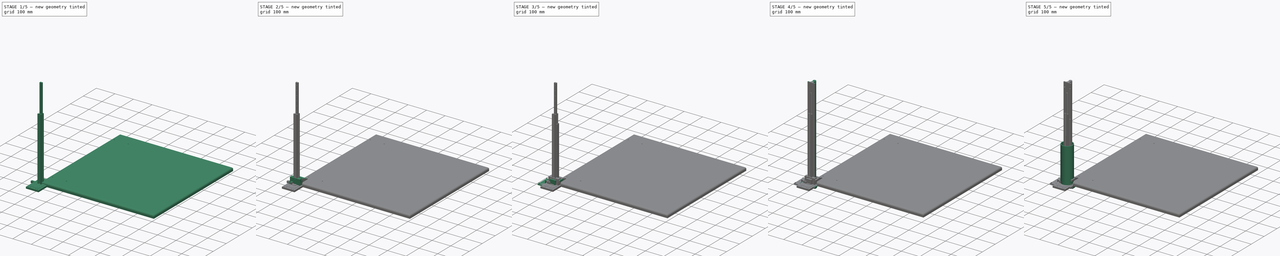
[diagram: build sequence overview — one tinted view per stage of 5, left to right]
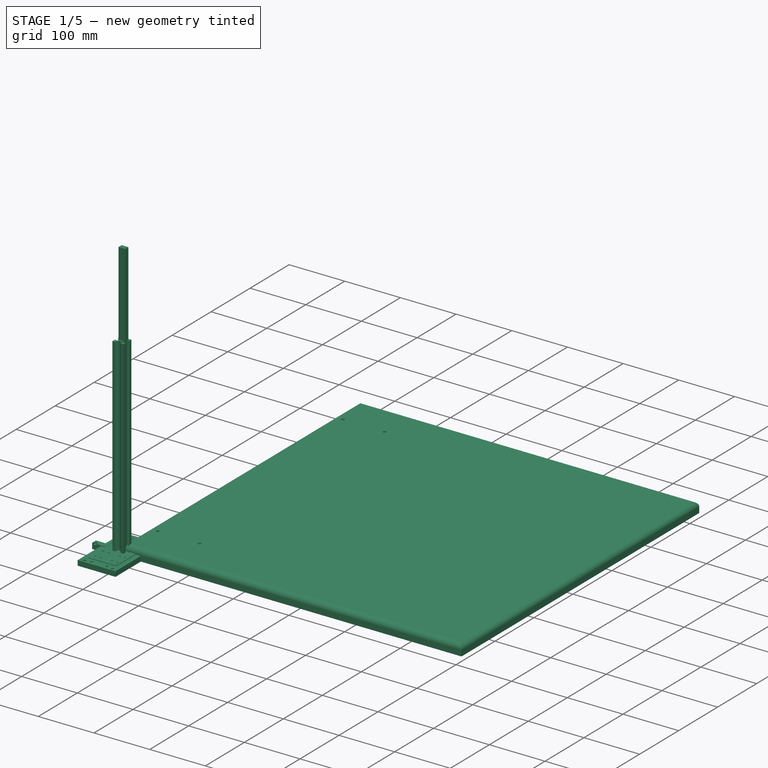
[diagram: stage 1 of 5 — iso view after this stage's code; geometry added in this stage tinted green]
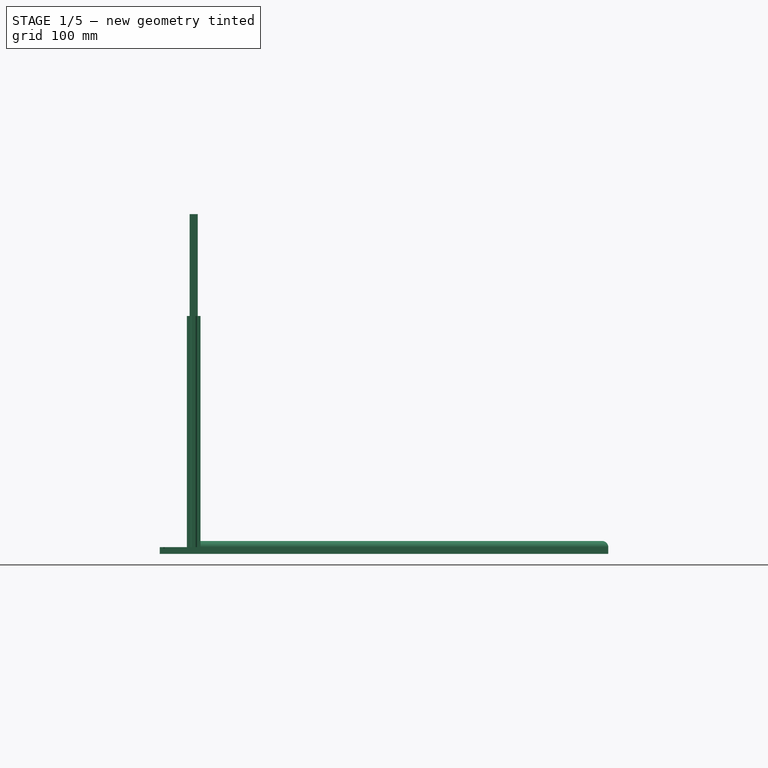
[diagram: stage 1 of 5 — front view after this stage's code; geometry added in this stage tinted green]
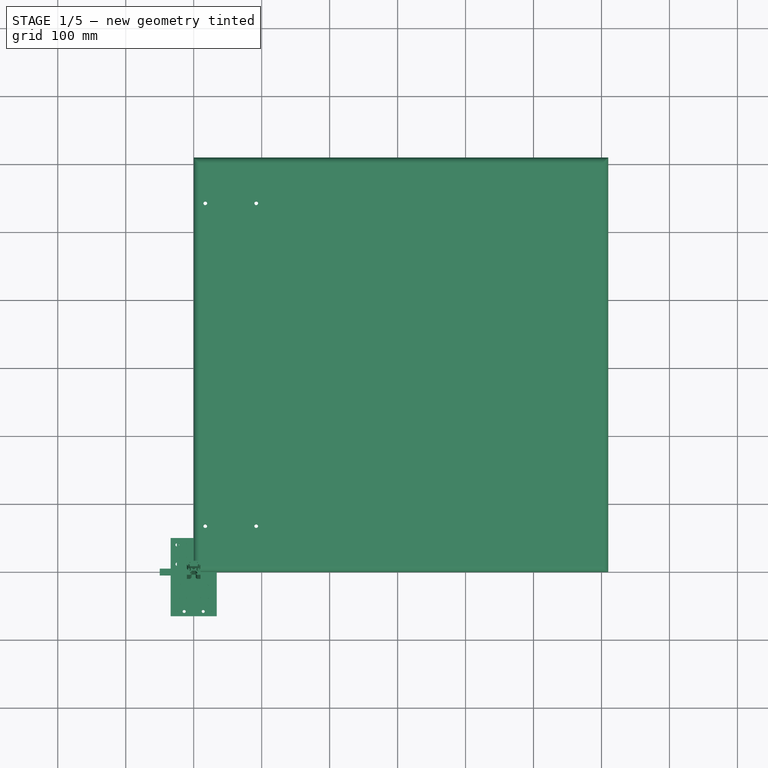
[diagram: stage 1 of 5 — top view after this stage's code; geometry added in this stage tinted green]
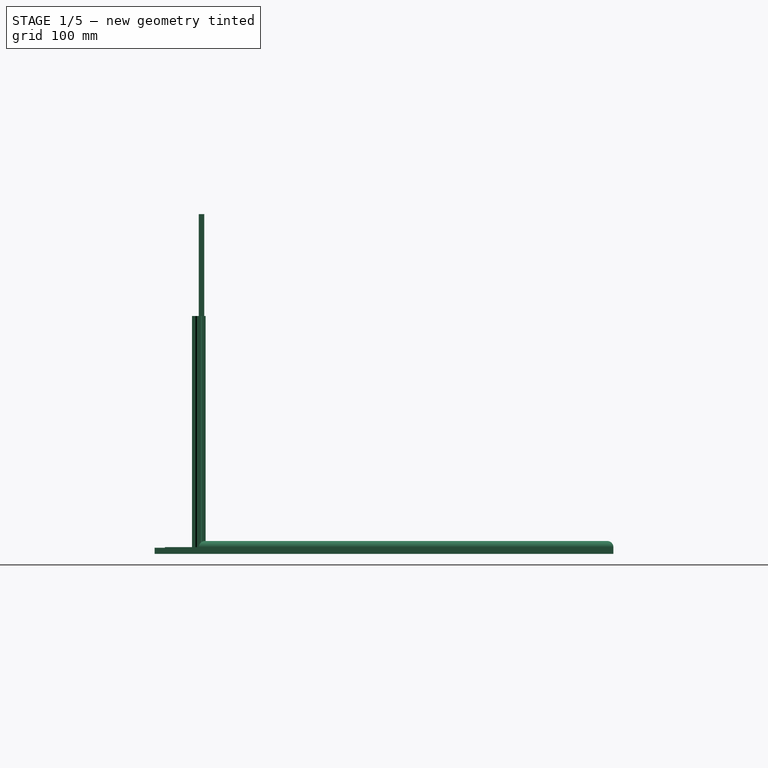
[diagram: stage 1 of 5 — right view after this stage's code; geometry added in this stage tinted green]
FCSTD DOCUMENT  (FreeCAD 0.19R24366 (Git))
Label: MUSCLE_ROLLER_1V0
License: All rights reserved
LicenseURL: http://en.wikipedia.org/wiki/All_rights_reserved
objects: PartDesign::CoordinateSystem×81, Sketcher::SketchObject×79, App::Link×68, PartDesign::Pad×43, App::Part×40, PartDesign::Body×39, PartDesign::Pocket×32, TechDraw::DrawViewDimension×12, PartDesign::Hole×4, TechDraw::DrawProjGroupItem×4, App::DocumentObjectGroup×2, PartDesign::LinearPattern×2, PartDesign::Fillet×2, TechDraw::DrawSVGTemplate×2, TechDraw::DrawProjGroup×2, TechDraw::DrawPage×2, App::FeaturePython×1, Part::Mirroring×1, PartDesign::Chamfer×1
note: 366 computed .brp shape members not serialized (recipe doc carries the construction recipe); baked Part::Feature solids carry a one-line shape summary decoded from their .brp
EXTERNAL_REF file=SPRING.FCStd obj=LCS_0
EXTERNAL_REF file=SPRING.FCStd obj=Part
EXTERNAL_REF file=SHOULDER-SCREW.FCStd obj=bottom
EXTERNAL_REF file=SHOULDER-SCREW.FCStd obj=Part
EXTERNAL_REF file=LOAD-CELL-4543.FCStd obj=rollerBracket
EXTERNAL_REF file=LOAD-CELL-4543.FCStd obj=loadCellBracket
EXTERNAL_REF file=LOAD-CELL-4543.FCStd obj=LOAD_CELL_4541
EXTERNAL_REF file=AL_BRACKET_A.FCStd obj=LCS_0
EXTERNAL_REF file=AL_BRACKET.FCStd obj=LCS_0
EXTERNAL_REF file=AL_BRACKET.FCStd obj=Part
EXTERNAL_REF file=MTR_17HS15_1504S.FCStd obj=LCS_0
EXTERNAL_REF file=MTR_17HS15_1504S.FCStd obj=Part
EXTERNAL_REF file=CARRIAGE_MGN12H.FCStd obj=LCS_0
EXTERNAL_REF file=CARRIAGE_MGN12H.FCStd obj=Part
EXTERNAL_REF file=AL_BRACKET_A.FCStd obj=Part

FEATURE [PartDesign::CoordinateSystem] LCS_0063
  AttacherType = Attacher::AttachEngine3D
  MapMode = 2
  Support = -> [X_Axis069]
FEATURE [PartDesign::CoordinateSystem] LCS_0064
  AttacherType = Attacher::AttachEngine3D
  MapMode = 2
  Support = -> [X_Axis070]
FEATURE [Sketcher::SketchObject] Sketch086
  FullyConstrained = true
  MapMode = 5
  Support = -> [XY_Plane070]
  sketch-geometry (10):
    g0: LineSegment StartX=0 StartY=0 StartZ=0 EndX=610 EndY=0 EndZ=0
    g1: LineSegment StartX=610 StartY=0 StartZ=0 EndX=610 EndY=610 EndZ=0
    g2: LineSegment StartX=610 StartY=610 StartZ=0 EndX=0 EndY=610 EndZ=0
    g3: LineSegment StartX=0 StartY=610 StartZ=0 EndX=0 EndY=0 EndZ=0
    g4: Circle CenterX=17 CenterY=67.5 CenterZ=0 NormalX=0 NormalY=0 NormalZ=1 AngleXU=0 Radius=2.75
    g5: Circle CenterX=92 CenterY=67.5 CenterZ=0 NormalX=0 NormalY=0 NormalZ=1 AngleXU=0 Radius=2.75
    g6: Circle CenterX=17 CenterY=542.5 CenterZ=0 NormalX=0 NormalY=0 NormalZ=1 AngleXU=0 Radius=2.75
    g7: Circle CenterX=92 CenterY=542.5 CenterZ=0 NormalX=0 NormalY=0 NormalZ=1 AngleXU=0 Radius=2.75
    g8: LineSegment StartX=17 StartY=542.5 StartZ=0 EndX=17 EndY=610 EndZ=0
    g9: LineSegment StartX=17 StartY=67.5 StartZ=0 EndX=17 EndY=0 EndZ=0
  constraints (29):
    c: Coincident(g0,g1)
    c: Coincident(g1,g2)
    c: Coincident(g2,g3)
    c: Coincident(g3,g0)
    c: Horizontal(g0)
    c: Horizontal(g2)
    c: Vertical(g1)
    c: Vertical(g3)
    c: DistanceX(g2,g2) = 610
    c: Coincident(g0,g-1)
    c: DistanceY(g3,g3) = 610
    c: Diameter(g6) = 5.5
    c: Equal(g6,g4)
    c: Equal(g6,g7)
    c: Equal(g6,g5)
    c: Horizontal(g4,g5)
    c: DistanceX(g4,g5) = 75
    c: DistanceX(g-1,g4) = 17
    c: Vertical(g5,g7)
    c: Horizontal(g7,g6)
    c: Vertical(g6,g4)
    c: Coincident(g8,g6)
    c: PointOnObject(g8,g2)
    c: Vertical(g8)
    c: Coincident(g9,g4)
    c: PointOnObject(g9,g0)
    c: Vertical(g9)
    c: Equal(g9,g8)
    c: DistanceY(g4,g6) = 475
FEATURE [PartDesign::Pad] Pad056
  Direction = (1,1,1)
  Length = 19
  Length2 = 100
  Profile = -> Sketch086
  Type = 0
FEATURE [PartDesign::Body] Body_11
  Group = -> [LCS_0072,Sketch094,Pad060,Sketch095,Pad061]
  Origin = -> Origin078
  Tip = -> Pad061
FEATURE [App::Part] PCB_BRACKET_1_0  label="PCB_BRACK_1V0"
  Group = -> [LCS_0071,Body_11]
  Origin = -> Origin077
FEATURE [PartDesign::CoordinateSystem] LCS_0073
  AttacherType = Attacher::AttachEngine3D
  MapMode = 2
  Support = -> [X_Axis080]
FEATURE [Sketcher::SketchObject] Sketch100
  FullyConstrained = true
  MapMode = 5
  Support = -> [XY_Plane080]
  sketch-geometry (57):
    g0: LineSegment StartX=-10 StartY=10 StartZ=0 EndX=10 EndY=10 EndZ=0
    g1: LineSegment StartX=10 StartY=10 StartZ=0 EndX=10 EndY=-10 EndZ=0
    g2: LineSegment StartX=10 StartY=-10 StartZ=0 EndX=-10 EndY=-10 EndZ=0
    g3: LineSegment StartX=-10 StartY=-10 StartZ=0 EndX=-10 EndY=10 EndZ=0
    g4: LineSegment StartX=-3.9 StartY=-3.9 StartZ=0 EndX=3.9 EndY=-3.9 EndZ=0
    g5: LineSegment StartX=3.9 StartY=-3.9 StartZ=0 EndX=3.9 EndY=3.9 EndZ=0
    g6: LineSegment StartX=3.9 StartY=3.9 StartZ=0 EndX=-3.9 EndY=3.9 EndZ=0
    g7: LineSegment StartX=-3.9 StartY=3.9 StartZ=0 EndX=-3.9 EndY=-3.9 EndZ=0
    g8: LineSegment StartX=-8.2 StartY=8.2 StartZ=0 EndX=8.2 EndY=8.2 EndZ=0
    g9: LineSegment StartX=8.2 StartY=8.2 StartZ=0 EndX=8.2 EndY=-8.2 EndZ=0
    g10: LineSegment StartX=8.2 StartY=-8.2 StartZ=0 EndX=-8.2 EndY=-8.2 EndZ=0
    g11: LineSegment StartX=-8.2 StartY=-8.2 StartZ=0 EndX=-8.2 EndY=8.2 EndZ=0
    g12: Circle CenterX=0 CenterY=0 CenterZ=0 NormalX=0 NormalY=0 NormalZ=1 AngleXU=0 Radius=2.1
    g13: LineSegment StartX=-10 StartY=-10 StartZ=0 EndX=-10 EndY=-4.9 EndZ=0
    g14: LineSegment StartX=-10 StartY=-4.9 StartZ=0 EndX=-8.2 EndY=-3.1 EndZ=0
    g15: LineSegment StartX=-8.2 StartY=-3.1 StartZ=0 EndX=-8.2 EndY=-5.5 EndZ=0
    g16: LineSegment StartX=-6.56066 StartY=-5.5 StartZ=0 EndX=-3.9 EndY=-2.83934 EndZ=0
    g17: LineSegment StartX=-3.9 StartY=-2.83934 StartZ=0 EndX=-3.9 EndY=2.83934 EndZ=0
    g18: LineSegment StartX=-3.9 StartY=2.83934 StartZ=0 EndX=-6.56066 EndY=5.5 EndZ=0
    g19: LineSegment StartX=-8.2 StartY=5.5 StartZ=0 EndX=-8.2 EndY=3.1 EndZ=0
    g20: LineSegment StartX=-8.2 StartY=3.1 StartZ=0 EndX=-10 EndY=4.9 EndZ=0
    g21: LineSegment StartX=-10 StartY=4.9 StartZ=0 EndX=-10 EndY=10 EndZ=0
    g22: LineSegment StartX=-10 StartY=10 StartZ=0 EndX=-4.9 EndY=10 EndZ=0
    g23: LineSegment StartX=-4.9 StartY=10 StartZ=0 EndX=-3.1 EndY=8.2 EndZ=0
    g24: LineSegment StartX=-3.1 StartY=8.2 StartZ=0 EndX=-5.5 EndY=8.2 EndZ=0
    g25: LineSegment StartX=-5.5 StartY=6.56066 StartZ=0 EndX=-2.83934 EndY=3.9 EndZ=0
    g26: LineSegment StartX=-2.83934 StartY=3.9 StartZ=0 EndX=2.83934 EndY=3.9 EndZ=0
    g27: LineSegment StartX=2.83934 StartY=3.9 StartZ=0 EndX=5.5 EndY=6.56066 EndZ=0
    g28: LineSegment StartX=5.5 StartY=8.2 StartZ=0 EndX=3.1 EndY=8.2 EndZ=0
    g29: LineSegment StartX=3.1 StartY=8.2 StartZ=0 EndX=4.9 EndY=10 EndZ=0
    g30: LineSegment StartX=4.9 StartY=10 StartZ=0 EndX=10 EndY=10 EndZ=0
    g31: LineSegment StartX=10 StartY=10 StartZ=0 EndX=10 EndY=4.9 EndZ=0
    g32: LineSegment StartX=10 StartY=4.9 StartZ=0 EndX=8.2 EndY=3.1 EndZ=0
    g33: LineSegment StartX=8.2 StartY=3.1 StartZ=0 EndX=8.2 EndY=5.5 EndZ=0
    g34: LineSegment StartX=6.56066 StartY=5.5 StartZ=0 EndX=3.9 EndY=2.83934 EndZ=0
    g35: LineSegment StartX=3.9 StartY=2.83934 StartZ=0 EndX=3.9 EndY=-2.83934 EndZ=0
    g36: LineSegment StartX=3.9 StartY=-2.83934 StartZ=0 EndX=6.56066 EndY=-5.5 EndZ=0
    g37: LineSegment StartX=8.2 StartY=-5.5 StartZ=0 EndX=8.2 EndY=-3.1 EndZ=0
    g38: LineSegment StartX=8.2 StartY=-3.1 StartZ=0 EndX=10 EndY=-4.9 EndZ=0
    g39: LineSegment StartX=10 StartY=-4.9 StartZ=0 EndX=10 EndY=-10 EndZ=0
    g40: LineSegment StartX=10 StartY=-10 StartZ=0 EndX=4.9 EndY=-10 EndZ=0
    g41: LineSegment StartX=4.9 StartY=-10 StartZ=0 EndX=3.1 EndY=-8.2 EndZ=0
    g42: LineSegment StartX=3.1 StartY=-8.2 StartZ=0 EndX=5.5 EndY=-8.2 EndZ=0
    g43: LineSegment StartX=5.5 StartY=-6.56066 StartZ=0 EndX=2.83934 EndY=-3.9 EndZ=0
    g44: LineSegment StartX=2.83934 StartY=-3.9 StartZ=0 EndX=-2.83934 EndY=-3.9 EndZ=0
    g45: LineSegment StartX=-2.83934 StartY=-3.9 StartZ=0 EndX=-5.5 EndY=-6.56066 EndZ=0
    g46: LineSegment StartX=-5.5 StartY=-8.2 StartZ=0 EndX=-3.1 EndY=-8.2 EndZ=0
    g47: LineSegment StartX=-3.1 StartY=-8.2 StartZ=0 EndX=-4.9 EndY=-10 EndZ=0
    g48: LineSegment StartX=-4.9 StartY=-10 StartZ=0 EndX=-10 EndY=-10 EndZ=0
    g49: LineSegment StartX=-5.5 StartY=-8.2 StartZ=0 EndX=-5.5 EndY=-6.56066 EndZ=0
    g50: LineSegment StartX=-6.56066 StartY=-5.5 StartZ=0 EndX=-8.2 EndY=-5.5 EndZ=0
    g51: LineSegment StartX=-8.2 StartY=5.5 StartZ=0 EndX=-6.56066 EndY=5.5 EndZ=0
    g52: LineSegment StartX=-5.5 StartY=6.56066 StartZ=0 EndX=-5.5 EndY=8.2 EndZ=0
    g53: LineSegment StartX=5.5 StartY=8.2 StartZ=0 EndX=5.5 EndY=6.56066 EndZ=0
    g54: LineSegment StartX=6.56066 StartY=5.5 StartZ=0 EndX=8.2 EndY=5.5 EndZ=0
    g55: LineSegment StartX=6.56066 StartY=-5.5 StartZ=0 EndX=8.2 EndY=-5.5 EndZ=0
    g56: LineSegment StartX=5.5 StartY=-6.56066 StartZ=0 EndX=5.5 EndY=-8.2 EndZ=0
  constraints (133):
    c: Coincident(g0,g1)
    c: Coincident(g1,g2)
    c: Coincident(g2,g3)
    c: Coincident(g3,g0)
    c: Horizontal(g2)
    c: Vertical(g1)
    c: Equal(g3,g0)
    c: Symmetric(g0,g2,g-1)
    c: Symmetric(g0,g0,g-2)
    c: DistanceX(g0,g0) = 20
    c: Coincident(g4,g5)
    c: Coincident(g5,g6)
    c: Coincident(g6,g7)
    c: Coincident(g7,g4)
    c: Horizontal(g6)
    c: Vertical(g7)
    c: DistanceX(g2,g4) = 6.1
    c: DistanceY(g2,g4) = 6.1
    c: Coincident(g8,g9)
    c: Coincident(g9,g10)
    c: Coincident(g10,g11)
    c: Coincident(g11,g8)
    c: Horizontal(g8)
    c: Vertical(g11)
    c: DistanceX(g2,g10) = 1.8
    c: DistanceY(g2,g10) = 1.8
    c: Symmetric(g10,g9,g-2)
    c: Symmetric(g4,g4,g-2)
    c: Symmetric(g5,g4,g-1)
    c: Symmetric(g8,g9,g-1)
    c: Coincident(g12,g-1)
    c: Diameter(g12) = 4.2
    c: Coincident(g2,g13)
    c: PointOnObject(g13,g3)
    c: Coincident(g13,g14)
    c: PointOnObject(g14,g11)
    c: Coincident(g14,g15)
    c: PointOnObject(g16,g7)
    c: Coincident(g16,g17)
    c: Coincident(g17,g18)
    c: Coincident(g19,g20)
    c: Coincident(g20,g21)
    c: Coincident(g21,g0)
    c: Coincident(g21,g22)
    c: PointOnObject(g22,g0)
    c: Coincident(g22,g23)
    c: PointOnObject(g23,g8)
    c: Coincident(g23,g24)
    c: PointOnObject(g25,g6)
    c: Coincident(g25,g26)
    c: Coincident(g26,g27)
    c: Coincident(g28,g29)
    c: Coincident(g29,g30)
    c: Coincident(g30,g0)
    c: Coincident(g30,g31)
    c: Coincident(g31,g32)
    c: Coincident(g32,g33)
    c: Coincident(g34,g35)
    c: Coincident(g35,g36)
    c: Coincident(g37,g38)
    c: Coincident(g38,g39)
    c: Coincident(g39,g1)
    c: Coincident(g39,g40)
    c: PointOnObject(g40,g2)
    c: Coincident(g40,g41)
    c: Coincident(g41,g42)
    c: PointOnObject(g43,g4)
    c: Coincident(g43,g44)
    c: Coincident(g44,g45)
    c: Coincident(g46,g47)
    c: Coincident(g47,g48)
    c: Coincident(g48,g13)
    c: Angle(g2,g47) = 0.785398
    c: Parallel(g47,g45)
    c: Parallel(g45,g16)
    c: Parallel(g16,g14)
    c: DistanceY(g14,g19) = 6.2
    c: Symmetric(g19,g14,g-1)
    c: Equal(g48,g13)
    c: Coincident(g16,g50)
    c: Coincident(g15,g50)
    c: Coincident(g46,g49)
    c: Coincident(g45,g49)
    c: Vertical(g49)
    c: Horizontal(g50)
    c: Vertical(g52)
    c: Coincident(g24,g52)
    c: Coincident(g25,g52)
    c: Coincident(g18,g51)
    c: Coincident(g19,g51)
    c: DistanceY(g15,g19) = 11
    c: Symmetric(g20,g13,g-1)
    c: Equal(g50,g49)
    c: Equal(g46,g15)
    c: Horizontal(g46)
    c: Distance(g45,g16) = 1.5
    c: Symmetric(g15,g19,g-1)
    c: Equal(g22,g21)
    c: Symmetric(g23,g46,g-1)
    c: Symmetric(g25,g45,g-1)
    c: Symmetric(g18,g16,g-1)
    c: Symmetric(g17,g16,g-1)
    c: Symmetric(g25,g44,g-1)
    c: Symmetric(g23,g28,g-2)
    c: Symmetric(g29,g22,g-2)
    c: Symmetric(g26,g25,g-2)
    c: Coincident(g28,g53)
    c: Coincident(g27,g53)
    c: Coincident(g34,g54)
    c: Coincident(g33,g54)
    c: Symmetric(g28,g24,g-2)
    c: Symmetric(g27,g25,g-2)
    c: Symmetric(g34,g18,g-2)
    c: Symmetric(g33,g19,g-2)
    c: Symmetric(g34,g17,g-2)
    c: Horizontal(g28)
    c: Symmetric(g32,g37,g-1)
    c: Symmetric(g31,g38,g-1)
    c: Symmetric(g32,g19,g-2)
    c: Symmetric(g31,g20,g-2)
    c: Coincident(g36,g55)
    c: Coincident(g37,g55)
    c: Coincident(g42,g56)
    c: Coincident(g43,g56)
    c: Symmetric(g36,g34,g-1)
    c: Symmetric(g37,g33,g-1)
    c: Symmetric(g43,g45,g-2)
    c: Symmetric(g35,g34,g-1)
    c: Symmetric(g42,g46,g-2)
    c: Symmetric(g41,g46,g-2)
    c: Symmetric(g40,g47,g-2)
    c: Vertical(g37)
    c: Parallel(g43,g36)
FEATURE [PartDesign::Pad] Pad063
  Direction = (1,1,1)
  Length = 350
  Length2 = 100
  Profile = -> Sketch100
  Type = 0
FEATURE [PartDesign::CoordinateSystem] LCS_0085
  AttacherType = Attacher::AttachEngine3D
  MapMode = 2
  Support = -> [X_Axis094]
FEATURE [PartDesign::CoordinateSystem] LCS_0086
  AttacherType = Attacher::AttachEngine3D
  MapMode = 2
  Support = -> [X_Axis093]
FEATURE [Sketcher::SketchObject] Sketch117
  AttachmentOffset = pos=(0,0,12) rot=(0,0,1;0rad)
  FullyConstrained = true
  MapMode = 5
  Placement = pos=(12,-2.7e-15,2.7e-15) rot=(0.57735,0.57735,0.57735;2.0944rad)
  Support = -> [YZ_Plane093]
  sketch-geometry (2):
    g0: Circle CenterX=-14 CenterY=0 CenterZ=0 NormalX=0 NormalY=0 NormalZ=1 AngleXU=0 Radius=2.25
    g1: Circle CenterX=14 CenterY=0 CenterZ=0 NormalX=0 NormalY=0 NormalZ=1 AngleXU=0 Radius=2.25
  constraints (5):
    c: PointOnObject(g0,g-1)
    c: Diameter(g1) = 4.5
    c: Equal(g1,g0)
    c: Symmetric(g0,g1,g-2)
    c: DistanceX(g0,g1) = 28
FEATURE [App::Link] LEAD_NUT_BRACKET_Z
  AssemblyType = Asm4EE
  AttachedBy = #LCS_0085
  AttachedTo = CARRIAGE_PLATE_Z#LCS_0093
  AttachmentOffset = pos=(0,-58,-12) rot=(0.57735,-0.57735,-0.57735;4.18879rad)
  LinkPlacement = pos=(202,125,438.4) rot=(1,0,0;3.14159rad)
  LinkedObject = -> CARRIAGE_1_006
  Placement = pos=(202,125,438.4) rot=(1,0,0;3.14159rad)
  expr: Placement = CARRIAGE_PLATE_Z.Placement * LCS_0093.Placement * AttachmentOffset * LCS_0085.Placement ^ -1
FEATURE [PartDesign::CoordinateSystem] LCS_0089
  AttacherType = Attacher::AttachEngine3D
  MapMode = 2
  Support = -> [X_Axis097]
FEATURE [PartDesign::CoordinateSystem] LCS_0090
  AttacherType = Attacher::AttachEngine3D
  MapMode = 2
  Support = -> [X_Axis098]
FEATURE [Sketcher::SketchObject] Sketch119
  FullyConstrained = true
  MapMode = 5
  Support = -> [XY_Plane098]
  sketch-geometry (12):
    g0: LineSegment StartX=-6 StartY=0 StartZ=0 EndX=-6 EndY=5 EndZ=0
    g1: LineSegment StartX=-6 StartY=5 StartZ=0 EndX=-5 EndY=5 EndZ=0
    g2: LineSegment StartX=-5 StartY=5 StartZ=0 EndX=-5 EndY=6 EndZ=0
    g3: LineSegment StartX=-5 StartY=6 StartZ=0 EndX=-6 EndY=6 EndZ=0
    g4: LineSegment StartX=-6 StartY=6 StartZ=0 EndX=-6 EndY=8 EndZ=0
    g5: LineSegment StartX=-6 StartY=8 StartZ=0 EndX=6 EndY=8 EndZ=0
    g6: LineSegment StartX=6 StartY=8 StartZ=0 EndX=6 EndY=6 EndZ=0
    g7: LineSegment StartX=6 StartY=6 StartZ=0 EndX=5 EndY=6 EndZ=0
    g8: LineSegment StartX=5 StartY=6 StartZ=0 EndX=5 EndY=5 EndZ=0
    g9: LineSegment StartX=5 StartY=5 StartZ=0 EndX=6 EndY=5 EndZ=0
    g10: LineSegment StartX=6 StartY=5 StartZ=0 EndX=6 EndY=0 EndZ=0
    g11: LineSegment StartX=6 StartY=0 StartZ=0 EndX=-6 EndY=0 EndZ=0
  constraints (34):
    c: PointOnObject(g0,g-1)
    c: Coincident(g0,g1)
    c: Horizontal(g1)
    c: Coincident(g1,g2)
    c: Coincident(g2,g3)
    c: Horizontal(g3)
    c: Coincident(g3,g4)
    c: Vertical(g4)
    c: Coincident(g4,g5)
    c: Coincident(g5,g6)
    c: Coincident(g6,g7)
    c: Horizontal(g7)
    c: Coincident(g7,g8)
    c: Coincident(g8,g9)
    c: Coincident(g9,g10)
    c: PointOnObject(g10,g-1)
    c: Vertical(g10)
    c: Coincident(g10,g11)
    c: Coincident(g11,g0)
    c: Vertical(g0)
    c: Vertical(g2)
    c: Vertical(g8)
    c: Horizontal(g9)
    c: DistanceY(g0,g0) = 5
    c: DistanceY(g2,g2) = 1
    c: DistanceY(g-1,g4) = 8
    c: Vertical(g0,g3)
    c: DistanceX(g11,g11) = 12
    c: DistanceX(g3,g3) = 1
    c: Vertical(g6)
    c: Symmetric(g4,g5,g-2)
    c: Vertical(g6,g9)
    c: Equal(g8,g2)
    c: Symmetric(g7,g2,g-2)
FEATURE [PartDesign::Pad] Pad073
  Direction = (1,1,1)
  Length = 500
  Length2 = 100
  Profile = -> Sketch119
  Refine = true
  Type = 0
FEATURE [Sketcher::SketchObject] Sketch120
  AttachmentOffset = pos=(0,0,-8) rot=(0,0,1;0rad)
  FullyConstrained = true
  MapMode = 5
  Placement = pos=(0,8,1.8e-15) rot=(1,0,0;1.5708rad)
  Support = -> [XZ_Plane097]
  sketch-geometry (1):
    g0: Circle CenterX=0 CenterY=12.5 CenterZ=0 NormalX=0 NormalY=0 NormalZ=1 AngleXU=0 Radius=1.75
  constraints (3):
    c: PointOnObject(g0,g-2)
    c: Diameter(g0) = 3.5
    c: DistanceY(g-1,g0) = 12.5
FEATURE [PartDesign::Hole] Hole001
  BaseFeature = -> Pad073
  Depth = 25
  DepthType = 1
  Diameter = 3.4
  DrillForDepth = false
  DrillPoint = 1
  DrillPointAngle = 118
  HoleCutCountersinkAngle = 90
  HoleCutCustomValues = false
  HoleCutDepth = 4.5
  HoleCutDiameter = 6.1
  HoleCutType = 1
  ModelActualThread = false
  Profile = -> Sketch120
  Refine = true
  Reversed = true
  Tapered = false
  TaperedAngle = 90
  ThreadAngle = 0
  ThreadClass = 0
  ThreadCutOffInner = 0
  ThreadCutOffOuter = 0
  ThreadDirection = 0
  ThreadFit = 0
  ThreadPitch = 0
  ThreadSize = 9
  ThreadType = 1
  Threaded = false
FEATURE [PartDesign::Body] Body_17
  Group = -> [LCS_0092,Sketch121,Pad074,Sketch122,Pocket039]
  Origin = -> Origin100
  Tip = -> Pocket039
FEATURE [App::Part] BEARING_X_1V0
  Group = -> [LCS_0091,Body_17]
  Origin = -> Origin099
FEATURE [App::Link] CARRIAGE_MGN12H_1
  AssemblyType = Asm4EE
  AttachedBy = #LCS_0
  AttachedTo = RAIL_Z_1V0001#LCS_0089
  AttachmentOffset = pos=(0,0,355) rot=(0,0,1;0rad)
  LinkPlacement = pos=(168,125,405.4) rot=(0,0,-1;1.5708rad)
  LinkedObject = -> <external CARRIAGE_MGN12H.FCStd>#Part
  Placement = pos=(168,125,405.4) rot=(0,0,-1;1.5708rad)
  expr: .AttachmentOffset.Base.z = Variables.zPos
  expr: Placement = RAIL_Z_1V0001.Placement * LCS_0089.Placement * AttachmentOffset * CARRIAGE_MGN12H#LCS_0.Placement ^ -1
FEATURE [App::Link] CARRIAGE_MGN12H_2
  AssemblyType = Asm4EE
  AttachedBy = #LCS_0
  AttachedTo = CARRIAGE_MGN12H_1#LCS_0
  AttachmentOffset = pos=(0,0,-50) rot=(0,0,1;0rad)
  LinkPlacement = pos=(168,125,355.4) rot=(0,0,-1;1.5708rad)
  LinkedObject = -> <external CARRIAGE_MGN12H.FCStd>#Part
  Placement = pos=(168,125,355.4) rot=(0,0,-1;1.5708rad)
  expr: Placement = CARRIAGE_MGN12H_1.Placement * CARRIAGE_MGN12H#LCS_0.Placement * AttachmentOffset * CARRIAGE_MGN12H#LCS_0.Placement ^ -1
FEATURE [PartDesign::CoordinateSystem] LCS_0093
  AttacherType = Attacher::AttachEngine3D
  MapMode = 2
  Support = -> [X_Axis101]
FEATURE [PartDesign::CoordinateSystem] LCS_0094
  AttacherType = Attacher::AttachEngine3D
  MapMode = 2
  Support = -> [X_Axis102]
FEATURE [Sketcher::SketchObject] Sketch123
  FullyConstrained = true
  MapMode = 5
  Support = -> [XY_Plane102]
  sketch-geometry (27):
    g0: LineSegment StartX=-34 StartY=50 StartZ=0 EndX=34 EndY=50 EndZ=0
    g1: LineSegment StartX=34 StartY=50 StartZ=0 EndX=34 EndY=-65 EndZ=0
    g2: LineSegment StartX=34 StartY=-65 StartZ=0 EndX=-34 EndY=-65 EndZ=0
    g3: LineSegment StartX=-34 StartY=-65 StartZ=0 EndX=-34 EndY=50 EndZ=0
    g4: LineSegment StartX=-10 StartY=35 StartZ=0 EndX=10 EndY=35 EndZ=0
    g5: LineSegment StartX=10 StartY=35 StartZ=0 EndX=10 EndY=15 EndZ=0
    g6: LineSegment StartX=10 StartY=15 StartZ=0 EndX=-10 EndY=15 EndZ=0
    g7: LineSegment StartX=-10 StartY=15 StartZ=0 EndX=-10 EndY=35 EndZ=0
    g8: LineSegment StartX=-10 StartY=-15 StartZ=0 EndX=10 EndY=-15 EndZ=0
    g9: LineSegment StartX=10 StartY=-15 StartZ=0 EndX=10 EndY=-35 EndZ=0
    g10: LineSegment StartX=10 StartY=-35 StartZ=0 EndX=-10 EndY=-35 EndZ=0
    g11: LineSegment StartX=-10 StartY=-35 StartZ=0 EndX=-10 EndY=-15 EndZ=0
    g12: Circle CenterX=-10 CenterY=35 CenterZ=0 NormalX=0 NormalY=0 NormalZ=1 AngleXU=0 Radius=1.9
    g13: Circle CenterX=10 CenterY=35 CenterZ=0 NormalX=0 NormalY=0 NormalZ=1 AngleXU=0 Radius=1.9
    g14: Circle CenterX=10 CenterY=15 CenterZ=0 NormalX=0 NormalY=0 NormalZ=1 AngleXU=0 Radius=1.9
    g15: Circle CenterX=-10 CenterY=15 CenterZ=0 NormalX=0 NormalY=0 NormalZ=1 AngleXU=0 Radius=1.9
    g16: Circle CenterX=-10 CenterY=-15 CenterZ=0 NormalX=0 NormalY=0 NormalZ=1 AngleXU=0 Radius=1.9
    g17: Circle CenterX=10 CenterY=-15 CenterZ=0 NormalX=0 NormalY=0 NormalZ=1 AngleXU=0 Radius=1.9
    g18: Circle CenterX=10 CenterY=-35 CenterZ=0 NormalX=0 NormalY=0 NormalZ=1 AngleXU=0 Radius=1.9
    g19: Circle CenterX=-10 CenterY=-35 CenterZ=0 NormalX=0 NormalY=0 NormalZ=1 AngleXU=0 Radius=1.9
    g20: LineSegment StartX=-14 StartY=50 StartZ=0 EndX=-14 EndY=-65 EndZ=0
    g21: Circle CenterX=-24 CenterY=40 CenterZ=0 NormalX=0 NormalY=0 NormalZ=1 AngleXU=0 Radius=2.75
    g22: Circle CenterX=-24 CenterY=11.65 CenterZ=0 NormalX=0 NormalY=0 NormalZ=1 AngleXU=0 Radius=2.75
    g23: Circle CenterX=24 CenterY=40 CenterZ=0 NormalX=0 NormalY=0 NormalZ=1 AngleXU=0 Radius=2.75
    g24: Circle CenterX=24 CenterY=11.65 CenterZ=0 NormalX=0 NormalY=0 NormalZ=1 AngleXU=0 Radius=2.75
    g25: Circle CenterX=-14 CenterY=-58 CenterZ=0 NormalX=0 NormalY=0 NormalZ=1 AngleXU=0 Radius=2.25
    g26: Circle CenterX=14 CenterY=-58 CenterZ=0 NormalX=0 NormalY=0 NormalZ=1 AngleXU=0 Radius=2.25
  constraints (68):
    c: Coincident(g0,g1)
    c: Coincident(g1,g2)
    c: Coincident(g2,g3)
    c: Coincident(g3,g0)
    c: Horizontal(g2)
    c: Vertical(g1)
    c: Coincident(g4,g5)
    c: Coincident(g5,g6)
    c: Coincident(g6,g7)
    c: Coincident(g7,g4)
    c: Horizontal(g4)
    c: Vertical(g5)
    c: Vertical(g7)
    c: Coincident(g8,g9)
    c: Coincident(g9,g10)
    c: Coincident(g10,g11)
    c: Coincident(g11,g8)
    c: Horizontal(g8)
    c: Horizontal(g10)
    c: Vertical(g9)
    c: Vertical(g11)
    c: Equal(g4,g7)
    c: Equal(g7,g8)
    c: Equal(g8,g11)
    c: DistanceY(g7,g7) = 20
    c: DistanceY(g8,g6) = 30
    c: Symmetric(g6,g8,g-1)
    c: Symmetric(g6,g5,g-2)
    c: Coincident(g12,g4)
    c: Coincident(g13,g4)
    c: Coincident(g14,g5)
    c: Coincident(g15,g6)
    c: Coincident(g16,g8)
    c: Coincident(g17,g8)
    c: Coincident(g18,g9)
    c: Coincident(g19,g10)
    c: Diameter(g19) = 3.8
    c: Equal(g19,g18)
    c: Equal(g19,g17)
    c: Equal(g19,g16)
    c: Equal(g19,g14)
    c: Equal(g19,g15)
    c: Equal(g19,g12)
    c: Equal(g19,g13)
    c: PointOnObject(g20,g0)
    c: PointOnObject(g20,g2)
    c: Vertical(g20)
    c: DistanceX(g20,g-1) = 14
    c: Diameter(g22) = 5.5
    c: Equal(g22,g21)
    c: DistanceY(g21,g0) = 10
    c: DistanceY(g22,g21) = 28.35
    c: Vertical(g21,g22)
    c: DistanceX(g21,g20) = 10
    c: Equal(g24,g23)
    c: Equal(g23,g21)
    c: Symmetric(g23,g21,g-2)
    c: Symmetric(g22,g24,g-2)
    c: DistanceX(g23,g0) = 10
    c: Symmetric(g0,g0,g-2)
    c: DistanceY(g-1,g0) = 50
    c: DistanceY(g2,g-1) = 65
    c: Vertical(g3)
    c: DistanceX(g25,g26) = 28
    c: Diameter(g25) = 4.5
    c: Equal(g25,g26)
    c: Symmetric(g25,g26,g-2)
    c: DistanceY(g1,g26) = 7
FEATURE [PartDesign::Pad] Pad075
  Direction = (1,1,1)
  Length = 9
  Length2 = 100
  Profile = -> Sketch123
  Refine = true
  Type = 0
FEATURE [App::Link] CARRIER_BRACKET_A
  AssemblyType = Asm4EE
  AttachedBy = #LCS_0095
  AttachedTo = BAR_E_1#LCS_0073
  AttachmentOffset = pos=(10,0,230) rot=(-0.57735,0.57735,-0.57735;2.0944rad)
  LinkPlacement = pos=(125,67.5,249) rot=(0.57735,0.57735,-0.57735;4.18879rad)
  LinkedObject = -> CARRIER_BRACKET_A_1V0
  Placement = pos=(125,67.5,249) rot=(0.57735,0.57735,-0.57735;4.18879rad)
  expr: Placement = BAR_E_1.Placement * LCS_0073.Placement * AttachmentOffset * LCS_0095.Placement ^ -1
FEATURE [App::Link] AL_BRACKET_A_1
  AssemblyType = Asm4EE
  AttachedBy = #LCS_0
  AttachedTo = BASE_1#LCS_0063
  AttachmentOffset = pos=(125,67.5,19) rot=(1,0,0;1.5708rad)
  LinkPlacement = pos=(125,67.5,19) rot=(1,0,0;1.5708rad)
  LinkedObject = -> <external AL_BRACKET_A.FCStd>#Part
  Placement = pos=(125,67.5,19) rot=(1,0,0;1.5708rad)
  expr: Placement = BASE_1.Placement * LCS_0063.Placement * AttachmentOffset * AL_BRACKET_A#LCS_0.Placement ^ -1
FEATURE [App::Link] AL_BRACKET_A_2
  AssemblyType = Asm4EE
  AttachedBy = #LCS_0
  AttachedTo = AL_BRACKET_A_1#LCS_0
  AttachmentOffset = pos=(0,0,-475) rot=(0,0,1;0rad)
  LinkPlacement = pos=(125,542.5,19) rot=(1,0,0;1.5708rad)
  LinkedObject = -> <external AL_BRACKET_A.FCStd>#Part
  Placement = pos=(125,542.5,19) rot=(1,0,0;1.5708rad)
  expr: Placement = AL_BRACKET_A_1.Placement * AL_BRACKET_A#LCS_0.Placement * AttachmentOffset * AL_BRACKET_A#LCS_0.Placement ^ -1
FEATURE [Sketcher::SketchObject] Sketch131
  AttachmentOffset = pos=(0,0,-8) rot=(0,0,1;0rad)
  FullyConstrained = true
  MapMode = 5
  Placement = pos=(0,8,1.8e-15) rot=(1,0,0;1.5708rad)
  Support = -> [XZ_Plane106]
  sketch-geometry (1):
    g0: Circle CenterX=0 CenterY=12.5 CenterZ=0 NormalX=0 NormalY=0 NormalZ=1 AngleXU=0 Radius=1.75
  constraints (3):
    c: PointOnObject(g0,g-2)
    c: Diameter(g0) = 3.5
    c: DistanceY(g-1,g0) = 12.5
FEATURE [Sketcher::SketchObject] Sketch132
  FullyConstrained = true
  MapMode = 5
  Support = -> [XY_Plane107]
  sketch-geometry (12):
    g0: LineSegment StartX=-6 StartY=0 StartZ=0 EndX=-6 EndY=5 EndZ=0
    g1: LineSegment StartX=-6 StartY=5 StartZ=0 EndX=-5 EndY=5 EndZ=0
    g2: LineSegment StartX=-5 StartY=5 StartZ=0 EndX=-5 EndY=6 EndZ=0
    g3: LineSegment StartX=-5 StartY=6 StartZ=0 EndX=-6 EndY=6 EndZ=0
    g4: LineSegment StartX=-6 StartY=6 StartZ=0 EndX=-6 EndY=8 EndZ=0
    g5: LineSegment StartX=-6 StartY=8 StartZ=0 EndX=6 EndY=8 EndZ=0
    g6: LineSegment StartX=6 StartY=8 StartZ=0 EndX=6 EndY=6 EndZ=0
    g7: LineSegment StartX=6 StartY=6 StartZ=0 EndX=5 EndY=6 EndZ=0
    g8: LineSegment StartX=5 StartY=6 StartZ=0 EndX=5 EndY=5 EndZ=0
    g9: LineSegment StartX=5 StartY=5 StartZ=0 EndX=6 EndY=5 EndZ=0
    g10: LineSegment StartX=6 StartY=5 StartZ=0 EndX=6 EndY=0 EndZ=0
    g11: LineSegment StartX=6 StartY=0 StartZ=0 EndX=-6 EndY=0 EndZ=0
  constraints (34):
    c: PointOnObject(g0,g-1)
    c: Coincident(g0,g1)
    c: Horizontal(g1)
    c: Coincident(g1,g2)
    c: Coincident(g2,g3)
    c: Horizontal(g3)
    c: Coincident(g3,g4)
    c: Vertical(g4)
    c: Coincident(g4,g5)
    c: Coincident(g5,g6)
    c: Coincident(g6,g7)
    c: Horizontal(g7)
    c: Coincident(g7,g8)
    c: Coincident(g8,g9)
    c: Coincident(g9,g10)
    c: PointOnObject(g10,g-1)
    c: Vertical(g10)
    c: Coincident(g10,g11)
    c: Coincident(g11,g0)
    c: Vertical(g0)
    c: Vertical(g2)
    c: Vertical(g8)
    c: Horizontal(g9)
    c: DistanceY(g0,g0) = 5
    c: DistanceY(g2,g2) = 1
    c: DistanceY(g-1,g4) = 8
    c: Vertical(g0,g3)
    c: DistanceX(g11,g11) = 12
    c: DistanceX(g3,g3) = 1
    c: Vertical(g6)
    c: Symmetric(g4,g5,g-2)
    c: Vertical(g6,g9)
    c: Equal(g8,g2)
    c: Symmetric(g7,g2,g-2)
FEATURE [PartDesign::Pad] Pad078
  Direction = (1,1,1)
  Length = 500
  Length2 = 100
  Profile = -> Sketch132
  Refine = true
  Type = 0
FEATURE [PartDesign::Hole] Hole002
  BaseFeature = -> Pad078
  Depth = 25
  DepthType = 1
  Diameter = 3.4
  DrillForDepth = false
  DrillPoint = 1
  DrillPointAngle = 118
  HoleCutCountersinkAngle = 90
  HoleCutCustomValues = false
  HoleCutDepth = 4.5
  HoleCutDiameter = 6.1
  HoleCutType = 1
  ModelActualThread = false
  Profile = -> Sketch131
  Refine = true
  Reversed = true
  Tapered = false
  TaperedAngle = 90
  ThreadAngle = 0
  ThreadClass = 0
  ThreadCutOffInner = 0
  ThreadCutOffOuter = 0
  ThreadDirection = 0
  ThreadFit = 0
  ThreadPitch = 0
  ThreadSize = 9
  ThreadType = 1
  Threaded = false
FEATURE [PartDesign::LinearPattern] LinearPattern001
  BaseFeature = -> Hole002
  Direction = -> Sketch131 [V_Axis]
  Length = 475
  Occurrences = 20
  Originals = -> [Hole002]
  Refine = true
FEATURE [PartDesign::CoordinateSystem] LCS_0099
  AttacherType = Attacher::AttachEngine3D
  MapMode = 2
  Support = -> [X_Axis108]
FEATURE [PartDesign::CoordinateSystem] LCS_0100
  AttacherType = Attacher::AttachEngine3D
  MapMode = 2
  Support = -> [X_Axis107]
FEATURE [PartDesign::Body] Body_027
  Group = -> [LCS_0100,Sketch132,Pad078,Sketch131,Hole002,LinearPattern001]
  Origin = -> Origin107
  Tip = -> LinearPattern001
FEATURE [App::Part] RAIL_Z_1V0002  label="RAIL_X_1V0"
  Group = -> [LCS_0099,Body_027]
  Origin = -> Origin108
FEATURE [App::Link] RAIL_X_1V0  label="RAIL_X_1"
  AssemblyType = Asm4EE
  AttachedBy = #LCS_0099
  AttachedTo = BAR_E_1#LCS_0073
  AttachmentOffset = pos=(-10,12.5,56.4) rot=(0.57735,-0.57735,0.57735;2.0944rad)
  LinkPlacement = pos=(145,55,75.4) rot=(-0.57735,-0.57735,-0.57735;2.0944rad)
  LinkedObject = -> RAIL_Z_1V0002
  Placement = pos=(145,55,75.4) rot=(-0.57735,-0.57735,-0.57735;2.0944rad)
  expr: Placement = BAR_E_1.Placement * LCS_0073.Placement * AttachmentOffset * LCS_0099.Placement ^ -1
FEATURE [App::Link] CARRIAGE_MGN12H_3
  AssemblyType = Asm4EE
  AttachedBy = #LCS_0
  AttachedTo = RAIL_X_1V0#LCS_0099
  AttachmentOffset = pos=(0,0,100) rot=(0,0,1;0rad)
  LinkPlacement = pos=(145,155,75.4) rot=(-0.57735,-0.57735,-0.57735;2.0944rad)
  LinkedObject = -> <external CARRIAGE_MGN12H.FCStd>#Part
  Placement = pos=(145,155,75.4) rot=(-0.57735,-0.57735,-0.57735;2.0944rad)
  expr: Placement = RAIL_X_1V0.Placement * LCS_0099.Placement * AttachmentOffset * CARRIAGE_MGN12H#LCS_0.Placement ^ -1
  expr: .AttachmentOffset.Base.z = Variables.xPos
FEATURE [App::Link] CARRIAGE_MGN12H_4
  AssemblyType = Asm4EE
  AttachedBy = #LCS_0
  AttachedTo = CARRIAGE_MGN12H_3#LCS_0
  AttachmentOffset = pos=(0,0,-60) rot=(0,0,1;0rad)
  LinkPlacement = pos=(145,95,75.4) rot=(-0.57735,-0.57735,-0.57735;2.0944rad)
  LinkedObject = -> <external CARRIAGE_MGN12H.FCStd>#Part
  Placement = pos=(145,95,75.4) rot=(-0.57735,-0.57735,-0.57735;2.0944rad)
  expr: Placement = CARRIAGE_MGN12H_3.Placement * CARRIAGE_MGN12H#LCS_0.Placement * AttachmentOffset * CARRIAGE_MGN12H#LCS_0.Placement ^ -1
FEATURE [Sketcher::SketchObject] Sketch133
  FullyConstrained = true
  MapMode = 5
  Support = -> [XY_Plane110]
  sketch-geometry (31):
    g0: LineSegment StartX=-25 StartY=50 StartZ=0 EndX=25 EndY=50 EndZ=0
    g1: LineSegment StartX=25 StartY=50 StartZ=0 EndX=25 EndY=-50 EndZ=0
    g2: LineSegment StartX=25 StartY=-50 StartZ=0 EndX=-25 EndY=-50 EndZ=0
    g3: LineSegment StartX=-25 StartY=-50 StartZ=0 EndX=-25 EndY=50 EndZ=0
    g4: LineSegment StartX=-10 StartY=40 StartZ=0 EndX=10 EndY=40 EndZ=0
    g5: LineSegment StartX=10 StartY=40 StartZ=0 EndX=10 EndY=20 EndZ=0
    g6: LineSegment StartX=10 StartY=20 StartZ=0 EndX=-10 EndY=20 EndZ=0
    g7: LineSegment StartX=-10 StartY=20 StartZ=0 EndX=-10 EndY=40 EndZ=0
    g8: LineSegment StartX=-10 StartY=-20 StartZ=0 EndX=10 EndY=-20 EndZ=0
    g9: LineSegment StartX=10 StartY=-20 StartZ=0 EndX=10 EndY=-40 EndZ=0
    g10: LineSegment StartX=10 StartY=-40 StartZ=0 EndX=-10 EndY=-40 EndZ=0
    g11: LineSegment StartX=-10 StartY=-40 StartZ=0 EndX=-10 EndY=-20 EndZ=0
    g12: Circle CenterX=-10 CenterY=40 CenterZ=0 NormalX=0 NormalY=0 NormalZ=1 AngleXU=0 Radius=1.9
    g13: Circle CenterX=10 CenterY=40 CenterZ=0 NormalX=0 NormalY=0 NormalZ=1 AngleXU=0 Radius=1.9
    g14: Circle CenterX=10 CenterY=20 CenterZ=0 NormalX=0 NormalY=0 NormalZ=1 AngleXU=0 Radius=1.9
    g15: Circle CenterX=-10 CenterY=20 CenterZ=0 NormalX=0 NormalY=0 NormalZ=1 AngleXU=0 Radius=1.9
    g16: Circle CenterX=-10 CenterY=-20 CenterZ=0 NormalX=0 NormalY=0 NormalZ=1 AngleXU=0 Radius=1.9
    g17: Circle CenterX=10 CenterY=-20 CenterZ=0 NormalX=0 NormalY=0 NormalZ=1 AngleXU=0 Radius=1.9
    g18: Circle CenterX=10 CenterY=-40 CenterZ=0 NormalX=0 NormalY=0 NormalZ=1 AngleXU=0 Radius=1.9
    g19: Circle CenterX=-10 CenterY=-40 CenterZ=0 NormalX=0 NormalY=0 NormalZ=1 AngleXU=0 Radius=1.9
    g20: LineSegment StartX=-14 StartY=50 StartZ=0 EndX=-14 EndY=-50 EndZ=0
    g21: Circle CenterX=12.5 CenterY=0 CenterZ=0 NormalX=0 NormalY=0 NormalZ=1 AngleXU=0 Radius=1.75
    g22: Circle CenterX=-12.5 CenterY=0 CenterZ=0 NormalX=0 NormalY=0 NormalZ=1 AngleXU=0 Radius=1.75
    g23: Circle CenterX=20 CenterY=40 CenterZ=0 NormalX=0 NormalY=0 NormalZ=1 AngleXU=0 Radius=1.75
    g24: Circle CenterX=20 CenterY=20 CenterZ=0 NormalX=0 NormalY=0 NormalZ=1 AngleXU=0 Radius=1.75
    g25: Circle CenterX=-20 CenterY=40 CenterZ=0 NormalX=0 NormalY=0 NormalZ=1 AngleXU=0 Radius=1.75
    g26: Circle CenterX=-20 CenterY=20 CenterZ=0 NormalX=0 NormalY=0 NormalZ=1 AngleXU=0 Radius=1.75
    g27: Circle CenterX=-20 CenterY=-20 CenterZ=0 NormalX=0 NormalY=0 NormalZ=1 AngleXU=0 Radius=1.75
    g28: Circle CenterX=-20 CenterY=-40 CenterZ=0 NormalX=0 NormalY=0 NormalZ=1 AngleXU=0 Radius=1.75
    g29: Circle CenterX=20 CenterY=-20 CenterZ=0 NormalX=0 NormalY=0 NormalZ=1 AngleXU=0 Radius=1.75
    g30: Circle CenterX=20 CenterY=-40 CenterZ=0 NormalX=0 NormalY=0 NormalZ=1 AngleXU=0 Radius=1.75
  constraints (81):
    c: Coincident(g0,g1)
    c: Coincident(g1,g2)
    c: Coincident(g2,g3)
    c: Coincident(g3,g0)
    c: Horizontal(g2)
    c: Coincident(g4,g5)
    c: Coincident(g5,g6)
    c: Coincident(g6,g7)
    c: Coincident(g7,g4)
    c: Horizontal(g4)
    c: Vertical(g5)
    c: Vertical(g7)
    c: Coincident(g8,g9)
    c: Coincident(g9,g10)
    c: Coincident(g10,g11)
    c: Coincident(g11,g8)
    c: Horizontal(g8)
    c: Horizontal(g10)
    c: Vertical(g9)
    c: Vertical(g11)
    c: Equal(g4,g7)
    c: Equal(g7,g8)
    c: Equal(g8,g11)
    c: DistanceY(g7,g7) = 20
    c: DistanceY(g8,g6) = 40
    c: Symmetric(g6,g8,g-1)
    c: Symmetric(g6,g5,g-2)
    c: Coincident(g12,g4)
    c: Coincident(g13,g4)
    c: Coincident(g14,g5)
    c: Coincident(g15,g6)
    c: Coincident(g16,g8)
    c: Coincident(g17,g8)
    c: Coincident(g18,g9)
    c: Coincident(g19,g10)
    c: Diameter(g19) = 3.8
    c: Equal(g19,g18)
    c: Equal(g19,g17)
    c: Equal(g19,g16)
    c: Equal(g19,g14)
    c: Equal(g19,g15)
    c: Equal(g19,g12)
    c: Equal(g19,g13)
    c: PointOnObject(g20,g0)
    c: PointOnObject(g20,g2)
    c: Vertical(g20)
    c: DistanceX(g20,g-1) = 14
    c: Symmetric(g0,g0,g-2)
    c: Vertical(g3)
    c: PointOnObject(g21,g-1)
    c: Diameter(g22) = 3.5
    c: Equal(g22,g21)
    c: Symmetric(g22,g21,g-2)
    c: DistanceX(g22,g21) = 25
    c: DistanceX(g0,g0) = 50
    c: Symmetric(g0,g1,g-1)
    c: DistanceY(g1,g1) = 100
    c: Diameter(g30) = 3.5
    c: Equal(g30,g29)
    c: Equal(g30,g24)
    c: Equal(g30,g23)
    c: Diameter(g28) = 3.5
    c: Equal(g28,g27)
    c: Equal(g28,g26)
    c: Equal(g28,g25)
    c: Horizontal(g25,g12)
    c: Horizontal(g12,g23)
    c: Vertical(g23,g24)
    c: Vertical(g24,g29)
    c: Vertical(g29,g30)
    c: Horizontal(g24,g14)
    c: Horizontal(g14,g26)
    c: Horizontal(g29,g17)
    c: Horizontal(g17,g27)
    c: Horizontal(g30,g18)
    c: Horizontal(g18,g28)
    c: Vertical(g28,g27)
    c: Vertical(g27,g26)
    c: Vertical(g26,g25)
    c: DistanceX(g23,g0) = 5
    c: DistanceX(g0,g25) = 5
FEATURE [PartDesign::Pad] Pad079
  Direction = (1,1,1)
  Length = 10
  Length2 = 100
  Profile = -> Sketch133
  Refine = true
  Type = 0
FEATURE [PartDesign::Body] Body_22
  Group = -> [LCS_0110,Sketch142,Pad084]
  Origin = -> Origin120
  Tip = -> Pad084
FEATURE [App::Part] MAG_SW_1V0
  Group = -> [LCS_0109,Body_22]
  Origin = -> Origin119
FEATURE [App::Link] MAG_SW_X
  AssemblyType = Asm4EE
  AttachedBy = #LCS_0109
  AttachedTo = BAR_E_1#LCS_0073
  AttachmentOffset = pos=(-10,0,90) rot=(0.57735,-0.57735,-0.57735;2.0944rad)
  LinkPlacement = pos=(145,67.5,109) rot=(-0.57735,-0.57735,-0.57735;4.18879rad)
  LinkedObject = -> MAG_SW_1V0
  Placement = pos=(145,67.5,109) rot=(-0.57735,-0.57735,-0.57735;4.18879rad)
  SolverId = Asm4EE
  expr: Placement = BAR_E_1.Placement * LCS_0073.Placement * AttachmentOffset * LCS_0109.Placement ^ -1
FEATURE [Sketcher::SketchObject] Sketch143
  AttachmentOffset = pos=(0,0,25) rot=(0,0,1;0rad)
  FullyConstrained = true
  MapMode = 5
  Placement = pos=(25,-5.6e-15,5.6e-15) rot=(0.57735,0.57735,0.57735;2.0944rad)
  Support = -> [YZ_Plane109]
  sketch-geometry (2):
    g0: Circle CenterX=-45 CenterY=5 CenterZ=0 NormalX=0 NormalY=0 NormalZ=1 AngleXU=0 Radius=2.5
    g1: Circle CenterX=45 CenterY=5 CenterZ=0 NormalX=0 NormalY=0 NormalZ=1 AngleXU=0 Radius=2.5
  constraints (5):
    c: DistanceY(g-1,g0) = 5
    c: Symmetric(g0,g1,g-2)
    c: DistanceX(g0,g1) = 90
    c: Diameter(g0) = 5
    c: Equal(g0,g1)
FEATURE [PartDesign::Pocket] Pocket049
  BaseFeature = -> Pad079
  Length = 2
  Length2 = 100
  Profile = -> Sketch143
  Refine = true
  Type = 0
FEATURE [PartDesign::Body] Body_23
  Group = -> [LCS_0112,Sketch144,Pad085]
  Origin = -> Origin122
  Tip = -> Pad085
FEATURE [App::Part] HOME_BRACKET_Z_1V0  label="HOME_BRACK_Z_1V0"
  Group = -> [LCS_0111,Body_23]
  Origin = -> Origin121
FEATURE [App::Link] HOME_BRACKET_Z_1V0001
  AssemblyType = Asm4EE
  AttachedBy = #LCS_0111
  AttachedTo = RAIL_Z_1V0001#LCS_0089
  AttachmentOffset = pos=(0,0,412.5) rot=(1,0,0;1.5708rad)
  LinkPlacement = pos=(168,125,462.9) rot=(0.57735,-0.57735,-0.57735;2.0944rad)
  LinkedObject = -> HOME_BRACKET_Z_1V0
  Placement = pos=(168,125,462.9) rot=(0.57735,-0.57735,-0.57735;2.0944rad)
  expr: Placement = RAIL_Z_1V0001.Placement * LCS_0089.Placement * AttachmentOffset * LCS_0111.Placement ^ -1
FEATURE [App::Link] MAG_SW_Z
  AssemblyType = Asm4EE
  AttachedBy = #LCS_0109
  AttachedTo = HOME_BRACKET_Z_1V0001#LCS_0111
  AttachmentOffset = pos=(25,-12,0) rot=(1,0,0;3.14159rad)
  LinkPlacement = pos=(168,100,450.9) rot=(0.57735,-0.57735,0.57735;4.18879rad)
  LinkedObject = -> MAG_SW_1V0
  Placement = pos=(168,100,450.9) rot=(0.57735,-0.57735,0.57735;4.18879rad)
  expr: Placement = HOME_BRACKET_Z_1V0001.Placement * LCS_0111.Placement * AttachmentOffset * LCS_0109.Placement ^ -1
FEATURE [Sketcher::SketchObject] Sketch145
  AttachmentOffset = pos=(0,0,9) rot=(0,0,1;0rad)
  FullyConstrained = true
  MapMode = 5
  Placement = pos=(0,0,9) rot=(0,0,1;0rad)
  Support = -> [XY_Plane102]
  sketch-geometry (2):
    g0: Circle CenterX=-25 CenterY=-60 CenterZ=0 NormalX=0 NormalY=0 NormalZ=1 AngleXU=0 Radius=2.5
    g1: Circle CenterX=25 CenterY=-60 CenterZ=0 NormalX=0 NormalY=0 NormalZ=1 AngleXU=0 Radius=2.5
  constraints (5):
    c: Symmetric(g1,g0,g-2)
    c: Diameter(g0) = 5
    c: Equal(g0,g1)
    c: DistanceY(g1,g-1) = 60
    c: DistanceX(g-1,g1) = 25
FEATURE [PartDesign::Pocket] Pocket050
  BaseFeature = -> Pad075
  Length = 2
  Length2 = 100
  Profile = -> Sketch145
  Refine = true
  Type = 0
FEATURE [PartDesign::Body] Body_24
  Group = -> [LCS_0116,Sketch147,Pad087,Sketch148,Pad088]
  Origin = -> Origin126
  Tip = -> Pad088
FEATURE [App::Part] CARRIER_BRACKET_D_1V0  label="CARRIER_BRACK_D_1V0"
  Group = -> [LCS_0115,Body_24]
  Origin = -> Origin125
FEATURE [App::Link] CARRIER_BRACKET_D_1V0001
  AssemblyType = Asm4EE
  AttachedBy = #LCS_0115
  AttachedTo = BAR_F_1#LCS_0078
  AttachmentOffset = pos=(0,-10,65) rot=(0,-0.707107,0.707107;3.14159rad)
  LinkPlacement = pos=(255,149,428.4) rot=(0,0,1;1.5708rad)
  LinkedObject = -> CARRIER_BRACKET_D_1V0
  Placement = pos=(255,149,428.4) rot=(0,0,1;1.5708rad)
  expr: Placement = BAR_F_1.Placement * LCS_0078.Placement * AttachmentOffset * LCS_0115.Placement ^ -1
FEATURE [Sketcher::SketchObject] Sketch149
  AttachmentOffset = pos=(0,0,-25) rot=(0,0,1;0rad)
  FullyConstrained = true
  MapMode = 5
  Placement = pos=(-25,5.6e-15,-5.6e-15) rot=(0.57735,0.57735,0.57735;2.0944rad)
  Support = -> [YZ_Plane109]
  sketch-geometry (2):
    g0: Circle CenterX=-10 CenterY=5 CenterZ=0 NormalX=0 NormalY=0 NormalZ=1 AngleXU=0 Radius=1.73
    g1: Circle CenterX=10 CenterY=5 CenterZ=0 NormalX=0 NormalY=0 NormalZ=1 AngleXU=0 Radius=1.73
  constraints (5):
    c: Diameter(g1) = 3.46
    c: Equal(g1,g0)
    c: Symmetric(g1,g0,g-2)
    c: DistanceY(g-1,g1) = 5
    c: DistanceX(g0,g1) = 20
FEATURE [PartDesign::Pocket] Pocket051
  BaseFeature = -> Pocket049
  Length = 10
  Length2 = 100
  Profile = -> Sketch149
  Refine = true
  Reversed = true
  Type = 0
FEATURE [PartDesign::Body] Body_10
  Group = -> [LCS_0084,Sketch113,Pad070,Sketch125,Pocket041,Sketch126,Pocket042,Sketch127,Pocket043,Sketch161,Pocket060,Chamfer]
  Origin = -> Origin092
  Tip = -> Chamfer
FEATURE [App::Part] MTR_BRACKET_Z_1V0  label="MTR_BRACK_Z_1V0"
  Group = -> [LCS_0083,Body_10]
  Origin = -> Origin091
FEATURE [PartDesign::CoordinateSystem] LCS_0123
  AttacherType = Attacher::AttachEngine3D
  MapMode = 2
  Support = -> [X_Axis135]
FEATURE [PartDesign::CoordinateSystem] LCS_0124
  AttacherType = Attacher::AttachEngine3D
  MapMode = 2
  Support = -> [X_Axis136]
FEATURE [Sketcher::SketchObject] Sketch162
  FullyConstrained = true
  MapMode = 5
  Support = -> [XY_Plane136]
  expr: Constraints[22] = Variables.zHomeL
  sketch-geometry (8):
    g0: LineSegment StartX=0 StartY=0 StartZ=0 EndX=-9 EndY=0 EndZ=0
    g1: LineSegment StartX=-9 StartY=0 StartZ=0 EndX=-17 EndY=4.5 EndZ=0
    g2: LineSegment StartX=-17 StartY=4.5 StartZ=0 EndX=-17 EndY=13.5 EndZ=0
    g3: LineSegment StartX=-17 StartY=13.5 StartZ=0 EndX=-9 EndY=20 EndZ=0
    g4: LineSegment StartX=-9 StartY=20 StartZ=0 EndX=0 EndY=20 EndZ=0
    g5: LineSegment StartX=0 StartY=20 StartZ=0 EndX=0 EndY=0 EndZ=0
    g6: Circle CenterX=-4 CenterY=15 CenterZ=0 NormalX=0 NormalY=0 NormalZ=1 AngleXU=0 Radius=1.65
    g7: Circle CenterX=-4 CenterY=5 CenterZ=0 NormalX=0 NormalY=0 NormalZ=1 AngleXU=0 Radius=1.65
  constraints (23):
    c: Coincident(g-1,g0)
    c: PointOnObject(g0,g-1)
    c: Coincident(g0,g1)
    c: Coincident(g1,g2)
    c: Vertical(g2)
    c: Coincident(g2,g3)
    c: Coincident(g3,g4)
    c: PointOnObject(g4,g-2)
    c: Horizontal(g4)
    c: Coincident(g4,g5)
    c: Coincident(g5,g0)
    c: Equal(g0,g4)
    c: Equal(g7,g6)
    c: Diameter(g7) = 3.3
    c: DistanceX(g0,g0) = 9
    c: DistanceX(g7,g0) = 4
    c: DistanceY(g7,g6) = 10
    c: Vertical(g6,g7)
    c: DistanceY(g0,g7) = 5
    c: DistanceY(g6,g4) = 5
    c: DistanceY(g2,g2) = 9
    c: DistanceY(g-1,g1) = 4.5
    c: DistanceX(g1,g0) = 17
FEATURE [PartDesign::Pad] Pad092
  Direction = (1,1,1)
  Length = 3
  Length2 = 100
  Profile = -> Sketch162
  Type = 0
FEATURE [Sketcher::SketchObject] Sketch163
  AttachmentOffset = pos=(0,0,-17) rot=(0,0,1;0rad)
  FullyConstrained = true
  MapMode = 5
  Placement = pos=(-17,3.8e-15,-3.8e-15) rot=(0.57735,0.57735,0.57735;2.0944rad)
  Support = -> [YZ_Plane136]
  expr: .AttachmentOffset.Base.z = -Variables.zHomeL
  sketch-geometry (1):
    g0: Circle CenterX=9 CenterY=1.5 CenterZ=0 NormalX=0 NormalY=0 NormalZ=1 AngleXU=0 Radius=2.6376
  constraints (3):
    c: Diameter(g0) = 5.2752
    c: DistanceX(g-1,g0) = 9
    c: DistanceY(g-1,g0) = 1.5
FEATURE [PartDesign::Pocket] Pocket061
  BaseFeature = -> Pad092
  Length = 2
  Length2 = 100
  Profile = -> Sketch163
  Reversed = true
  Type = 0
FEATURE [PartDesign::Body] Body_26
  Group = -> [LCS_0124,Sketch162,Pad092,Sketch163,Pocket061]
  Origin = -> Origin136
  Tip = -> Pocket061
FEATURE [App::Part] Z_MAG_BRACK_1V0
  Group = -> [LCS_0123,Body_26]
  Origin = -> Origin135
FEATURE [App::Link] Z_MAG_BRACK
  AssemblyType = Part::Link
  AttachedBy = #LCS_0123
  AttachedTo = CARRIAGE_PLATE_Z#LCS_0093
  AttachmentOffset = pos=(-34,-65,0) rot=(-0.57735,-0.57735,0.57735;4.18879rad)
  LinkPlacement = pos=(190,91,445.4) rot=(0,0,1;0rad)
  LinkedObject = -> Z_MAG_BRACK_1V0
  Placement = pos=(190,91,445.4) rot=(0,0,1;0rad)
  SolverId = Asm4EE
  expr: Placement = CARRIAGE_PLATE_Z.Placement * LCS_0093.Placement * AttachmentOffset * LCS_0123.Placement ^ -1
FEATURE [PartDesign::CoordinateSystem] LCS_0125
  AttacherType = Attacher::AttachEngine3D
  MapMode = 2
  Support = -> [X_Axis137]
FEATURE [PartDesign::CoordinateSystem] LCS_0126
  AttacherType = Attacher::AttachEngine3D
  MapMode = 2
  Support = -> [X_Axis138]
FEATURE [Sketcher::SketchObject] Sketch164
  FullyConstrained = true
  MapMode = 5
  Support = -> [XY_Plane138]
  sketch-geometry (6):
    g0: LineSegment StartX=0 StartY=-5 StartZ=0 EndX=-50 EndY=-5 EndZ=0
    g1: LineSegment StartX=-50 StartY=-5 StartZ=0 EndX=-50 EndY=5 EndZ=0
    g2: LineSegment StartX=-50 StartY=5 StartZ=0 EndX=-7.1e-15 EndY=5 EndZ=0
    g3: LineSegment StartX=-7.1e-15 StartY=5 StartZ=0 EndX=0 EndY=-5 EndZ=0
    g4: Circle CenterX=-5 CenterY=0 CenterZ=0 NormalX=0 NormalY=0 NormalZ=1 AngleXU=0 Radius=1.75
    g5: Circle CenterX=-25 CenterY=0 CenterZ=0 NormalX=0 NormalY=0 NormalZ=1 AngleXU=0 Radius=1.75
  constraints (17):
    c: Coincident(g0,g1)
    c: Coincident(g1,g2)
    c: Coincident(g2,g3)
    c: Coincident(g3,g0)
    c: Horizontal(g0)
    c: Horizontal(g2)
    c: Vertical(g1)
    c: PointOnObject(g0,g-2)
    c: PointOnObject(g4,g-1)
    c: PointOnObject(g5,g-1)
    c: DistanceX(g5,g4) = 20
    c: Equal(g5,g4)
    c: Diameter(g5) = 3.5
    c: DistanceX(g4,g2) = 5
    c: Symmetric(g0,g2,g-1)
    c: DistanceY(g3,g3) = 10
    c: DistanceX(g2,g2) = 50
FEATURE [PartDesign::Pad] Pad093
  Direction = (1,1,1)
  Length = 10
  Length2 = 100
  Profile = -> Sketch164
  Type = 0
FEATURE [App::Link] X_MAG_BRACK
  AssemblyType = Part::Link
  AttachedBy = #LCS_0125
  AttachedTo = CARRIAGE_PLATE_X_1001#LCS_0101
  AttachmentOffset = pos=(20,15,0) rot=(0.707107,-0.707107,0;3.14159rad)
  LinkPlacement = pos=(158,110,95.4) rot=(0.57735,0.57735,-0.57735;4.18879rad)
  LinkedObject = -> X_MAG_BRACK_1V0
  Placement = pos=(158,110,95.4) rot=(0.57735,0.57735,-0.57735;4.18879rad)
  SolverId = Asm4EE
  expr: Placement = CARRIAGE_PLATE_X_1001.Placement * LCS_0101.Placement * AttachmentOffset * LCS_0125.Placement ^ -1
FEATURE [App::Part] Model
  Configuration = 0
  Group = -> [LCS_Origin,Constraints,Variables,ROLLER_1_0001,ROLLER_CAP_1,ROLLER_CAP_2,SHAFT,ROLLER_BRACKET_1,SPRING_1,SHOULDER_SCREW_1,SHOULDER_SCREW_2,LC_BRACKET_1,LOAD_CELL_4543_1,ROLLER_BRACKET_2,SHOULDER_SCREW_3,SHOULDER_SCREW_4,LOAD_CELL_4543_2,LC_BRACKET_B,BASE_1,BAR_E_1,BAR_E_2,AL_BRACKET_3,BAR_F_1,LC_BRACKET_1001,LC_BRACKET_2,MTR_BRACKET_X,MTR_17HS15_1504S_1,LEAD_SCREW_X,MTR_BRACKET_Z,+42 more]
  Origin = -> Origin
  Type = Assembly4 Model
FEATURE [Sketcher::SketchObject] Sketch165
  AttachmentOffset = pos=(0,0,10) rot=(0,0,1;0rad)
  FullyConstrained = true
  MapMode = 5
  Placement = pos=(0,0,10) rot=(0,0,1;0rad)
  Support = -> [XY_Plane138]
  sketch-geometry (4):
    g0: ArcOfCircle CenterX=-45.35 CenterY=-12.5 CenterZ=0 NormalX=0 NormalY=0 NormalZ=1 AngleXU=0 Radius=2.65 StartAngle=3.14159 EndAngle=6.28319
    g1: ArcOfCircle CenterX=-45.35 CenterY=-2.5 CenterZ=0 NormalX=0 NormalY=0 NormalZ=1 AngleXU=0 Radius=2.65 StartAngle=1e-16 EndAngle=3.14159
    g2: LineSegment StartX=-42.7 StartY=-12.5 StartZ=0 EndX=-42.7 EndY=-2.5 EndZ=0
    g3: LineSegment StartX=-48 StartY=-12.5 StartZ=0 EndX=-48 EndY=-2.5 EndZ=0
  constraints (10):
    c: Tangent(g0,g3) = 1.5708
    c: Tangent(g0,g2) = -1.5708
    c: Tangent(g2,g1) = -1.5708
    c: Tangent(g3,g1) = 1.5708
    c: Vertical(g2)
    c: Equal(g0,g1)
    c: Diameter(g0) = 5.3
    c: DistanceY(g2,g2) = 10
    c: DistanceX(g0,g-1) = 48
    c: DistanceY(g1,g-1) = 2.5
FEATURE [PartDesign::Pocket] Pocket062
  BaseFeature = -> Pad093
  Length = 2
  Length2 = 100
  Profile = -> Sketch165
  Type = 0
FEATURE [PartDesign::Body] Body_27
  Group = -> [LCS_0126,Sketch164,Pad093,Sketch165,Pocket062]
  Origin = -> Origin138
  Tip = -> Pocket062
FEATURE [App::Part] X_MAG_BRACK_1V0
  Group = -> [LCS_0125,Body_27]
  Origin = -> Origin137
FEATURE [PartDesign::Fillet] Fillet001
  Base = -> Pad056 [Edge4,Edge12,Edge10,Edge7]
  BaseFeature = -> Pad056
  Radius = 9
  SupportTransform = false
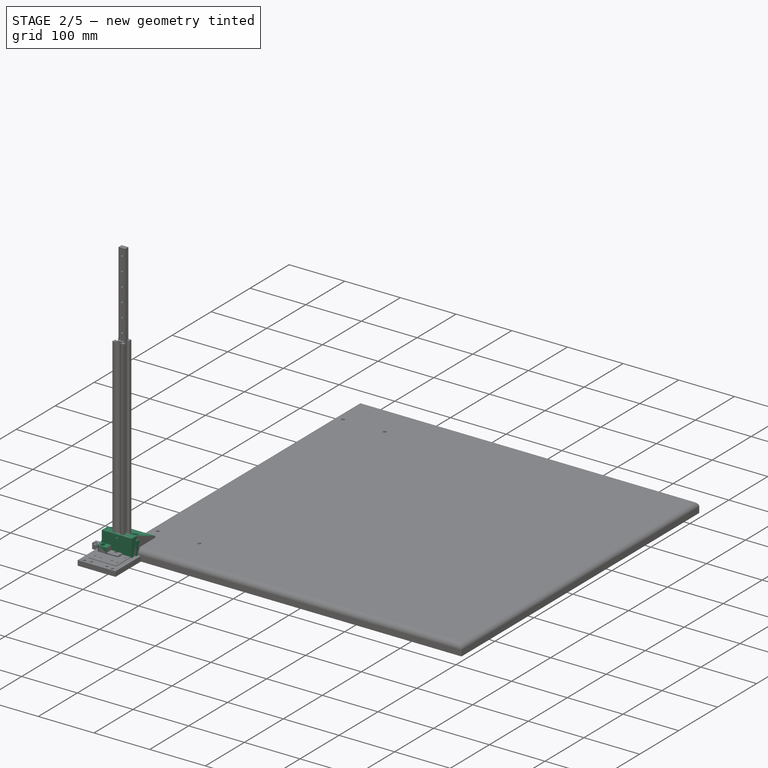
[diagram: stage 2 of 5 — iso view after this stage's code; geometry added in this stage tinted green]
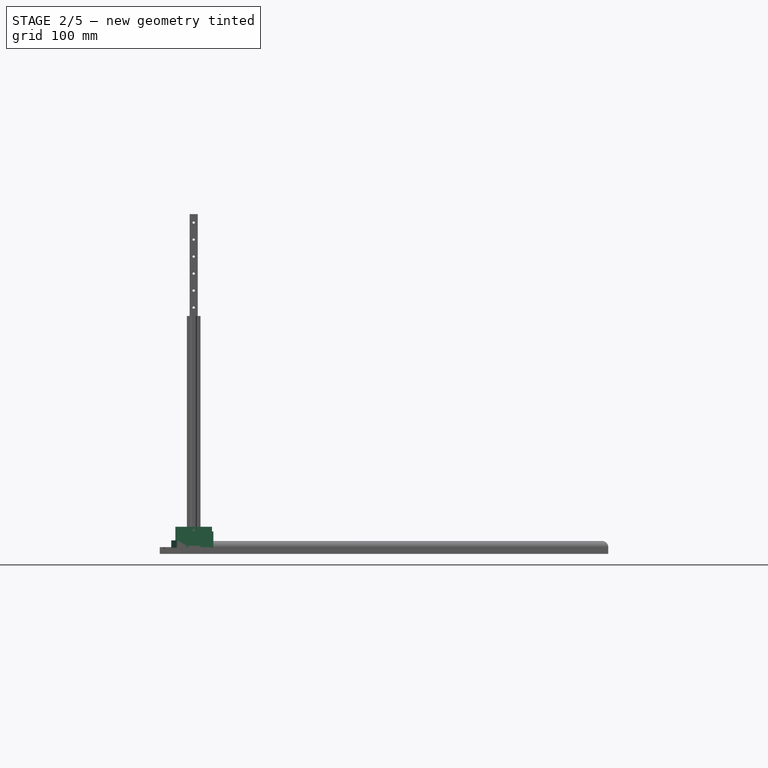
[diagram: stage 2 of 5 — front view after this stage's code; geometry added in this stage tinted green]
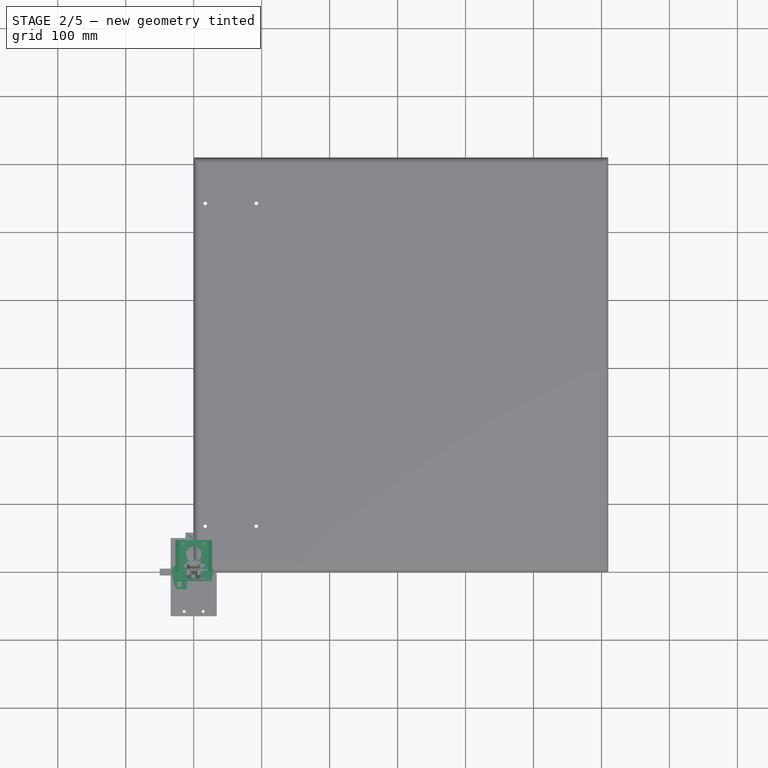
[diagram: stage 2 of 5 — top view after this stage's code; geometry added in this stage tinted green]
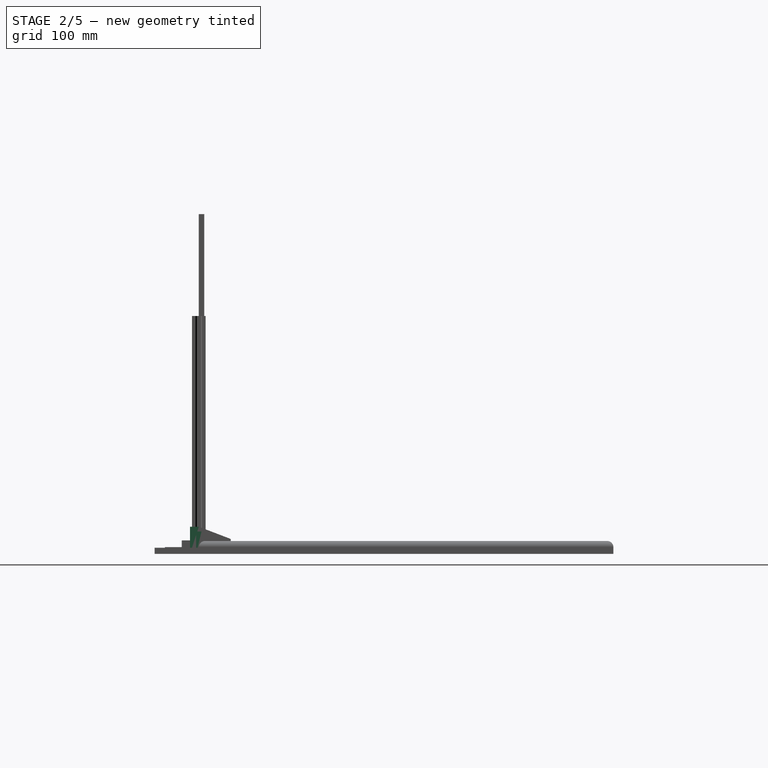
[diagram: stage 2 of 5 — right view after this stage's code; geometry added in this stage tinted green]
FEATURE [App::Link] AL_BRACKET_3
  AssemblyType = Asm4EE
  AttachedBy = #LCS_0
  AttachedTo = CARRIAGE_PLATE_Z#LCS_0093
  AttachmentOffset = pos=(24,-28,0) rot=(0,1,0;1.5708rad)
  LinkPlacement = pos=(190,149,408.4) rot=(-1,0,0;1.5708rad)
  LinkedObject = -> <external AL_BRACKET.FCStd>#Part
  Placement = pos=(190,149,408.4) rot=(-1,0,0;1.5708rad)
  expr: Placement = CARRIAGE_PLATE_Z.Placement * LCS_0093.Placement * AttachmentOffset * AL_BRACKET#LCS_0.Placement ^ -1
FEATURE [PartDesign::CoordinateSystem] LCS_0078
  AttacherType = Attacher::AttachEngine3D
  MapMode = 2
  Support = -> [X_Axis085]
FEATURE [Sketcher::SketchObject] Sketch105
  FullyConstrained = true
  MapMode = 5
  Support = -> [XY_Plane086]
  sketch-geometry (57):
    g0: LineSegment StartX=-10 StartY=10 StartZ=0 EndX=10 EndY=10 EndZ=0
    g1: LineSegment StartX=10 StartY=10 StartZ=0 EndX=10 EndY=-10 EndZ=0
    g2: LineSegment StartX=10 StartY=-10 StartZ=0 EndX=-10 EndY=-10 EndZ=0
    g3: LineSegment StartX=-10 StartY=-10 StartZ=0 EndX=-10 EndY=10 EndZ=0
    g4: LineSegment StartX=-3.9 StartY=-3.9 StartZ=0 EndX=3.9 EndY=-3.9 EndZ=0
    g5: LineSegment StartX=3.9 StartY=-3.9 StartZ=0 EndX=3.9 EndY=3.9 EndZ=0
    g6: LineSegment StartX=3.9 StartY=3.9 StartZ=0 EndX=-3.9 EndY=3.9 EndZ=0
    g7: LineSegment StartX=-3.9 StartY=3.9 StartZ=0 EndX=-3.9 EndY=-3.9 EndZ=0
    g8: LineSegment StartX=-8.2 StartY=8.2 StartZ=0 EndX=8.2 EndY=8.2 EndZ=0
    g9: LineSegment StartX=8.2 StartY=8.2 StartZ=0 EndX=8.2 EndY=-8.2 EndZ=0
    g10: LineSegment StartX=8.2 StartY=-8.2 StartZ=0 EndX=-8.2 EndY=-8.2 EndZ=0
    g11: LineSegment StartX=-8.2 StartY=-8.2 StartZ=0 EndX=-8.2 EndY=8.2 EndZ=0
    g12: Circle CenterX=0 CenterY=0 CenterZ=0 NormalX=0 NormalY=0 NormalZ=1 AngleXU=0 Radius=2.1
    g13: LineSegment StartX=-10 StartY=-10 StartZ=0 EndX=-10 EndY=-4.9 EndZ=0
    g14: LineSegment StartX=-10 StartY=-4.9 StartZ=0 EndX=-8.2 EndY=-3.1 EndZ=0
    g15: LineSegment StartX=-8.2 StartY=-3.1 StartZ=0 EndX=-8.2 EndY=-5.5 EndZ=0
    g16: LineSegment StartX=-6.56066 StartY=-5.5 StartZ=0 EndX=-3.9 EndY=-2.83934 EndZ=0
    g17: LineSegment StartX=-3.9 StartY=-2.83934 StartZ=0 EndX=-3.9 EndY=2.83934 EndZ=0
    g18: LineSegment StartX=-3.9 StartY=2.83934 StartZ=0 EndX=-6.56066 EndY=5.5 EndZ=0
    g19: LineSegment StartX=-8.2 StartY=5.5 StartZ=0 EndX=-8.2 EndY=3.1 EndZ=0
    g20: LineSegment StartX=-8.2 StartY=3.1 StartZ=0 EndX=-10 EndY=4.9 EndZ=0
    g21: LineSegment StartX=-10 StartY=4.9 StartZ=0 EndX=-10 EndY=10 EndZ=0
    g22: LineSegment StartX=-10 StartY=10 StartZ=0 EndX=-4.9 EndY=10 EndZ=0
    g23: LineSegment StartX=-4.9 StartY=10 StartZ=0 EndX=-3.1 EndY=8.2 EndZ=0
    g24: LineSegment StartX=-3.1 StartY=8.2 StartZ=0 EndX=-5.5 EndY=8.2 EndZ=0
    g25: LineSegment StartX=-5.5 StartY=6.56066 StartZ=0 EndX=-2.83934 EndY=3.9 EndZ=0
    g26: LineSegment StartX=-2.83934 StartY=3.9 StartZ=0 EndX=2.83934 EndY=3.9 EndZ=0
    g27: LineSegment StartX=2.83934 StartY=3.9 StartZ=0 EndX=5.5 EndY=6.56066 EndZ=0
    g28: LineSegment StartX=5.5 StartY=8.2 StartZ=0 EndX=3.1 EndY=8.2 EndZ=0
    g29: LineSegment StartX=3.1 StartY=8.2 StartZ=0 EndX=4.9 EndY=10 EndZ=0
    g30: LineSegment StartX=4.9 StartY=10 StartZ=0 EndX=10 EndY=10 EndZ=0
    g31: LineSegment StartX=10 StartY=10 StartZ=0 EndX=10 EndY=4.9 EndZ=0
    g32: LineSegment StartX=10 StartY=4.9 StartZ=0 EndX=8.2 EndY=3.1 EndZ=0
    g33: LineSegment StartX=8.2 StartY=3.1 StartZ=0 EndX=8.2 EndY=5.5 EndZ=0
    g34: LineSegment StartX=6.56066 StartY=5.5 StartZ=0 EndX=3.9 EndY=2.83934 EndZ=0
    g35: LineSegment StartX=3.9 StartY=2.83934 StartZ=0 EndX=3.9 EndY=-2.83934 EndZ=0
    g36: LineSegment StartX=3.9 StartY=-2.83934 StartZ=0 EndX=6.56066 EndY=-5.5 EndZ=0
    g37: LineSegment StartX=8.2 StartY=-5.5 StartZ=0 EndX=8.2 EndY=-3.1 EndZ=0
    g38: LineSegment StartX=8.2 StartY=-3.1 StartZ=0 EndX=10 EndY=-4.9 EndZ=0
    g39: LineSegment StartX=10 StartY=-4.9 StartZ=0 EndX=10 EndY=-10 EndZ=0
    g40: LineSegment StartX=10 StartY=-10 StartZ=0 EndX=4.9 EndY=-10 EndZ=0
    g41: LineSegment StartX=4.9 StartY=-10 StartZ=0 EndX=3.1 EndY=-8.2 EndZ=0
    g42: LineSegment StartX=3.1 StartY=-8.2 StartZ=0 EndX=5.5 EndY=-8.2 EndZ=0
    g43: LineSegment StartX=5.5 StartY=-6.56066 StartZ=0 EndX=2.83934 EndY=-3.9 EndZ=0
    g44: LineSegment StartX=2.83934 StartY=-3.9 StartZ=0 EndX=-2.83934 EndY=-3.9 EndZ=0
    g45: LineSegment StartX=-2.83934 StartY=-3.9 StartZ=0 EndX=-5.5 EndY=-6.56066 EndZ=0
    g46: LineSegment StartX=-5.5 StartY=-8.2 StartZ=0 EndX=-3.1 EndY=-8.2 EndZ=0
    g47: LineSegment StartX=-3.1 StartY=-8.2 StartZ=0 EndX=-4.9 EndY=-10 EndZ=0
    g48: LineSegment StartX=-4.9 StartY=-10 StartZ=0 EndX=-10 EndY=-10 EndZ=0
    g49: LineSegment StartX=-5.5 StartY=-8.2 StartZ=0 EndX=-5.5 EndY=-6.56066 EndZ=0
    g50: LineSegment StartX=-6.56066 StartY=-5.5 StartZ=0 EndX=-8.2 EndY=-5.5 EndZ=0
    g51: LineSegment StartX=-8.2 StartY=5.5 StartZ=0 EndX=-6.56066 EndY=5.5 EndZ=0
    g52: LineSegment StartX=-5.5 StartY=6.56066 StartZ=0 EndX=-5.5 EndY=8.2 EndZ=0
    g53: LineSegment StartX=5.5 StartY=8.2 StartZ=0 EndX=5.5 EndY=6.56066 EndZ=0
    g54: LineSegment StartX=6.56066 StartY=5.5 StartZ=0 EndX=8.2 EndY=5.5 EndZ=0
    g55: LineSegment StartX=6.56066 StartY=-5.5 StartZ=0 EndX=8.2 EndY=-5.5 EndZ=0
    g56: LineSegment StartX=5.5 StartY=-6.56066 StartZ=0 EndX=5.5 EndY=-8.2 EndZ=0
  constraints (133):
    c: Coincident(g0,g1)
    c: Coincident(g1,g2)
    c: Coincident(g2,g3)
    c: Coincident(g3,g0)
    c: Horizontal(g2)
    c: Vertical(g1)
    c: Equal(g3,g0)
    c: Symmetric(g0,g2,g-1)
    c: Symmetric(g0,g0,g-2)
    c: DistanceX(g0,g0) = 20
    c: Coincident(g4,g5)
    c: Coincident(g5,g6)
    c: Coincident(g6,g7)
    c: Coincident(g7,g4)
    c: Horizontal(g6)
    c: Vertical(g7)
    c: DistanceX(g2,g4) = 6.1
    c: DistanceY(g2,g4) = 6.1
    c: Coincident(g8,g9)
    c: Coincident(g9,g10)
    c: Coincident(g10,g11)
    c: Coincident(g11,g8)
    c: Horizontal(g8)
    c: Vertical(g11)
    c: DistanceX(g2,g10) = 1.8
    c: DistanceY(g2,g10) = 1.8
    c: Symmetric(g10,g9,g-2)
    c: Symmetric(g4,g4,g-2)
    c: Symmetric(g5,g4,g-1)
    c: Symmetric(g8,g9,g-1)
    c: Coincident(g12,g-1)
    c: Diameter(g12) = 4.2
    c: Coincident(g2,g13)
    c: PointOnObject(g13,g3)
    c: Coincident(g13,g14)
    c: PointOnObject(g14,g11)
    c: Coincident(g14,g15)
    c: PointOnObject(g16,g7)
    c: Coincident(g16,g17)
    c: Coincident(g17,g18)
    c: Coincident(g19,g20)
    c: Coincident(g20,g21)
    c: Coincident(g21,g0)
    c: Coincident(g21,g22)
    c: PointOnObject(g22,g0)
    c: Coincident(g22,g23)
    c: PointOnObject(g23,g8)
    c: Coincident(g23,g24)
    c: PointOnObject(g25,g6)
    c: Coincident(g25,g26)
    c: Coincident(g26,g27)
    c: Coincident(g28,g29)
    c: Coincident(g29,g30)
    c: Coincident(g30,g0)
    c: Coincident(g30,g31)
    c: Coincident(g31,g32)
    c: Coincident(g32,g33)
    c: Coincident(g34,g35)
    c: Coincident(g35,g36)
    c: Coincident(g37,g38)
    c: Coincident(g38,g39)
    c: Coincident(g39,g1)
    c: Coincident(g39,g40)
    c: PointOnObject(g40,g2)
    c: Coincident(g40,g41)
    c: Coincident(g41,g42)
    c: PointOnObject(g43,g4)
    c: Coincident(g43,g44)
    c: Coincident(g44,g45)
    c: Coincident(g46,g47)
    c: Coincident(g47,g48)
    c: Coincident(g48,g13)
    c: Angle(g2,g47) = 0.785398
    c: Parallel(g47,g45)
    c: Parallel(g45,g16)
    c: Parallel(g16,g14)
    c: DistanceY(g14,g19) = 6.2
    c: Symmetric(g19,g14,g-1)
    c: Equal(g48,g13)
    c: Coincident(g16,g50)
    c: Coincident(g15,g50)
    c: Coincident(g46,g49)
    c: Coincident(g45,g49)
    c: Vertical(g49)
    c: Horizontal(g50)
    c: Vertical(g52)
    c: Coincident(g24,g52)
    c: Coincident(g25,g52)
    c: Coincident(g18,g51)
    c: Coincident(g19,g51)
    c: DistanceY(g15,g19) = 11
    c: Symmetric(g20,g13,g-1)
    c: Equal(g50,g49)
    c: Equal(g46,g15)
    c: Horizontal(g46)
    c: Distance(g45,g16) = 1.5
    c: Symmetric(g15,g19,g-1)
    c: Equal(g22,g21)
    c: Symmetric(g23,g46,g-1)
    c: Symmetric(g25,g45,g-1)
    c: Symmetric(g18,g16,g-1)
    c: Symmetric(g17,g16,g-1)
    c: Symmetric(g25,g44,g-1)
    c: Symmetric(g23,g28,g-2)
    c: Symmetric(g29,g22,g-2)
    c: Symmetric(g26,g25,g-2)
    c: Coincident(g28,g53)
    c: Coincident(g27,g53)
    c: Coincident(g34,g54)
    c: Coincident(g33,g54)
    c: Symmetric(g28,g24,g-2)
    c: Symmetric(g27,g25,g-2)
    c: Symmetric(g34,g18,g-2)
    c: Symmetric(g33,g19,g-2)
    c: Symmetric(g34,g17,g-2)
    c: Horizontal(g28)
    c: Symmetric(g32,g37,g-1)
    c: Symmetric(g31,g38,g-1)
    c: Symmetric(g32,g19,g-2)
    c: Symmetric(g31,g20,g-2)
    c: Coincident(g36,g55)
    c: Coincident(g37,g55)
    c: Coincident(g42,g56)
    c: Coincident(g43,g56)
    c: Symmetric(g36,g34,g-1)
    c: Symmetric(g37,g33,g-1)
    c: Symmetric(g43,g45,g-2)
    c: Symmetric(g35,g34,g-1)
    c: Symmetric(g42,g46,g-2)
    c: Symmetric(g41,g46,g-2)
    c: Symmetric(g40,g47,g-2)
    c: Vertical(g37)
    c: Parallel(g43,g36)
FEATURE [PartDesign::Pad] Pad066
  Direction = (1,1,1)
  Length = 310
  Length2 = 100
  Profile = -> Sketch105
  Type = 0
FEATURE [PartDesign::Body] Body_13
  Group = -> [LCS_0075,Sketch101,Pad064,Sketch111,Pocket036]
  Origin = -> Origin082
  Tip = -> Pocket036
FEATURE [App::Part] RAIL_A_1V0  label="SHAFT_X"
  Group = -> [LCS_0074,Body_13]
  Origin = -> Origin081
FEATURE [PartDesign::CoordinateSystem] LCS_0081
  AttacherType = Attacher::AttachEngine3D
  MapMode = 2
  Support = -> [X_Axis089]
FEATURE [PartDesign::CoordinateSystem] LCS_0082
  AttacherType = Attacher::AttachEngine3D
  MapMode = 2
  Support = -> [X_Axis090]
FEATURE [Sketcher::SketchObject] Sketch112
  FullyConstrained = true
  MapMode = 5
  Support = -> [XY_Plane090]
  sketch-geometry (6):
    g0: LineSegment StartX=-12 StartY=-10 StartZ=0 EndX=12 EndY=-10 EndZ=0
    g1: LineSegment StartX=12 StartY=-10 StartZ=0 EndX=12 EndY=58 EndZ=0
    g2: LineSegment StartX=12 StartY=58 StartZ=0 EndX=-12 EndY=58 EndZ=0
    g3: LineSegment StartX=-12 StartY=58 StartZ=0 EndX=-12 EndY=-10 EndZ=0
    g4: Circle CenterX=0 CenterY=0 CenterZ=0 NormalX=0 NormalY=0 NormalZ=1 AngleXU=0 Radius=2.75
    g5: Circle CenterX=0 CenterY=48 CenterZ=0 NormalX=0 NormalY=0 NormalZ=1 AngleXU=0 Radius=2.75
  constraints (16):
    c: Coincident(g0,g1)
    c: Coincident(g1,g2)
    c: Coincident(g2,g3)
    c: Coincident(g3,g0)
    c: Horizontal(g2)
    c: Vertical(g1)
    c: Vertical(g3)
    c: Coincident(g4,g-1)
    c: Diameter(g4) = 5.5
    c: Symmetric(g0,g0,g-2)
    c: DistanceX(g0,g0) = 24
    c: DistanceY(g0,g-1) = 10
    c: DistanceY(g1,g1) = 68
    c: PointOnObject(g5,g-2)
    c: Equal(g5,g4)
    c: DistanceY(g5,g1) = 10
FEATURE [PartDesign::Pad] Pad069
  Direction = (1,1,1)
  Length = 5
  Length2 = 100
  Profile = -> Sketch112
  Refine = true
  Type = 0
FEATURE [PartDesign::CoordinateSystem] LCS_0083
  AttacherType = Attacher::AttachEngine3D
  MapMode = 2
  Support = -> [X_Axis091]
FEATURE [PartDesign::CoordinateSystem] LCS_0084
  AttacherType = Attacher::AttachEngine3D
  MapMode = 2
  Support = -> [X_Axis092]
FEATURE [Sketcher::SketchObject] Sketch113
  FullyConstrained = true
  MapMode = 5
  Support = -> [XY_Plane092]
  sketch-geometry (18):
    g0: LineSegment StartX=27 StartY=-13 StartZ=0 EndX=27 EndY=47 EndZ=0
    g1: LineSegment StartX=27 StartY=47 StartZ=0 EndX=-27 EndY=47 EndZ=0
    g2: LineSegment StartX=-27 StartY=47 StartZ=0 EndX=-27 EndY=-13 EndZ=0
    g3: Circle CenterX=0 CenterY=26 CenterZ=0 NormalX=0 NormalY=0 NormalZ=1 AngleXU=0 Radius=11.25
    g4: LineSegment StartX=-21.15 StartY=47.15 StartZ=0 EndX=21.15 EndY=47.15 EndZ=0
    g5: LineSegment StartX=21.15 StartY=47.15 StartZ=0 EndX=21.15 EndY=4.85 EndZ=0
    g6: LineSegment StartX=21.15 StartY=4.85 StartZ=0 EndX=-21.15 EndY=4.85 EndZ=0
    g7: LineSegment StartX=-21.15 StartY=4.85 StartZ=0 EndX=-21.15 EndY=47.15 EndZ=0
    g8: LineSegment StartX=-21.15 StartY=47.15 StartZ=0 EndX=21.15 EndY=4.85 EndZ=0
    g9: LineSegment StartX=-15.5 StartY=41.5 StartZ=0 EndX=15.5 EndY=41.5 EndZ=0
    g10: LineSegment StartX=15.5 StartY=41.5 StartZ=0 EndX=15.5 EndY=10.5 EndZ=0
    g11: LineSegment StartX=15.5 StartY=10.5 StartZ=0 EndX=-15.5 EndY=10.5 EndZ=0
    g12: LineSegment StartX=-15.5 StartY=10.5 StartZ=0 EndX=-15.5 EndY=41.5 EndZ=0
    g13: Circle CenterX=-15.5 CenterY=41.5 CenterZ=0 NormalX=0 NormalY=0 NormalZ=1 AngleXU=0 Radius=1.75
    g14: Circle CenterX=15.5 CenterY=41.5 CenterZ=0 NormalX=0 NormalY=0 NormalZ=1 AngleXU=0 Radius=1.75
    g15: Circle CenterX=15.5 CenterY=10.5 CenterZ=0 NormalX=0 NormalY=0 NormalZ=1 AngleXU=0 Radius=1.75
    g16: Circle CenterX=-15.5 CenterY=10.5 CenterZ=0 NormalX=0 NormalY=0 NormalZ=1 AngleXU=0 Radius=1.75
    g17: LineSegment StartX=-27 StartY=-13 StartZ=0 EndX=27 EndY=-13 EndZ=0
  constraints (46):
    c: Coincident(g0,g1)
    c: Coincident(g1,g2)
    c: Vertical(g0)
    c: Vertical(g2)
    c: Symmetric(g1,g0,g-2)
    c: PointOnObject(g3,g-2)
    c: Diameter(g3) = 22.5
    c: DistanceY(g-1,g3) = 26
    c: Coincident(g4,g5)
    c: Coincident(g5,g6)
    c: Coincident(g6,g7)
    c: Coincident(g7,g4)
    c: Horizontal(g6)
    c: Vertical(g5)
    c: Vertical(g7)
    c: Symmetric(g4,g4,g-2)
    c: DistanceX(g4,g4) = 42.3
    c: Equal(g7,g4)
    c: Coincident(g8,g4)
    c: Coincident(g8,g5)
    c: PointOnObject(g3,g8)
    c: Coincident(g9,g10)
    c: Coincident(g10,g11)
    c: Coincident(g11,g12)
    c: Coincident(g12,g9)
    c: Horizontal(g11)
    c: Vertical(g10)
    c: Vertical(g12)
    c: PointOnObject(g9,g8)
    c: PointOnObject(g10,g8)
    c: DistanceX(g9,g9) = 31
    c: Symmetric(g9,g9,g-2)
    c: Coincident(g13,g9)
    c: Coincident(g14,g9)
    c: Coincident(g15,g10)
    c: Coincident(g16,g11)
    c: Diameter(g16) = 3.5
    c: Equal(g16,g13)
    c: Equal(g16,g14)
    c: Equal(g16,g15)
    c: DistanceX(g2,g0) = 54
    c: DistanceY(g-1,g0) = 47
    c: Coincident(g17,g2)
    c: Coincident(g17,g0)
    c: Horizontal(g17)
    c: DistanceY(g0,g-1) = 13
FEATURE [PartDesign::Pad] Pad070
  Direction = (1,1,1)
  Length = 40
  Length2 = 100
  Profile = -> Sketch113
  Refine = true
  Type = 0
FEATURE [PartDesign::LinearPattern] LinearPattern
  BaseFeature = -> Hole001
  Direction = -> Sketch120 [V_Axis]
  Length = 475
  Occurrences = 20
  Originals = -> [Hole001]
  Refine = true
FEATURE [PartDesign::Body] Body_15
  Group = -> [LCS_0080,Sketch106,Pad067,Sketch124,Pocket040]
  Origin = -> Origin088
  Tip = -> Pocket040
FEATURE [App::Part] LC_BRACKET_1V0  label="LC_BRACK_B_1V0"
  Group = -> [LCS_0079,Body_15]
  Origin = -> Origin087
FEATURE [Sketcher::SketchObject] Sketch125
  AttachmentOffset = pos=(0,0,22) rot=(0,0,1;0rad)
  FullyConstrained = true
  MapMode = 5
  Placement = pos=(0,0,22) rot=(0,0,1;0rad)
  Support = -> [XY_Plane092]
  sketch-geometry (4):
    g0: LineSegment StartX=-22 StartY=50 StartZ=0 EndX=22 EndY=50 EndZ=0
    g1: LineSegment StartX=22 StartY=50 StartZ=0 EndX=22 EndY=0 EndZ=0
    g2: LineSegment StartX=22 StartY=0 StartZ=0 EndX=-22 EndY=0 EndZ=0
    g3: LineSegment StartX=-22 StartY=0 StartZ=0 EndX=-22 EndY=50 EndZ=0
  constraints (11):
    c: Coincident(g0,g1)
    c: Coincident(g1,g2)
    c: Coincident(g2,g3)
    c: Coincident(g3,g0)
    c: Horizontal(g2)
    c: Vertical(g1)
    c: Vertical(g3)
    c: PointOnObject(g1,g-1)
    c: DistanceY(g3,g3) = 50
    c: Symmetric(g0,g0,g-2)
    c: DistanceX(g0,g0) = 44
FEATURE [PartDesign::Pocket] Pocket041
  BaseFeature = -> Pad070
  Length = 5
  Length2 = 100
  Profile = -> Sketch125
  Refine = true
  Reversed = true
  Type = 1
FEATURE [Sketcher::SketchObject] Sketch126
  FullyConstrained = true
  MapMode = 5
  Support = -> [XY_Plane092]
  sketch-geometry (4):
    g0: LineSegment StartX=-6.5 StartY=1 StartZ=0 EndX=6.5 EndY=1 EndZ=0
    g1: LineSegment StartX=6.5 StartY=1 StartZ=0 EndX=6.5 EndY=-8 EndZ=0
    g2: LineSegment StartX=6.5 StartY=-8 StartZ=0 EndX=-6.5 EndY=-8 EndZ=0
    g3: LineSegment StartX=-6.5 StartY=-8 StartZ=0 EndX=-6.5 EndY=1 EndZ=0
  constraints (11):
    c: Coincident(g0,g1)
    c: Coincident(g1,g2)
    c: Coincident(g2,g3)
    c: Coincident(g3,g0)
    c: Horizontal(g0)
    c: Vertical(g1)
    c: Vertical(g3)
    c: DistanceY(g1,g1) = 9
    c: DistanceX(g2,g2) = 13
    c: Symmetric(g2,g1,g-2)
    c: DistanceY(g1,g-1) = 8
FEATURE [PartDesign::Pocket] Pocket042
  BaseFeature = -> Pocket041
  Length = 5
  Length2 = 100
  Profile = -> Sketch126
  Refine = true
  Reversed = true
  Type = 1
FEATURE [Sketcher::SketchObject] Sketch127
  FullyConstrained = true
  MapMode = 5
  Placement = pos=(0,0,0) rot=(1,0,0;1.5708rad)
  Support = -> [XZ_Plane091]
  sketch-geometry (2):
    g0: Circle CenterX=0 CenterY=35 CenterZ=0 NormalX=0 NormalY=0 NormalZ=1 AngleXU=0 Radius=1.75
    g1: Circle CenterX=0 CenterY=10 CenterZ=0 NormalX=0 NormalY=0 NormalZ=1 AngleXU=0 Radius=1.75
  constraints (6):
    c: PointOnObject(g0,g-2)
    c: PointOnObject(g1,g-2)
    c: Diameter(g1) = 3.5
    c: Equal(g1,g0)
    c: DistanceY(g1,g0) = 25
    c: DistanceY(g-1,g1) = 10
FEATURE [PartDesign::Pocket] Pocket043
  BaseFeature = -> Pocket042
  Length = 5
  Length2 = 100
  Profile = -> Sketch127
  Refine = true
  Reversed = true
  Type = 1
FEATURE [PartDesign::CoordinateSystem] LCS_0023
  AttacherType = Attacher::AttachEngine3D
  MapMode = 2
  Support = -> [X_Axis118]
FEATURE [PartDesign::Body] Body_029
  Group = -> [LCS_0023,Sketch107,Pad082]
  Origin = -> Origin118
  Tip = -> Pad082
FEATURE [PartDesign::CoordinateSystem] LCS_0022
  AttacherType = Attacher::AttachEngine3D
  MapMode = 2
  Support = -> [X_Axis117]
FEATURE [App::Part] ENCODER_PCB_1_0  label="ENC_PCB_1V0"
  Group = -> [LCS_0022,Body_029]
  Origin = -> Origin117
FEATURE [PartDesign::Pad] Pad083
  Direction = (1,1,1)
  Length = 20
  Length2 = 100
  Profile = -> Sketch140
  Refine = true
  Type = 0
FEATURE [Sketcher::SketchObject] Sketch141
  FullyConstrained = true
  MapMode = 5
  Support = -> [XY_Plane116]
  sketch-geometry (9):
    g0: ArcOfCircle CenterX=-21 CenterY=0 CenterZ=0 NormalX=0 NormalY=0 NormalZ=1 AngleXU=0 Radius=9.25 StartAngle=0.359014 EndAngle=5.92417
    g1: LineSegment StartX=-12.3397 StartY=3.25 StartZ=0 EndX=1 EndY=3.25 EndZ=0
    g2: LineSegment StartX=1 StartY=3.25 StartZ=0 EndX=1 EndY=-3.25 EndZ=0
    g3: LineSegment StartX=1 StartY=-3.25 StartZ=0 EndX=-12.3397 EndY=-3.25 EndZ=0
    g4: LineSegment StartX=-17.75 StartY=-8.66025 StartZ=0 EndX=-17.75 EndY=-22 EndZ=0
    g5: LineSegment StartX=-17.75 StartY=-22 StartZ=0 EndX=-24.25 EndY=-22 EndZ=0
    g6: LineSegment StartX=-24.25 StartY=-22 StartZ=0 EndX=-24.25 EndY=-8.66025 EndZ=0
    g7: ArcOfCircle CenterX=-21 CenterY=0 CenterZ=0 NormalX=0 NormalY=0 NormalZ=1 AngleXU=0 Radius=9.25 StartAngle=5.0714 EndAngle=10.6366
    g8: LineSegment StartX=-21 StartY=0 StartZ=0 EndX=-21 EndY=-22 EndZ=0
  constraints (26):
    c: PointOnObject(g0,g-1)
    c: Diameter(g0) = 18.5
    c: DistanceX(g0,g-1) = 21
    c: Horizontal(g1)
    c: Coincident(g1,g2)
    c: Coincident(g2,g3)
    c: Horizontal(g3)
    c: DistanceY(g2,g2) = 6.5
    c: Symmetric(g1,g2,g-1)
    c: DistanceX(g0,g1) = 22
    c: Coincident(g0,g1)
    c: Coincident(g0,g3)
    c: PointOnObject(g4,g0)
    c: Vertical(g4)
    c: Coincident(g4,g5)
    c: Horizontal(g5)
    c: Coincident(g5,g6)
    c: Vertical(g6)
    c: Coincident(g7,g0)
    c: Coincident(g7,g6)
    c: Coincident(g7,g4)
    c: Equal(g5,g2)
    c: Coincident(g8,g7)
    c: Vertical(g8)
    c: Symmetric(g5,g4,g8)
    c: Equal(g4,g3)
FEATURE [PartDesign::Pocket] Pocket048
  BaseFeature = -> Pad083
  Length = 14
  Length2 = 100
  Profile = -> Sketch141
  Refine = true
  Reversed = true
  Type = 0
FEATURE [PartDesign::CoordinateSystem] LCS_0113
  AttacherType = Attacher::AttachEngine3D
  MapMode = 2
  Support = -> [X_Axis123]
FEATURE [PartDesign::Body] Body_030
  Group = -> [LCS_0113,Sketch146,Pad086]
  Origin = -> Origin123
  Tip = -> Pad086
FEATURE [PartDesign::CoordinateSystem] LCS_0114
  AttacherType = Attacher::AttachEngine3D
  MapMode = 2
  Support = -> [X_Axis124]
FEATURE [App::Part] CARRIER_BRACKET_A_1V002  label="CARRIER_BRACK_C_1V0"
  Group = -> [LCS_0114,Body_030]
  Origin = -> Origin124
FEATURE [App::Link] CARRIER_BRACKET_C
  AssemblyType = Asm4EE
  AttachedBy = #LCS_0114
  AttachedTo = CARRIAGE_PLATE_X_2#LCS_0101
  AttachmentOffset = pos=(45,-30,10) rot=(0,0,1;4.71239rad)
  LinkPlacement = pos=(168,155,345.4) rot=(-0.57735,-0.57735,-0.57735;4.18879rad)
  LinkedObject = -> CARRIER_BRACKET_A_1V002
  Placement = pos=(168,155,345.4) rot=(-0.57735,-0.57735,-0.57735;4.18879rad)
  expr: Placement = CARRIAGE_PLATE_X_2.Placement * LCS_0101.Placement * AttachmentOffset * LCS_0114.Placement ^ -1
FEATURE [PartDesign::CoordinateSystem] LCS_0115
  AttacherType = Attacher::AttachEngine3D
  MapMode = 2
  Support = -> [X_Axis125]
FEATURE [PartDesign::CoordinateSystem] LCS_0116
  AttacherType = Attacher::AttachEngine3D
  MapMode = 2
  Support = -> [X_Axis126]
FEATURE [Sketcher::SketchObject] Sketch147
  FullyConstrained = true
  MapMode = 5
  Support = -> [XY_Plane126]
  sketch-geometry (6):
    g0: LineSegment StartX=-10 StartY=20 StartZ=0 EndX=10 EndY=20 EndZ=0
    g1: LineSegment StartX=10 StartY=20 StartZ=0 EndX=10 EndY=-20 EndZ=0
    g2: LineSegment StartX=10 StartY=-20 StartZ=0 EndX=-10 EndY=-20 EndZ=0
    g3: LineSegment StartX=-10 StartY=-20 StartZ=0 EndX=-10 EndY=20 EndZ=0
    g4: Circle CenterX=0 CenterY=10 CenterZ=0 NormalX=0 NormalY=0 NormalZ=1 AngleXU=0 Radius=2.75
    g5: Circle CenterX=0 CenterY=-10 CenterZ=0 NormalX=0 NormalY=0 NormalZ=1 AngleXU=0 Radius=2.75
  constraints (15):
    c: Coincident(g0,g1)
    c: Coincident(g1,g2)
    c: Coincident(g2,g3)
    c: Coincident(g3,g0)
    c: Horizontal(g2)
    c: Vertical(g3)
    c: Symmetric(g0,g0,g-2)
    c: DistanceX(g0,g0) = 20
    c: PointOnObject(g4,g-2)
    c: Diameter(g5) = 5.5
    c: Equal(g5,g4)
    c: DistanceY(g-1,g4) = 10
    c: Symmetric(g4,g5,g-1)
    c: DistanceY(g-1,g0) = 20
    c: Symmetric(g0,g1,g-1)
FEATURE [PartDesign::Pad] Pad087
  Direction = (1,1,1)
  Length = 5
  Length2 = 100
  Profile = -> Sketch147
  Refine = true
  Type = 0
FEATURE [Sketcher::SketchObject] Sketch148
  FullyConstrained = true
  MapMode = 5
  Placement = pos=(0,0,0) rot=(1,0,0;1.5708rad)
  Support = -> [XZ_Plane125]
  sketch-geometry (7):
    g0: LineSegment StartX=-10 StartY=0 StartZ=0 EndX=29 EndY=0 EndZ=0
    g1: LineSegment StartX=29 StartY=0 StartZ=0 EndX=29 EndY=33 EndZ=0
    g2: LineSegment StartX=29 StartY=33 StartZ=0 EndX=-10 EndY=33 EndZ=0
    g3: LineSegment StartX=-10 StartY=33 StartZ=0 EndX=-10 EndY=0 EndZ=0
    g4: Circle CenterX=14 CenterY=20 CenterZ=0 NormalX=0 NormalY=0 NormalZ=1 AngleXU=0 Radius=1.75
    g5: Circle CenterX=24 CenterY=20 CenterZ=0 NormalX=0 NormalY=0 NormalZ=1 AngleXU=0 Radius=1.75
    g6: Circle CenterX=19 CenterY=28 CenterZ=0 NormalX=0 NormalY=0 NormalZ=1 AngleXU=0 Radius=1.75
  constraints (21):
    c: Coincident(g0,g1)
    c: Coincident(g1,g2)
    c: Coincident(g2,g3)
    c: Coincident(g3,g0)
    c: Horizontal(g0)
    c: Horizontal(g2)
    c: Vertical(g1)
    c: Vertical(g3)
    c: PointOnObject(g0,g-1)
    c: DistanceX(g0,g-1) = 10
    c: Diameter(g6) = 3.5
    c: Equal(g6,g4)
    c: Equal(g6,g5)
    c: Horizontal(g4,g5)
    c: DistanceX(g4,g5) = 10
    c: DistanceY(g4,g6) = 8
    c: DistanceX(g4,g6) = 5
    c: DistanceX(g-1,g6) = 19
    c: DistanceX(g5,g1) = 5
    c: DistanceY(g-1,g5) = 20
    c: DistanceY(g6,g1) = 5
FEATURE [PartDesign::Pad] Pad088
  BaseFeature = -> Pad087
  Direction = (1,1,1)
  Length = 8
  Length2 = 100
  Midplane = true
  Profile = -> Sketch148
  Refine = true
  Type = 0
FEATURE [PartDesign::Body] Body_19
  Group = -> [LCS_0096,Sketch129,Pad076,Sketch155,Pocket055]
  Origin = -> Origin104
  Tip = -> Pocket055
FEATURE [App::Part] CARRIER_BRACKET_A_1V0  label="CARRIER_BRACK_A_1V0"
  Group = -> [LCS_0095,Body_19]
  Origin = -> Origin103
FEATURE [App::Link] PCB_BRACKET
  AssemblyType = Asm4EE
  AttachedBy = #LCS_0071
  AttachedTo = BAR_E_1#LCS_0073
  AttachmentOffset = pos=(10,-15,33) rot=(0,-0.707107,0.707107;3.14159rad)
  LinkPlacement = pos=(125,82.5,52) rot=(-1,0,0;1.5708rad)
  LinkedObject = -> PCB_BRACKET_1_0
  Placement = pos=(125,82.5,52) rot=(-1,0,0;1.5708rad)
  expr: Placement = BAR_E_1.Placement * LCS_0073.Placement * AttachmentOffset * LCS_0071.Placement ^ -1
FEATURE [PartDesign::CoordinateSystem] LCS_0121
  AttacherType = Attacher::AttachEngine3D
  MapMode = 2
  Support = -> [X_Axis131]
FEATURE [PartDesign::CoordinateSystem] LCS_0122
  AttacherType = Attacher::AttachEngine3D
  MapMode = 2
  Support = -> [X_Axis132]
FEATURE [Sketcher::SketchObject] Sketch156
  FullyConstrained = true
  MapMode = 5
  Support = -> [XY_Plane132]
  sketch-geometry (12):
    g0: LineSegment StartX=-10 StartY=12 StartZ=0 EndX=10 EndY=12 EndZ=0
    g1: LineSegment StartX=12 StartY=10 StartZ=0 EndX=12 EndY=-10 EndZ=0
    g2: LineSegment StartX=10 StartY=-12 StartZ=0 EndX=-10 EndY=-12 EndZ=0
    g3: LineSegment StartX=-12 StartY=-10 StartZ=0 EndX=-12 EndY=10 EndZ=0
    g4: ArcOfCircle CenterX=-10 CenterY=10 CenterZ=0 NormalX=0 NormalY=0 NormalZ=1 AngleXU=0 Radius=2 StartAngle=1.5708 EndAngle=3.14159
    g5: ArcOfCircle CenterX=10 CenterY=10 CenterZ=0 NormalX=0 NormalY=0 NormalZ=1 AngleXU=0 Radius=2 StartAngle=-9e-16 EndAngle=1.5708
    g6: ArcOfCircle CenterX=10 CenterY=-10 CenterZ=0 NormalX=0 NormalY=0 NormalZ=1 AngleXU=0 Radius=2 StartAngle=4.71239 EndAngle=6.28319
    g7: ArcOfCircle CenterX=-10 CenterY=-10 CenterZ=0 NormalX=0 NormalY=0 NormalZ=1 AngleXU=0 Radius=2 StartAngle=3.14159 EndAngle=4.71239
    g8: LineSegment StartX=-10 StartY=10 StartZ=0 EndX=10 EndY=10 EndZ=0
    g9: LineSegment StartX=10 StartY=10 StartZ=0 EndX=10 EndY=-10 EndZ=0
    g10: LineSegment StartX=10 StartY=-10 StartZ=0 EndX=-10 EndY=-10 EndZ=0
    g11: LineSegment StartX=-10 StartY=-10 StartZ=0 EndX=-10 EndY=10 EndZ=0
  constraints (27):
    c: Horizontal(g0)
    c: Horizontal(g2)
    c: Vertical(g1)
    c: Vertical(g3)
    c: Tangent(g0,g4) = 1.5708
    c: Tangent(g3,g4) = 1.5708
    c: Tangent(g0,g5) = 1.5708
    c: Tangent(g1,g5) = 1.5708
    c: Tangent(g1,g6) = 1.5708
    c: Tangent(g2,g6) = 1.5708
    c: Tangent(g2,g7) = 1.5708
    c: Tangent(g3,g7) = 1.5708
    c: Diameter(g4) = 4
    c: Equal(g4,g5)
    c: Coincident(g8,g9)
    c: Coincident(g9,g10)
    c: Coincident(g10,g11)
    c: Coincident(g11,g8)
    c: Horizontal(g10)
    c: Vertical(g9)
    c: Symmetric(g8,g8,g-2)
    c: DistanceX(g8,g8) = 20
    c: Equal(g8,g11)
    c: Symmetric(g8,g10,g-1)
    c: Symmetric(g4,g7,g-1)
    c: Symmetric(g7,g6,g-2)
    c: Coincident(g5,g8)
FEATURE [PartDesign::Pad] Pad091
  Direction = (1,1,1)
  Length = 20
  Length2 = 100
  Profile = -> Sketch156
  Refine = true
  Type = 0
FEATURE [Sketcher::SketchObject] Sketch157
  FullyConstrained = true
  MapMode = 5
  Support = -> [XY_Plane132]
  sketch-geometry (4):
    g0: LineSegment StartX=-10.15 StartY=10.15 StartZ=0 EndX=10.15 EndY=10.15 EndZ=0
    g1: LineSegment StartX=10.15 StartY=10.15 StartZ=0 EndX=10.15 EndY=-10.15 EndZ=0
    g2: LineSegment StartX=10.15 StartY=-10.15 StartZ=0 EndX=-10.15 EndY=-10.15 EndZ=0
    g3: LineSegment StartX=-10.15 StartY=-10.15 StartZ=0 EndX=-10.15 EndY=10.15 EndZ=0
  constraints (10):
    c: Coincident(g0,g1)
    c: Coincident(g1,g2)
    c: Coincident(g2,g3)
    c: Coincident(g3,g0)
    c: Horizontal(g2)
    c: Vertical(g3)
    c: Symmetric(g0,g0,g-2)
    c: Symmetric(g0,g1,g-1)
    c: Equal(g1,g0)
    c: DistanceX(g0,g0) = 20.3
FEATURE [PartDesign::Pocket] Pocket056
  BaseFeature = -> Pad091
  Length = 17
  Length2 = 100
  Profile = -> Sketch157
  Refine = true
  Reversed = true
  Type = 0
FEATURE [PartDesign::Body] Body_25
  Group = -> [LCS_0122,Sketch156,Pad091,Sketch157,Pocket056,Sketch158,Pocket057,Fillet]
  Origin = -> Origin132
  Tip = -> Fillet
FEATURE [App::Part] END_CAP_1V0
  Group = -> [LCS_0121,Body_25]
  Origin = -> Origin131
FEATURE [App::Link] END_CAP_1
  AssemblyType = Asm4EE
  AttachedBy = #LCS_0121
  AttachedTo = BAR_E_1#LCS_0073
  AttachmentOffset = pos=(0,0,333) rot=(0,0,1;0rad)
  LinkPlacement = pos=(135,67.5,352) rot=(0,0,-1;3.14159rad)
  LinkedObject = -> END_CAP_1V0
  Placement = pos=(135,67.5,352) rot=(0,0,-1;3.14159rad)
  expr: Placement = BAR_E_1.Placement * LCS_0073.Placement * AttachmentOffset * LCS_0121.Placement ^ -1
FEATURE [App::Link] END_CAP_2
  AssemblyType = Asm4EE
  AttachedBy = #LCS_0121
  AttachedTo = END_CAP_1#LCS_0121
  AttachmentOffset = pos=(0,-475,0) rot=(0,0,1;0rad)
  LinkPlacement = pos=(135,542.5,352) rot=(0,0,-1;3.14159rad)
  LinkedObject = -> END_CAP_1V0
  Placement = pos=(135,542.5,352) rot=(0,0,-1;3.14159rad)
  expr: Placement = END_CAP_1.Placement * LCS_0121.Placement * AttachmentOffset * LCS_0121.Placement ^ -1
FEATURE [App::Link] LC_PCB_BRACKET_1
  AssemblyType = Asm4EE
  AttachedBy = #LCS_0081
  AttachedTo = CARRIER_BRACKET_D_1V0001#LCS_0115
  AttachmentOffset = pos=(0,-32,0) rot=(0,0,1;1.5708rad)
  LinkPlacement = pos=(287,149,428.4) rot=(0,0,1;3.14159rad)
  LinkedObject = -> LC_PCB_BRACKET
  Placement = pos=(287,149,428.4) rot=(0,0,1;3.14159rad)
  expr: Placement = CARRIER_BRACKET_D_1V0001.Placement * LCS_0115.Placement * AttachmentOffset * LCS_0081.Placement ^ -1
FEATURE [App::Link] LC_PCB_BRACKET_2
  AssemblyType = Asm4EE
  AttachedBy = #LCS_0081
  AttachedTo = LC_PCB_BRACKET_1#LCS_0081
  AttachmentOffset = pos=(-24,0,0) rot=(0,0,1;0rad)
  LinkPlacement = pos=(311,149,428.4) rot=(0,0,1;3.14159rad)
  LinkedObject = -> LC_PCB_BRACKET
  Placement = pos=(311,149,428.4) rot=(0,0,1;3.14159rad)
  expr: Placement = LC_PCB_BRACKET_1.Placement * LCS_0081.Placement * AttachmentOffset * LCS_0081.Placement ^ -1
FEATURE [Sketcher::SketchObject] Sketch159
  AttachmentOffset = pos=(0,0,5) rot=(0,0,1;0rad)
  FullyConstrained = true
  MapMode = 5
  Placement = pos=(0,0,5) rot=(0,0,1;0rad)
  Support = -> [XY_Plane090]
  sketch-geometry (12):
    g0: LineSegment StartX=-10 StartY=7 StartZ=0 EndX=10 EndY=7 EndZ=0
    g1: LineSegment StartX=10 StartY=7 StartZ=0 EndX=10 EndY=41 EndZ=0
    g2: LineSegment StartX=10 StartY=41 StartZ=0 EndX=-10 EndY=41 EndZ=0
    g3: LineSegment StartX=-10 StartY=41 StartZ=0 EndX=-10 EndY=7 EndZ=0
    g4: LineSegment StartX=-10 StartY=39 StartZ=0 EndX=10 EndY=39 EndZ=0
    g5: LineSegment StartX=10 StartY=39 StartZ=0 EndX=10 EndY=35 EndZ=0
    g6: LineSegment StartX=10 StartY=35 StartZ=0 EndX=-10 EndY=35 EndZ=0
    g7: LineSegment StartX=-10 StartY=35 StartZ=0 EndX=-10 EndY=39 EndZ=0
    g8: LineSegment StartX=-10 StartY=13 StartZ=0 EndX=10 EndY=13 EndZ=0
    g9: LineSegment StartX=10 StartY=13 StartZ=0 EndX=10 EndY=9 EndZ=0
    g10: LineSegment StartX=10 StartY=9 StartZ=0 EndX=-10 EndY=9 EndZ=0
    g11: LineSegment StartX=-10 StartY=9 StartZ=0 EndX=-10 EndY=13 EndZ=0
  constraints (35):
    c: Coincident(g0,g1)
    c: Coincident(g1,g2)
    c: Coincident(g2,g3)
    c: Coincident(g3,g0)
    c: Horizontal(g0)
    c: Vertical(g1)
    c: Vertical(g3)
    c: Symmetric(g1,g2,g-2)
    c: DistanceY(g-1,g0) = 7
    c: DistanceY(g1,g1) = 34
    c: DistanceX(g2,g2) = 20
    c: Coincident(g4,g5)
    c: Coincident(g5,g6)
    c: Coincident(g6,g7)
    c: Coincident(g7,g4)
    c: Horizontal(g4)
    c: Horizontal(g6)
    c: Vertical(g5)
    c: Vertical(g7)
    c: PointOnObject(g4,g3)
    c: PointOnObject(g5,g1)
    c: Coincident(g8,g9)
    c: Coincident(g9,g10)
    c: Coincident(g10,g11)
    c: Coincident(g11,g8)
    c: Horizontal(g8)
    c: Horizontal(g10)
    c: Vertical(g9)
    c: Vertical(g11)
    c: PointOnObject(g8,g3)
    c: PointOnObject(g9,g1)
    c: DistanceY(g0,g9) = 2
    c: DistanceY(g9,g9) = 4
    c: DistanceY(g4,g1) = 2
    c: DistanceY(g5,g5) = 4
FEATURE [PartDesign::Pocket] Pocket058
  BaseFeature = -> Pad069
  Length = 2
  Length2 = 100
  Profile = -> Sketch159
  Refine = true
  Type = 0
FEATURE [PartDesign::Body] Body_8
  Group = -> [LCS_0082,Sketch112,Pad069,Sketch159,Pocket058]
  Origin = -> Origin090
  Tip = -> Pocket058
FEATURE [App::Part] LC_PCB_BRACKET  label="LC_PCB_BRACK_1V0"
  Group = -> [LCS_0081,Body_8]
  Origin = -> Origin089
FEATURE [Sketcher::SketchObject] Sketch160
  FullyConstrained = true
  MapMode = 5
  Placement = pos=(0,0,0) rot=(1,0,0;1.5708rad)
  Support = -> [XZ_Plane115]
  sketch-geometry (4):
    g0: LineSegment StartX=-10 StartY=32 StartZ=0 EndX=10 EndY=32 EndZ=0
    g1: LineSegment StartX=10 StartY=32 StartZ=0 EndX=10 EndY=12 EndZ=0
    g2: LineSegment StartX=10 StartY=12 StartZ=0 EndX=-10 EndY=12 EndZ=0
    g3: LineSegment StartX=-10 StartY=12 StartZ=0 EndX=-10 EndY=32 EndZ=0
  constraints (11):
    c: Coincident(g0,g1)
    c: Coincident(g1,g2)
    c: Coincident(g2,g3)
    c: Coincident(g3,g0)
    c: Horizontal(g0)
    c: Vertical(g1)
    c: Vertical(g3)
    c: Equal(g0,g3)
    c: DistanceX(g0,g0) = 20
    c: Symmetric(g2,g1,g-2)
    c: DistanceY(g-1,g1) = 12
FEATURE [PartDesign::Pocket] Pocket059
  BaseFeature = -> Pocket048
  Length = 5
  Length2 = 100
  Midplane = true
  Profile = -> Sketch160
  Refine = true
  Type = 1
FEATURE [PartDesign::Body] Body_21
  Group = -> [LCS_0108,Sketch140,Pad083,Sketch141,Pocket048,Sketch160,Pocket059]
  Origin = -> Origin116
  Tip = -> Pocket059
FEATURE [App::Part] ENCODER_BRACKET_X_1V0  label="ENC_BRACK_X_1V0"
  Group = -> [LCS_0107,Body_21]
  Origin = -> Origin115
FEATURE [Sketcher::SketchObject] Sketch161
  AttachmentOffset = pos=(0,0,17) rot=(0,0,1;0rad)
  FullyConstrained = true
  MapMode = 5
  Placement = pos=(0,0,17) rot=(0,0,1;0rad)
  Support = -> [XY_Plane092]
  sketch-geometry (4):
    g0: LineSegment StartX=-22 StartY=50 StartZ=0 EndX=22 EndY=50 EndZ=0
    g1: LineSegment StartX=22 StartY=50 StartZ=0 EndX=22 EndY=0 EndZ=0
    g2: LineSegment StartX=22 StartY=0 StartZ=0 EndX=-22 EndY=0 EndZ=0
    g3: LineSegment StartX=-22 StartY=0 StartZ=0 EndX=-22 EndY=50 EndZ=0
  constraints (11):
    c: Coincident(g0,g1)
    c: Coincident(g1,g2)
    c: Coincident(g2,g3)
    c: Coincident(g3,g0)
    c: Horizontal(g2)
    c: Vertical(g1)
    c: Vertical(g3)
    c: PointOnObject(g1,g-1)
    c: DistanceY(g3,g3) = 50
    c: Symmetric(g0,g0,g-2)
    c: DistanceX(g0,g0) = 44
FEATURE [PartDesign::Pocket] Pocket060
  BaseFeature = -> Pocket043
  Length = 5
  Length2 = 100
  Profile = -> Sketch161
  Refine = true
  Type = 1
FEATURE [PartDesign::Chamfer] Chamfer
  Angle = 45
  Base = -> Pocket060 [Edge20,Edge16]
  BaseFeature = -> Pocket060
  ChamferType = 1
  FlipDirection = false
  Refine = true
  Size = 18
  Size2 = 47
  SupportTransform = false
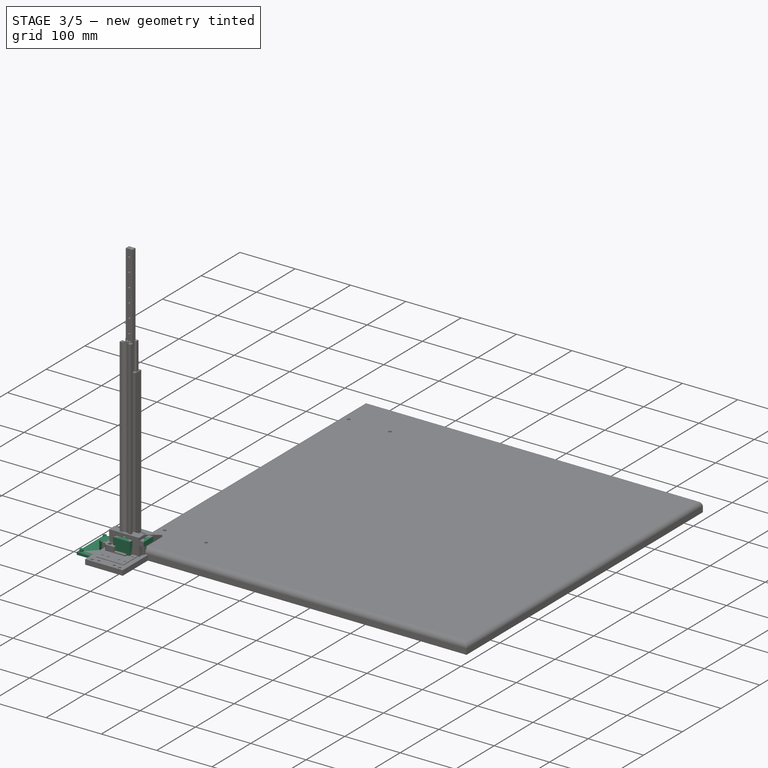
[diagram: stage 3 of 5 — iso view after this stage's code; geometry added in this stage tinted green]
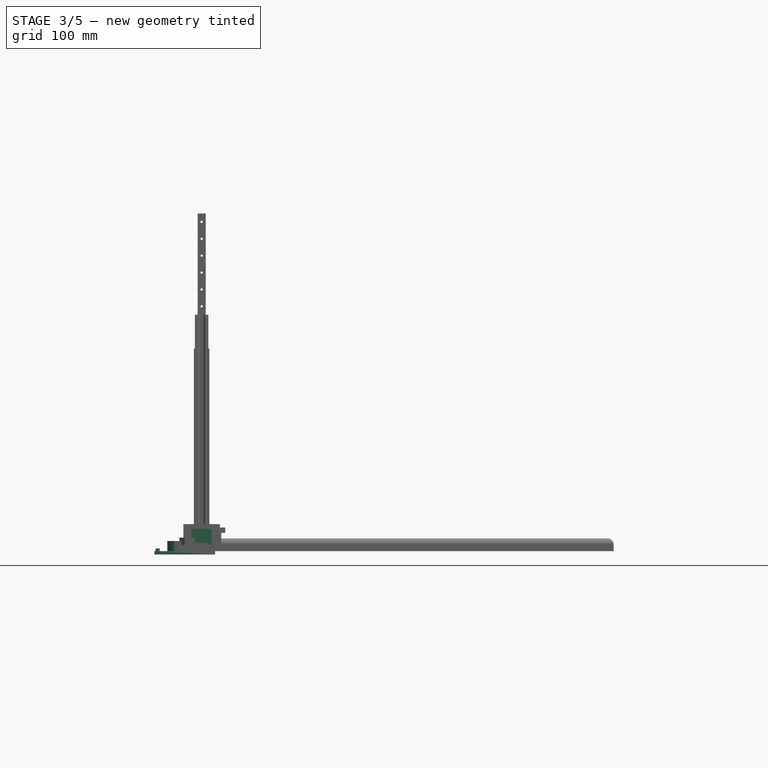
[diagram: stage 3 of 5 — front view after this stage's code; geometry added in this stage tinted green]
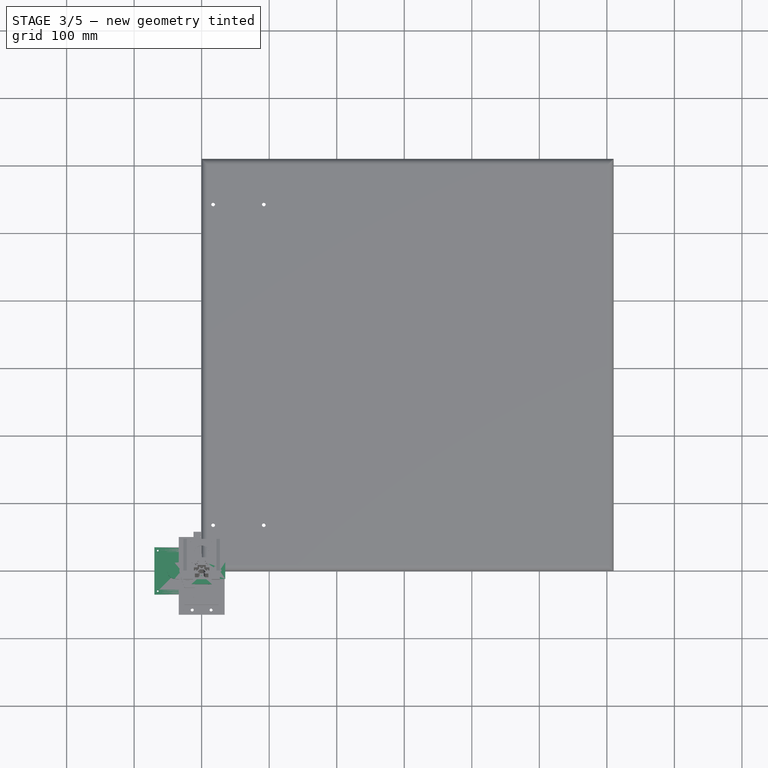
[diagram: stage 3 of 5 — top view after this stage's code; geometry added in this stage tinted green]
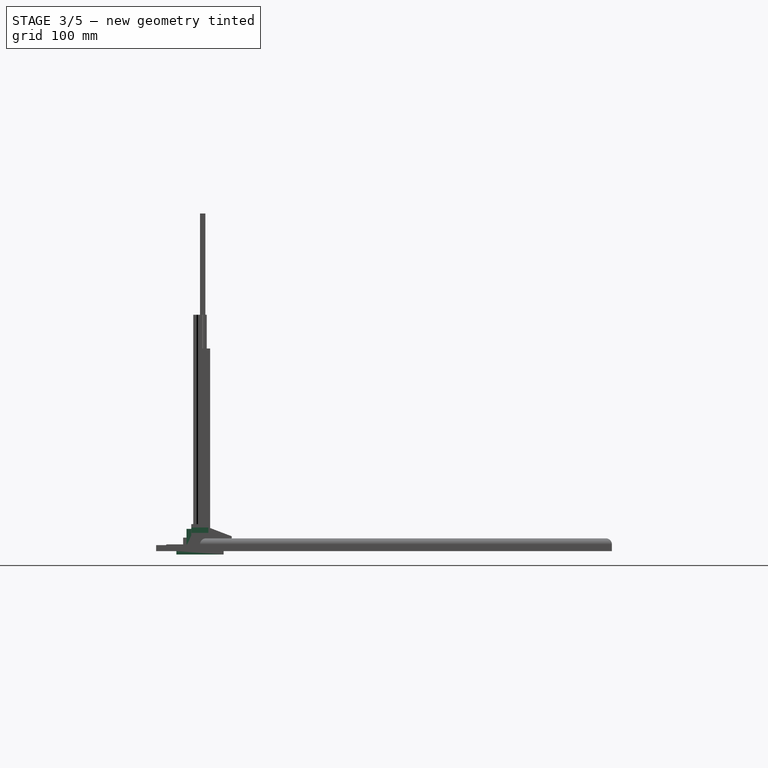
[diagram: stage 3 of 5 — right view after this stage's code; geometry added in this stage tinted green]
FEATURE [PartDesign::Body] Body_024
  Group = -> [LCS_0069,Sketch092,Pad059]
  Origin = -> Origin076
  Tip = -> Pad059
FEATURE [App::Part] LEAD_SCREW_A_1_001  label="LEAD_SCREW_X_1V0"
  Group = -> [LCS_0070,Body_024]
  Origin = -> Origin075
FEATURE [PartDesign::CoordinateSystem] LCS_0071
  AttacherType = Attacher::AttachEngine3D
  MapMode = 2
  Support = -> [X_Axis077]
FEATURE [PartDesign::CoordinateSystem] LCS_0072
  AttacherType = Attacher::AttachEngine3D
  MapMode = 2
  Support = -> [X_Axis078]
FEATURE [Sketcher::SketchObject] Sketch094
  FullyConstrained = true
  MapMode = 5
  Support = -> [XY_Plane078]
  sketch-geometry (17):
    g0: LineSegment StartX=0 StartY=-35 StartZ=0 EndX=-70 EndY=-35 EndZ=0
    g1: LineSegment StartX=-70 StartY=-35 StartZ=0 EndX=-70 EndY=35 EndZ=0
    g2: LineSegment StartX=-70 StartY=35 StartZ=0 EndX=0 EndY=35 EndZ=0
    g3: LineSegment StartX=0 StartY=35 StartZ=0 EndX=0 EndY=-35 EndZ=0
    g4: Circle CenterX=-65 CenterY=30 CenterZ=0 NormalX=0 NormalY=0 NormalZ=1 AngleXU=0 Radius=1.32
    g5: Circle CenterX=-65 CenterY=-30 CenterZ=0 NormalX=0 NormalY=0 NormalZ=1 AngleXU=0 Radius=1.32
    g6: LineSegment StartX=-65 StartY=30 StartZ=0 EndX=-5 EndY=30 EndZ=0
    g7: LineSegment StartX=-5 StartY=30 StartZ=0 EndX=-5 EndY=-30 EndZ=0
    g8: LineSegment StartX=-5 StartY=-30 StartZ=0 EndX=-65 EndY=-30 EndZ=0
    g9: LineSegment StartX=-65 StartY=-30 StartZ=0 EndX=-65 EndY=30 EndZ=0
    g10: Circle CenterX=-5 CenterY=30 CenterZ=0 NormalX=0 NormalY=0 NormalZ=1 AngleXU=0 Radius=1.32
    g11: Circle CenterX=-5 CenterY=-30 CenterZ=0 NormalX=0 NormalY=0 NormalZ=1 AngleXU=0 Radius=1.32
    g12: Circle CenterX=10 CenterY=-25 CenterZ=0 NormalX=0 NormalY=0 NormalZ=1 AngleXU=0 Radius=2.75
    g13: Circle CenterX=10 CenterY=25 CenterZ=0 NormalX=0 NormalY=0 NormalZ=1 AngleXU=0 Radius=2.75
    g14: LineSegment StartX=0 StartY=35 StartZ=0 EndX=20 EndY=35 EndZ=0
    g15: LineSegment StartX=20 StartY=35 StartZ=0 EndX=20 EndY=-35 EndZ=0
    g16: LineSegment StartX=20 StartY=-35 StartZ=0 EndX=0 EndY=-35 EndZ=0
  constraints (44):
    c: Coincident(g2,g3)
    c: Coincident(g3,g0)
    c: Horizontal(g0)
    c: Horizontal(g2)
    c: Vertical(g1)
    c: PointOnObject(g0,g-2)
    c: Symmetric(g2,g0,g-1)
    c: DistanceY(g3,g3) = 70
    c: Coincident(g6,g7)
    c: Coincident(g7,g8)
    c: Coincident(g8,g9)
    c: Coincident(g9,g6)
    c: Horizontal(g6)
    c: Horizontal(g8)
    c: Coincident(g10,g6)
    c: Coincident(g11,g7)
    c: Diameter(g4) = 2.64
    c: Equal(g4,g10)
    c: Equal(g4,g11)
    c: Equal(g4,g5)
    c: Coincident(g2,g1)
    c: Coincident(g1,g0)
    c: Vertical(g9)
    c: Coincident(g6,g4)
    c: Coincident(g5,g8)
    c: DistanceY(g9,g9) = 60
    c: Symmetric(g10,g11,g-1)
    c: DistanceX(g6,g6) = 60
    c: DistanceX(g0,g0) = 70
    c: DistanceX(g0,g5) = 5
    c: DistanceY(g12,g13) = 50
    c: Diameter(g12) = 5.5
    c: Equal(g12,g13)
    c: DistanceX(g-1,g13) = 10
    c: Vertical(g13,g12)
    c: DistanceY(g0,g12) = 10
    c: Horizontal(g14)
    c: Coincident(g14,g15)
    c: Vertical(g15)
    c: Coincident(g15,g16)
    c: Coincident(g16,g0)
    c: Horizontal(g16)
    c: DistanceX(g13,g14) = 10
    c: Coincident(g14,g2)
FEATURE [PartDesign::Pad] Pad060
  Direction = (1,1,1)
  Length = 5
  Length2 = 100
  Profile = -> Sketch094
  Refine = true
  Reversed = true
  Type = 0
FEATURE [Sketcher::SketchObject] Sketch095
  FullyConstrained = true
  MapMode = 5
  Support = -> [XY_Plane078]
  sketch-geometry (12):
    g0: LineSegment StartX=-65 StartY=30 StartZ=0 EndX=-5 EndY=30 EndZ=0
    g1: LineSegment StartX=-5 StartY=30 StartZ=0 EndX=-5 EndY=-30 EndZ=0
    g2: LineSegment StartX=-5 StartY=-30 StartZ=0 EndX=-65 EndY=-30 EndZ=0
    g3: LineSegment StartX=-65 StartY=-30 StartZ=0 EndX=-65 EndY=30 EndZ=0
    g4: Circle CenterX=-65 CenterY=30 CenterZ=0 NormalX=0 NormalY=0 NormalZ=1 AngleXU=0 Radius=1.32
    g5: Circle CenterX=-65 CenterY=30 CenterZ=0 NormalX=0 NormalY=0 NormalZ=1 AngleXU=0 Radius=3
    g6: Circle CenterX=-5 CenterY=30 CenterZ=0 NormalX=0 NormalY=0 NormalZ=1 AngleXU=0 Radius=1.32
    g7: Circle CenterX=-5 CenterY=30 CenterZ=0 NormalX=0 NormalY=0 NormalZ=1 AngleXU=0 Radius=3
    g8: Circle CenterX=-5 CenterY=-30 CenterZ=0 NormalX=0 NormalY=0 NormalZ=1 AngleXU=0 Radius=1.32
    g9: Circle CenterX=-5 CenterY=-30 CenterZ=0 NormalX=0 NormalY=0 NormalZ=1 AngleXU=0 Radius=3
    g10: Circle CenterX=-65 CenterY=-30 CenterZ=0 NormalX=0 NormalY=0 NormalZ=1 AngleXU=0 Radius=1.32
    g11: Circle CenterX=-65 CenterY=-30 CenterZ=0 NormalX=0 NormalY=0 NormalZ=1 AngleXU=0 Radius=3
  constraints (27):
    c: Coincident(g0,g1)
    c: Coincident(g1,g2)
    c: Coincident(g2,g3)
    c: Coincident(g3,g0)
    c: Horizontal(g0)
    c: Horizontal(g2)
    c: Vertical(g3)
    c: DistanceX(g0,g0) = 60
    c: DistanceY(g3,g3) = 60
    c: Symmetric(g1,g0,g-1)
    c: DistanceX(g1,g-1) = 5
    c: Coincident(g4,g0)
    c: Coincident(g5,g4)
    c: Coincident(g6,g0)
    c: Coincident(g7,g6)
    c: Coincident(g8,g1)
    c: Coincident(g9,g8)
    c: Coincident(g10,g2)
    c: Coincident(g11,g10)
    c: Diameter(g10) = 2.64
    c: Equal(g10,g8)
    c: Equal(g10,g6)
    c: Equal(g10,g4)
    c: Diameter(g7) = 6
    c: Equal(g7,g5)
    c: Equal(g7,g11)
    c: Equal(g7,g9)
FEATURE [PartDesign::Pad] Pad061
  BaseFeature = -> Pad060
  Direction = (1,1,1)
  Length = 4
  Length2 = 100
  Profile = -> Sketch095
  Refine = true
  Type = 0
FEATURE [PartDesign::Body] Body_021
  Group = -> [LCS_0060,Sketch080,Pad052,Sketch128,Pocket044]
  Origin = -> Origin066
  Tip = -> Pocket044
FEATURE [App::Part] CARRIAGE_1_005  label="LEAD_NUT_BRACK_X_1V0"
  Group = -> [LCS_0059,Body_021]
  Origin = -> Origin065
FEATURE [App::Link] LEAD_NUT_BRACKET_X
  AssemblyType = Asm4EE
  AttachedBy = #LCS_0059
  AttachedTo = RAIL_Z_1V0001#LCS_0089
  AttachmentOffset = pos=(0,-12,137.5) rot=(0.57735,0.57735,0.57735;2.0944rad)
  LinkPlacement = pos=(156,125,187.9) rot=(1,0,0;1.5708rad)
  LinkedObject = -> CARRIAGE_1_005
  Placement = pos=(156,125,187.9) rot=(1,0,0;1.5708rad)
  expr: Placement = RAIL_Z_1V0001.Placement * LCS_0089.Placement * AttachmentOffset * LCS_0059.Placement ^ -1
FEATURE [PartDesign::CoordinateSystem] LCS_0095
  AttacherType = Attacher::AttachEngine3D
  MapMode = 2
  Support = -> [X_Axis103]
FEATURE [PartDesign::CoordinateSystem] LCS_0096
  AttacherType = Attacher::AttachEngine3D
  MapMode = 2
  Support = -> [X_Axis104]
FEATURE [Sketcher::SketchObject] Sketch129
  FullyConstrained = true
  MapMode = 5
  Support = -> [XY_Plane104]
  sketch-geometry (10):
    g0: LineSegment StartX=-10 StartY=12.5 StartZ=0 EndX=35 EndY=12.5 EndZ=0
    g1: LineSegment StartX=35 StartY=12.5 StartZ=0 EndX=35 EndY=-12.5 EndZ=0
    g2: LineSegment StartX=35 StartY=-12.5 StartZ=0 EndX=-10 EndY=-12.5 EndZ=0
    g3: LineSegment StartX=-10 StartY=-12.5 StartZ=0 EndX=-10 EndY=12.5 EndZ=0
    g4: Circle CenterX=0 CenterY=7.5 CenterZ=0 NormalX=0 NormalY=0 NormalZ=1 AngleXU=0 Radius=2.75
    g5: Circle CenterX=0 CenterY=-7.5 CenterZ=0 NormalX=0 NormalY=0 NormalZ=1 AngleXU=0 Radius=2.75
    g6: LineSegment StartX=10 StartY=12.5 StartZ=0 EndX=10 EndY=-12.5 EndZ=0
    g7: Circle CenterX=20 CenterY=5 CenterZ=0 NormalX=0 NormalY=0 NormalZ=1 AngleXU=0 Radius=1.75
    g8: Circle CenterX=20 CenterY=-5 CenterZ=0 NormalX=0 NormalY=0 NormalZ=1 AngleXU=0 Radius=1.75
    g9: Circle CenterX=28 CenterY=0 CenterZ=0 NormalX=0 NormalY=0 NormalZ=1 AngleXU=0 Radius=1.75
  constraints (28):
    c: Coincident(g0,g1)
    c: Coincident(g1,g2)
    c: Coincident(g2,g3)
    c: Coincident(g3,g0)
    c: Horizontal(g0)
    c: Horizontal(g2)
    c: Vertical(g1)
    c: PointOnObject(g4,g-2)
    c: Symmetric(g5,g4,g-1)
    c: DistanceY(g5,g4) = 15
    c: Diameter(g5) = 5.5
    c: Equal(g5,g4)
    c: DistanceX(g0,g-1) = 10
    c: DistanceY(g3,g3) = 25
    c: Symmetric(g0,g2,g-1)
    c: PointOnObject(g6,g0)
    c: PointOnObject(g6,g2)
    c: Vertical(g6)
    c: DistanceX(g-1,g6) = 10
    c: PointOnObject(g9,g-1)
    c: Diameter(g9) = 3.5
    c: Equal(g9,g8)
    c: Equal(g9,g7)
    c: Symmetric(g7,g8,g-1)
    c: DistanceY(g8,g7) = 10
    c: DistanceX(g6,g7) = 10
    c: DistanceX(g7,g9) = 8
    c: DistanceX(g-1,g0) = 35
FEATURE [PartDesign::Pad] Pad076
  Direction = (1,1,1)
  Length = 35
  Length2 = 100
  Profile = -> Sketch129
  Refine = true
  Type = 0
FEATURE [PartDesign::CoordinateSystem] LCS_0097
  AttacherType = Attacher::AttachEngine3D
  MapMode = 2
  Support = -> [X_Axis106]
FEATURE [PartDesign::CoordinateSystem] LCS_0098
  AttacherType = Attacher::AttachEngine3D
  MapMode = 2
  Support = -> [X_Axis105]
FEATURE [Sketcher::SketchObject] Sketch130
  FullyConstrained = true
  MapMode = 5
  Support = -> [XY_Plane106]
  sketch-geometry (11):
    g0: Circle CenterX=-1e-16 CenterY=5 CenterZ=0 NormalX=0 NormalY=0 NormalZ=1 AngleXU=0 Radius=1.75
    g1: Circle CenterX=0 CenterY=-5 CenterZ=0 NormalX=0 NormalY=0 NormalZ=1 AngleXU=0 Radius=1.75
    g2: Circle CenterX=8 CenterY=0 CenterZ=0 NormalX=0 NormalY=0 NormalZ=1 AngleXU=0 Radius=1.75
    g3: Circle CenterX=-10 CenterY=-25 CenterZ=0 NormalX=0 NormalY=0 NormalZ=1 AngleXU=0 Radius=1.75
    g4: Circle CenterX=10 CenterY=-25 CenterZ=0 NormalX=0 NormalY=0 NormalZ=1 AngleXU=0 Radius=1.75
    g5: LineSegment StartX=-15 StartY=-30 StartZ=0 EndX=-15 EndY=-20 EndZ=0
    g6: LineSegment StartX=-15 StartY=-20 StartZ=0 EndX=-5 EndY=10 EndZ=0
    g7: LineSegment StartX=-5 StartY=10 StartZ=0 EndX=15 EndY=10 EndZ=0
    g8: LineSegment StartX=15 StartY=10 StartZ=0 EndX=15 EndY=-20 EndZ=0
    g9: LineSegment StartX=15 StartY=-20 StartZ=0 EndX=15 EndY=-30 EndZ=0
    g10: LineSegment StartX=15 StartY=-30 StartZ=0 EndX=-15 EndY=-30 EndZ=0
  constraints (30):
    c: PointOnObject(g2,g-1)
    c: Diameter(g2) = 3.5
    c: Equal(g2,g1)
    c: Equal(g2,g0)
    c: Symmetric(g0,g1,g-1)
    c: DistanceY(g1,g0) = 10
    c: DistanceX(g0,g2) = 8
    c: PointOnObject(g1,g-2)
    c: Diameter(g4) = 3.5
    c: Equal(g4,g3)
    c: Symmetric(g3,g4,g-2)
    c: DistanceX(g3,g4) = 20
    c: DistanceY(g4,g-1) = 25
    c: Coincident(g5,g6)
    c: Coincident(g6,g7)
    c: Horizontal(g7)
    c: Coincident(g7,g8)
    c: Coincident(g8,g9)
    c: Coincident(g9,g10)
    c: Coincident(g10,g5)
    c: DistanceX(g4,g9) = 5
    c: DistanceY(g9,g4) = 5
    c: Vertical(g9)
    c: Symmetric(g5,g9,g-2)
    c: DistanceY(g3,g5) = 5
    c: Symmetric(g5,g8,g-2)
    c: DistanceX(g6,g0) = 5
    c: DistanceY(g0,g6) = 5
    c: DistanceX(g2,g7) = 7
    c: Vertical(g8)
FEATURE [PartDesign::Pad] Pad077
  Direction = (1,1,1)
  Length = 33
  Length2 = 100
  Profile = -> Sketch130
  Refine = true
  Type = 0
FEATURE [PartDesign::Body] Body_4
  Group = -> [LCS_0039,Sketch048,Pad036,Sketch135,Hole003]
  Origin = -> Origin044
  Tip = -> Hole003
FEATURE [App::Part] MOTOR_BRACKET_1_0  label="MTR_BRACK_X_1V0"
  Group = -> [LCS_0038,Body_4]
  Origin = -> Origin043
FEATURE [PartDesign::CoordinateSystem] LCS_0105
  AttacherType = Attacher::AttachEngine3D
  MapMode = 2
  Support = -> [X_Axis113]
FEATURE [PartDesign::CoordinateSystem] LCS_0106
  AttacherType = Attacher::AttachEngine3D
  MapMode = 2
  Support = -> [X_Axis114]
FEATURE [Sketcher::SketchObject] Sketch136
  FullyConstrained = true
  MapMode = 5
  Support = -> [XY_Plane114]
  sketch-geometry (1):
    g0: Circle CenterX=0 CenterY=0 CenterZ=0 NormalX=0 NormalY=0 NormalZ=1 AngleXU=0 Radius=9
  constraints (2):
    c: Coincident(g0,g-1)
    c: Diameter(g0) = 18
FEATURE [PartDesign::Pad] Pad081
  Direction = (1,1,1)
  Length = 13
  Length2 = 100
  Profile = -> Sketch136
  Refine = true
  Type = 0
FEATURE [Sketcher::SketchObject] Sketch137
  FullyConstrained = true
  MapMode = 5
  Support = -> [XY_Plane114]
  sketch-geometry (6):
    g0: Circle CenterX=0 CenterY=0 CenterZ=0 NormalX=0 NormalY=0 NormalZ=1 AngleXU=0 Radius=4.25
    g1: LineSegment StartX=-3.15278 StartY=2.85 StartZ=0 EndX=-6.25 EndY=2.85 EndZ=0
    g2: LineSegment StartX=-6.25 StartY=2.85 StartZ=0 EndX=-6.25 EndY=-2.85 EndZ=0
    g3: LineSegment StartX=-6.25 StartY=-2.85 StartZ=0 EndX=-3.15278 EndY=-2.85 EndZ=0
    g4: GeomPoint X=-4.25 Y=0 Z=0
    g5: ArcOfCircle CenterX=0 CenterY=-7e-16 CenterZ=0 NormalX=0 NormalY=0 NormalZ=1 AngleXU=0 Radius=4.25 StartAngle=3.87659 EndAngle=8.68978
  constraints (15):
    c: Coincident(g0,g-1)
    c: Diameter(g0) = 8.5
    c: PointOnObject(g1,g0)
    c: Horizontal(g1)
    c: Coincident(g1,g2)
    c: Coincident(g2,g3)
    c: PointOnObject(g3,g0)
    c: Horizontal(g3)
    c: PointOnObject(g4,g0)
    c: PointOnObject(g4,g-1)
    c: DistanceX(g1,g4) = 2
    c: Symmetric(g1,g2,g-1)
    c: Coincident(g5,g-1)
    c: Coincident(g5,g1)
    c: Coincident(g5,g3)
FEATURE [PartDesign::Pocket] Pocket045
  BaseFeature = -> Pad081
  Length = 8
  Length2 = 100
  Profile = -> Sketch137
  Refine = true
  Reversed = true
  Type = 0
FEATURE [Sketcher::SketchObject] Sketch138
  AttachmentOffset = pos=(0,0,13) rot=(0,0,1;0rad)
  FullyConstrained = true
  MapMode = 5
  Placement = pos=(0,0,13) rot=(0,0,1;0rad)
  Support = -> [XY_Plane114]
  sketch-geometry (1):
    g0: Circle CenterX=0 CenterY=0 CenterZ=0 NormalX=0 NormalY=0 NormalZ=1 AngleXU=0 Radius=3.1
  constraints (2):
    c: Coincident(g0,g-1)
    c: Diameter(g0) = 6.2
FEATURE [PartDesign::Pocket] Pocket046
  BaseFeature = -> Pocket045
  Length = 2.6
  Length2 = 100
  Profile = -> Sketch138
  Refine = true
  Type = 0
FEATURE [Sketcher::SketchObject] Sketch139
  FullyConstrained = true
  MapMode = 5
  Placement = pos=(0,0,0) rot=(0.57735,0.57735,0.57735;2.0944rad)
  Support = -> [YZ_Plane114]
  sketch-geometry (1):
    g0: Circle CenterX=0 CenterY=4 CenterZ=0 NormalX=0 NormalY=0 NormalZ=1 AngleXU=0 Radius=1.75
  constraints (3):
    c: PointOnObject(g0,g-2)
    c: Diameter(g0) = 3.5
    c: DistanceY(g-1,g0) = 4
FEATURE [PartDesign::Pocket] Pocket047
  BaseFeature = -> Pocket046
  Length = 5
  Length2 = 100
  Profile = -> Sketch139
  Refine = true
  Type = 1
FEATURE [PartDesign::Body] Body_18
  Group = -> [LCS_0094,Sketch123,Pad075,Sketch145,Pocket050]
  Origin = -> Origin102
  Tip = -> Pocket050
FEATURE [App::Part] CARRIAGE_PLATE_Z_1V0
  Group = -> [LCS_0093,Body_18]
  Origin = -> Origin101
FEATURE [Sketcher::SketchObject] Sketch146
  FullyConstrained = true
  MapMode = 5
  Support = -> [XY_Plane123]
  sketch-geometry (10):
    g0: Circle CenterX=8 CenterY=-8 CenterZ=0 NormalX=0 NormalY=0 NormalZ=1 AngleXU=0 Radius=1.75
    g1: Circle CenterX=-10 CenterY=-25 CenterZ=0 NormalX=0 NormalY=0 NormalZ=1 AngleXU=0 Radius=1.75
    g2: Circle CenterX=10 CenterY=-25 CenterZ=0 NormalX=0 NormalY=0 NormalZ=1 AngleXU=0 Radius=1.75
    g3: LineSegment StartX=-15 StartY=-30 StartZ=0 EndX=-15 EndY=-20 EndZ=0
    g4: LineSegment StartX=-15 StartY=-20 StartZ=0 EndX=2 EndY=5 EndZ=0
    g5: LineSegment StartX=2 StartY=5 StartZ=0 EndX=24 EndY=5 EndZ=0
    g6: LineSegment StartX=24 StartY=5 StartZ=0 EndX=24 EndY=-30 EndZ=0
    g7: LineSegment StartX=24 StartY=-30 StartZ=0 EndX=-15 EndY=-30 EndZ=0
    g8: Circle CenterX=18 CenterY=-8 CenterZ=0 NormalX=0 NormalY=0 NormalZ=1 AngleXU=0 Radius=1.75
    g9: Circle CenterX=13 CenterY=0 CenterZ=0 NormalX=0 NormalY=0 NormalZ=1 AngleXU=0 Radius=1.75
  constraints (29):
    c: Diameter(g2) = 3.5
    c: Equal(g2,g1)
    c: Symmetric(g1,g2,g-2)
    c: DistanceX(g1,g2) = 20
    c: DistanceY(g2,g-1) = 25
    c: Coincident(g3,g4)
    c: Coincident(g4,g5)
    c: Horizontal(g5)
    c: Coincident(g5,g6)
    c: Coincident(g7,g3)
    c: DistanceY(g7,g2) = 5
    c: DistanceY(g1,g3) = 5
    c: Equal(g8,g9)
    c: Equal(g9,g0)
    c: Horizontal(g0,g8)
    c: DistanceX(g0,g8) = 10
    c: DistanceY(g0,g9) = 8
    c: DistanceX(g0,g9) = 5
    c: Diameter(g0) = 3.5
    c: PointOnObject(g9,g-1)
    c: DistanceY(g-1,g5) = 5
    c: DistanceX(g5,g5) = 22
    c: DistanceX(g9,g5) = 11
    c: DistanceX(g-1,g0) = 8
    c: Vertical(g3)
    c: DistanceX(g3,g1) = 5
    c: Coincident(g6,g7)
    c: Vertical(g6)
    c: Horizontal(g7)
FEATURE [PartDesign::Pad] Pad086
  Direction = (1,1,1)
  Length = 5
  Length2 = 100
  Profile = -> Sketch146
  Refine = true
  Type = 0
FEATURE [PartDesign::Body] Body_028
  Group = -> [LCS_0102,Sketch133,Pad079,Sketch143,Pocket049,Sketch149,Pocket051]
  Origin = -> Origin109
  Tip = -> Pocket051
FEATURE [App::Part] CARRIAGE_PLATE_Z_1V001  label="CARRIAGE_PLATE_X_1V0"
  Group = -> [LCS_0101,Body_028]
  Origin = -> Origin110
FEATURE [PartDesign::CoordinateSystem] LCS_0117
  AttacherType = Attacher::AttachEngine3D
  MapMode = 2
  Support = -> [X_Axis127]
FEATURE [PartDesign::CoordinateSystem] LCS_0118
  AttacherType = Attacher::AttachEngine3D
  MapMode = 2
  Support = -> [X_Axis128]
FEATURE [Sketcher::SketchObject] Sketch150
  FullyConstrained = true
  MapMode = 5
  Support = -> [XY_Plane128]
  sketch-geometry (13):
    g0: LineSegment StartX=-40.0389 StartY=11.9549 StartZ=0 EndX=-5 EndY=15 EndZ=0
    g1: LineSegment StartX=-5 StartY=15 StartZ=0 EndX=5 EndY=15 EndZ=0
    g2: LineSegment StartX=5 StartY=15 StartZ=0 EndX=5 EndY=-15 EndZ=0
    g3: LineSegment StartX=5 StartY=-15 StartZ=0 EndX=-5 EndY=-15 EndZ=0
    g4: LineSegment StartX=-5 StartY=-15 StartZ=0 EndX=-40.0389 EndY=-11.9549 EndZ=0
    g5: ArcOfCircle CenterX=-39 CenterY=0 CenterZ=0 NormalX=0 NormalY=0 NormalZ=1 AngleXU=0 Radius=12 StartAngle=1.65748 EndAngle=4.6257
    g6: Circle CenterX=-29 CenterY=0 CenterZ=0 NormalX=0 NormalY=0 NormalZ=1 AngleXU=0 Radius=1.3208
    g7: Circle CenterX=0 CenterY=10 CenterZ=0 NormalX=0 NormalY=0 NormalZ=1 AngleXU=0 Radius=2.5
    g8: Circle CenterX=0 CenterY=-10 CenterZ=0 NormalX=0 NormalY=0 NormalZ=1 AngleXU=0 Radius=2.5
    g9: LineSegment StartX=-25 StartY=3 StartZ=0 EndX=-17 EndY=3 EndZ=0
    g10: LineSegment StartX=-17 StartY=3 StartZ=0 EndX=-17 EndY=-3 EndZ=0
    g11: LineSegment StartX=-17 StartY=-3 StartZ=0 EndX=-25 EndY=-3 EndZ=0
    g12: LineSegment StartX=-25 StartY=-3 StartZ=0 EndX=-25 EndY=3 EndZ=0
  constraints (34):
    c: Coincident(g0,g1)
    c: Coincident(g1,g2)
    c: Coincident(g2,g3)
    c: Horizontal(g3)
    c: Coincident(g3,g4)
    c: Symmetric(g0,g1,g-2)
    c: Equal(g3,g1)
    c: Symmetric(g1,g2,g-1)
    c: PointOnObject(g5,g-1)
    c: Diameter(g5) = 24
    c: Tangent(g5,g0) = 1.5708
    c: Tangent(g5,g4) = 1.5708
    c: PointOnObject(g6,g-1)
    c: Diameter(g6) = 2.6416
    c: DistanceX(g5,g6) = 10
    c: PointOnObject(g7,g-2)
    c: Diameter(g8) = 5
    c: Equal(g8,g7)
    c: Symmetric(g7,g8,g-1)
    c: DistanceY(g8,g7) = 20
    c: DistanceY(g2,g2) = 30
    c: Coincident(g9,g10)
    c: Coincident(g10,g11)
    c: Coincident(g11,g12)
    c: Coincident(g12,g9)
    c: Horizontal(g9)
    c: Horizontal(g11)
    c: Vertical(g10)
    c: DistanceX(g9,g9) = 8
    c: DistanceY(g12,g12) = 6
    c: Symmetric(g9,g11,g-1)
    c: DistanceX(g6,g9) = 12
    c: DistanceX(g5,g-1) = 39
    c: DistanceX(g-1,g1) = 5
FEATURE [PartDesign::Pad] Pad089
  Direction = (1,1,1)
  Length = 15
  Length2 = 100
  Profile = -> Sketch150
  Refine = true
  Type = 0
FEATURE [Sketcher::SketchObject] Sketch151
  FullyConstrained = true
  MapMode = 5
  Support = -> [XY_Plane128]
  sketch-geometry (4):
    g0: ArcOfCircle CenterX=-39 CenterY=0 CenterZ=0 NormalX=0 NormalY=0 NormalZ=1 AngleXU=0 Radius=9.25 StartAngle=0.359014 EndAngle=5.92417
    g1: LineSegment StartX=-30.3397 StartY=3.25 StartZ=0 EndX=-17 EndY=3.25 EndZ=0
    g2: LineSegment StartX=-17 StartY=3.25 StartZ=0 EndX=-17 EndY=-3.25 EndZ=0
    g3: LineSegment StartX=-17 StartY=-3.25 StartZ=0 EndX=-30.3397 EndY=-3.25 EndZ=0
  constraints (12):
    c: PointOnObject(g0,g-1)
    c: Diameter(g0) = 18.5
    c: DistanceX(g0,g-1) = 39
    c: Horizontal(g1)
    c: Coincident(g1,g2)
    c: Coincident(g2,g3)
    c: Horizontal(g3)
    c: DistanceY(g2,g2) = 6.5
    c: Symmetric(g1,g2,g-1)
    c: DistanceX(g0,g1) = 22
    c: Coincident(g0,g1)
    c: Coincident(g0,g3)
FEATURE [PartDesign::Pocket] Pocket052
  BaseFeature = -> Pad089
  Length = 12
  Length2 = 100
  Profile = -> Sketch151
  Refine = true
  Reversed = true
  Type = 0
FEATURE [PartDesign::Body] Body_031
  Group = -> [LCS_0117,Sketch150,Pad089,Sketch151,Pocket052]
  Origin = -> Origin128
  Tip = -> Pocket052
FEATURE [App::Part] ENCODER_BRACKET_X_1V001  label="ENC_BRACK_Z_1V0"
  Group = -> [LCS_0118,Body_031]
  Origin = -> Origin127
FEATURE [App::Link] ENCODER_BRACKET_Z_1V0  label="ENCODER_BRACKET_Z_1V001"
  AssemblyType = Asm4EE
  AttachedBy = #LCS_0118
  AttachedTo = CARRIAGE_PLATE_X_1001#LCS_0101
  AttachmentOffset = pos=(-25,0,5) rot=(-0.707107,0,0.707107;3.14159rad)
  LinkPlacement = pos=(163,125,50.4) rot=(0,-1,0;3.14159rad)
  LinkedObject = -> ENCODER_BRACKET_X_1V001
  Placement = pos=(163,125,50.4) rot=(0,-1,0;3.14159rad)
  expr: Placement = CARRIAGE_PLATE_X_1001.Placement * LCS_0101.Placement * AttachmentOffset * LCS_0118.Placement ^ -1
FEATURE [App::Link] MAGNET_COUPLER_Z
  AssemblyType = Asm4EE
  AttachedBy = #LCS_0105
  AttachedTo = ENCODER_BRACKET_Z_1V0#LCS_0118
  AttachmentOffset = pos=(-39,0,-7) rot=(0,0,1;0rad)
  LinkPlacement = pos=(202,125,57.4) rot=(0,-1,0;3.14159rad)
  LinkedObject = -> MAGENT_COUPLER_1V0
  Placement = pos=(202,125,57.4) rot=(0,-1,0;3.14159rad)
  expr: Placement = ENCODER_BRACKET_Z_1V0.Placement * LCS_0118.Placement * AttachmentOffset * LCS_0105.Placement ^ -1
FEATURE [PartDesign::CoordinateSystem] LCS_0119
  AttacherType = Attacher::AttachEngine3D
  MapMode = 2
  Support = -> [X_Axis129]
FEATURE [PartDesign::CoordinateSystem] LCS_0120
  AttacherType = Attacher::AttachEngine3D
  MapMode = 2
  Support = -> [X_Axis130]
FEATURE [Sketcher::SketchObject] Sketch152
  FullyConstrained = true
  MapMode = 5
  Support = -> [XY_Plane130]
  sketch-geometry (4):
    g0: LineSegment StartX=-11.5 StartY=0 StartZ=0 EndX=11.5 EndY=0 EndZ=0
    g1: LineSegment StartX=11.5 StartY=0 StartZ=0 EndX=11.5 EndY=15 EndZ=0
    g2: LineSegment StartX=11.5 StartY=15 StartZ=0 EndX=-11.5 EndY=15 EndZ=0
    g3: LineSegment StartX=-11.5 StartY=15 StartZ=0 EndX=-11.5 EndY=0 EndZ=0
  constraints (11):
    c: Coincident(g0,g1)
    c: Coincident(g1,g2)
    c: Coincident(g2,g3)
    c: Coincident(g3,g0)
    c: Horizontal(g0)
    c: Vertical(g1)
    c: Vertical(g3)
    c: PointOnObject(g0,g-1)
    c: DistanceY(g1,g1) = 15
    c: DistanceX(g2,g2) = 23
    c: Symmetric(g2,g1,g-2)
FEATURE [PartDesign::Pad] Pad090
  Direction = (1,1,1)
  Length = 300
  Length2 = 100
  Profile = -> Sketch152
  Refine = true
  Type = 0
FEATURE [Sketcher::SketchObject] Sketch153
  FullyConstrained = true
  MapMode = 5
  Placement = pos=(0,0,0) rot=(1,0,0;1.5708rad)
  Support = -> [XZ_Plane129]
  sketch-geometry (3):
    g0: Circle CenterX=-5 CenterY=4 CenterZ=0 NormalX=0 NormalY=0 NormalZ=1 AngleXU=0 Radius=1.75
    g1: Circle CenterX=5 CenterY=4 CenterZ=0 NormalX=0 NormalY=0 NormalZ=1 AngleXU=0 Radius=1.75
    g2: Circle CenterX=0 CenterY=12 CenterZ=0 NormalX=0 NormalY=0 NormalZ=1 AngleXU=0 Radius=1.75
  constraints (8):
    c: PointOnObject(g2,g-2)
    c: Diameter(g0) = 3.5
    c: Equal(g0,g1)
    c: Equal(g0,g2)
    c: DistanceY(g0,g2) = 8
    c: Symmetric(g0,g1,g-2)
    c: DistanceX(g0,g1) = 10
    c: DistanceY(g-1,g1) = 4
FEATURE [PartDesign::Pocket] Pocket053
  BaseFeature = -> Pad090
  Length = 5
  Length2 = 100
  Profile = -> Sketch153
  Refine = true
  Type = 1
FEATURE [PartDesign::Body] Body_14
  Group = -> [LCS_0120,Sketch152,Pad090,Sketch153,Pocket053]
  Origin = -> Origin130
  Tip = -> Pocket053
FEATURE [App::Part] CABLE_CARRIER
  Group = -> [LCS_0119,Body_14]
  Origin = -> Origin129
FEATURE [App::Link] CABLE_CARRIER_1
  AssemblyType = Asm4EE
  AttachedBy = #LCS_0119
  AttachedTo = CARRIER_BRACKET_C#LCS_0114
  AttachmentOffset = pos=(13,-12,0) rot=(1,0,0;4.71239rad)
  LinkPlacement = pos=(168,168,333.4) rot=(0,0,1;1.5708rad)
  LinkedObject = -> CABLE_CARRIER
  Placement = pos=(168,168,333.4) rot=(0,0,1;1.5708rad)
  expr: Placement = CARRIER_BRACKET_C.Placement * LCS_0114.Placement * AttachmentOffset * LCS_0119.Placement ^ -1
FEATURE [App::Link] CABLE_CARRIER_2
  AssemblyType = Asm4EE
  AttachedBy = #LCS_0119
  AttachedTo = CARRIER_BRACKET_D_1V0001#LCS_0115
  AttachmentOffset = pos=(19,4,16) rot=(0,0,1;0rad)
  LinkPlacement = pos=(251,168,444.4) rot=(0,0,1;1.5708rad)
  LinkedObject = -> CABLE_CARRIER
  Placement = pos=(251,168,444.4) rot=(0,0,1;1.5708rad)
  expr: Placement = CARRIER_BRACKET_D_1V0001.Placement * LCS_0115.Placement * AttachmentOffset * LCS_0119.Placement ^ -1
FEATURE [Sketcher::SketchObject] Sketch154
  FullyConstrained = true
  MapMode = 5
  Placement = pos=(0,0,0) rot=(0.57735,0.57735,0.57735;2.0944rad)
  Support = -> [YZ_Plane105]
  sketch-geometry (8):
    g0: LineSegment StartX=-20 StartY=8 StartZ=0 EndX=-30 EndY=8 EndZ=0
    g1: LineSegment StartX=-30 StartY=8 StartZ=0 EndX=-30 EndY=33 EndZ=0
    g2: LineSegment StartX=-30 StartY=33 StartZ=0 EndX=-20 EndY=33 EndZ=0
    g3: LineSegment StartX=-20 StartY=33 StartZ=0 EndX=-20 EndY=8 EndZ=0
    g4: LineSegment StartX=10 StartY=25 StartZ=0 EndX=-12 EndY=25 EndZ=0
    g5: LineSegment StartX=-12 StartY=25 StartZ=0 EndX=-12 EndY=0 EndZ=0
    g6: LineSegment StartX=-12 StartY=0 StartZ=0 EndX=10 EndY=0 EndZ=0
    g7: LineSegment StartX=10 StartY=0 StartZ=0 EndX=10 EndY=25 EndZ=0
  constraints (24):
    c: Coincident(g0,g1)
    c: Coincident(g1,g2)
    c: Coincident(g2,g3)
    c: Coincident(g3,g0)
    c: Horizontal(g0)
    c: Horizontal(g2)
    c: Vertical(g1)
    c: Vertical(g3)
    c: Coincident(g4,g5)
    c: Coincident(g5,g6)
    c: Coincident(g6,g7)
    c: Coincident(g7,g4)
    c: Horizontal(g4)
    c: Horizontal(g6)
    c: Vertical(g5)
    c: Vertical(g7)
    c: PointOnObject(g6,g-1)
    c: DistanceY(g-1,g1) = 33
    c: DistanceX(g2,g4) = 8
    c: DistanceX(g-1,g4) = 10
    c: DistanceX(g4,g-1) = 12
    c: DistanceX(g2,g2) = 10
    c: DistanceY(g-1,g0) = 8
    c: DistanceY(g-1,g4) = 25
FEATURE [PartDesign::Pocket] Pocket054
  BaseFeature = -> Pad077
  Length = 5
  Length2 = 100
  Midplane = true
  Profile = -> Sketch154
  Refine = true
  Type = 1
FEATURE [PartDesign::Body] Body_026
  Group = -> [LCS_0098,Sketch130,Pad077,Sketch154,Pocket054]
  Origin = -> Origin105
  Tip = -> Pocket054
FEATURE [App::Part] CARRIER_BRACKET_A_1V001  label="CARRIER_BRACK_B_1V0"
  Group = -> [LCS_0097,Body_026]
  Origin = -> Origin106
FEATURE [Sketcher::SketchObject] Sketch155
  FullyConstrained = true
  MapMode = 5
  Placement = pos=(0,0,0) rot=(1,0,0;1.5708rad)
  Support = -> [XZ_Plane103]
  sketch-geometry (8):
    g0: LineSegment StartX=-10 StartY=35 StartZ=0 EndX=5 EndY=35 EndZ=0
    g1: LineSegment StartX=5 StartY=35 StartZ=0 EndX=5 EndY=8 EndZ=0
    g2: LineSegment StartX=5 StartY=8 StartZ=0 EndX=-10 EndY=8 EndZ=0
    g3: LineSegment StartX=-10 StartY=8 StartZ=0 EndX=-10 EndY=35 EndZ=0
    g4: LineSegment StartX=35 StartY=27 StartZ=0 EndX=13 EndY=27 EndZ=0
    g5: LineSegment StartX=13 StartY=27 StartZ=0 EndX=13 EndY=0 EndZ=0
    g6: LineSegment StartX=13 StartY=0 StartZ=0 EndX=35 EndY=0 EndZ=0
    g7: LineSegment StartX=35 StartY=0 StartZ=0 EndX=35 EndY=27 EndZ=0
  constraints (24):
    c: Coincident(g0,g1)
    c: Coincident(g1,g2)
    c: Coincident(g2,g3)
    c: Coincident(g3,g0)
    c: Horizontal(g0)
    c: Horizontal(g2)
    c: Vertical(g1)
    c: Vertical(g3)
    c: Coincident(g4,g5)
    c: Coincident(g5,g6)
    c: Coincident(g6,g7)
    c: Coincident(g7,g4)
    c: Horizontal(g4)
    c: Horizontal(g6)
    c: Vertical(g5)
    c: Vertical(g7)
    c: PointOnObject(g5,g-1)
    c: DistanceX(g-1,g4) = 35
    c: DistanceY(g-1,g4) = 27
    c: DistanceX(g0,g-1) = 10
    c: DistanceY(g-1,g0) = 35
    c: DistanceX(g0,g4) = 8
    c: DistanceX(g0,g0) = 15
    c: DistanceY(g-1,g2) = 8
FEATURE [PartDesign::Pocket] Pocket055
  BaseFeature = -> Pad076
  Length = 5
  Length2 = 100
  Midplane = true
  Profile = -> Sketch155
  Refine = true
  Type = 1
FEATURE [Sketcher::SketchObject] Sketch158
  FullyConstrained = true
  MapMode = 5
  Placement = pos=(0,0,0) rot=(1,0,0;1.5708rad)
  Support = -> [XZ_Plane131]
  sketch-geometry (1):
    g0: Circle CenterX=0 CenterY=5 CenterZ=0 NormalX=0 NormalY=0 NormalZ=1 AngleXU=0 Radius=2.75
  constraints (3):
    c: PointOnObject(g0,g-2)
    c: DistanceY(g-1,g0) = 5
    c: Diameter(g0) = 5.5
FEATURE [PartDesign::Pocket] Pocket057
  BaseFeature = -> Pocket056
  Length = 5
  Length2 = 100
  Profile = -> Sketch158
  Refine = true
  Type = 1
FEATURE [PartDesign::Fillet] Fillet
  Base = -> Pocket057 [Edge20]
  BaseFeature = -> Pocket057
  Radius = 2
  Refine = true
  SupportTransform = false
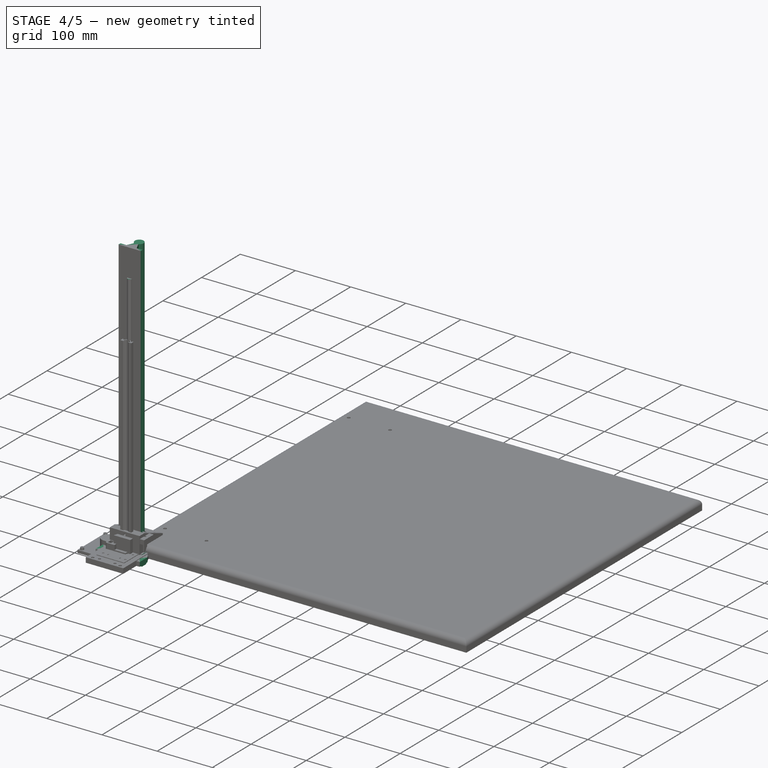
[diagram: stage 4 of 5 — iso view after this stage's code; geometry added in this stage tinted green]
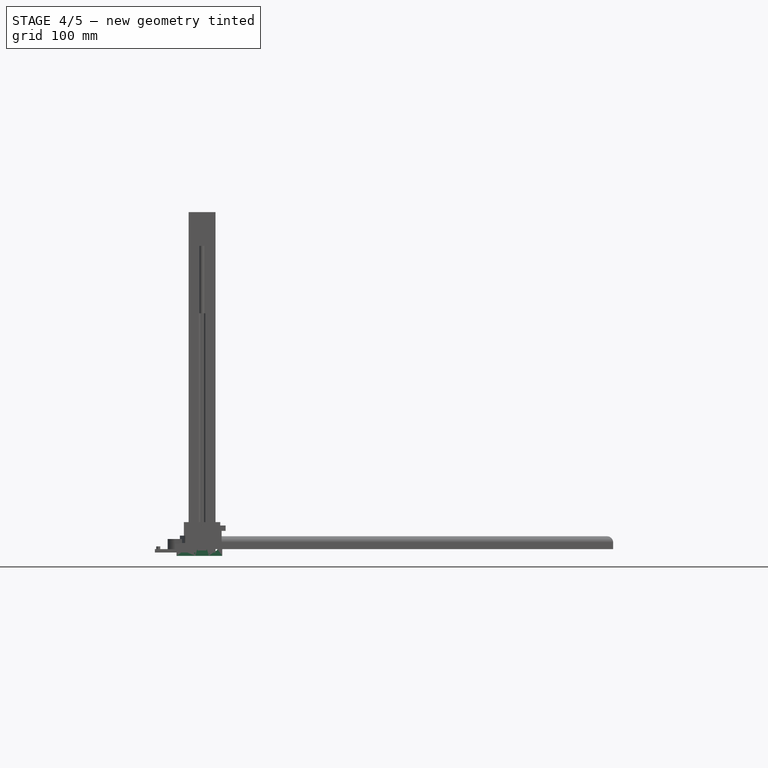
[diagram: stage 4 of 5 — front view after this stage's code; geometry added in this stage tinted green]
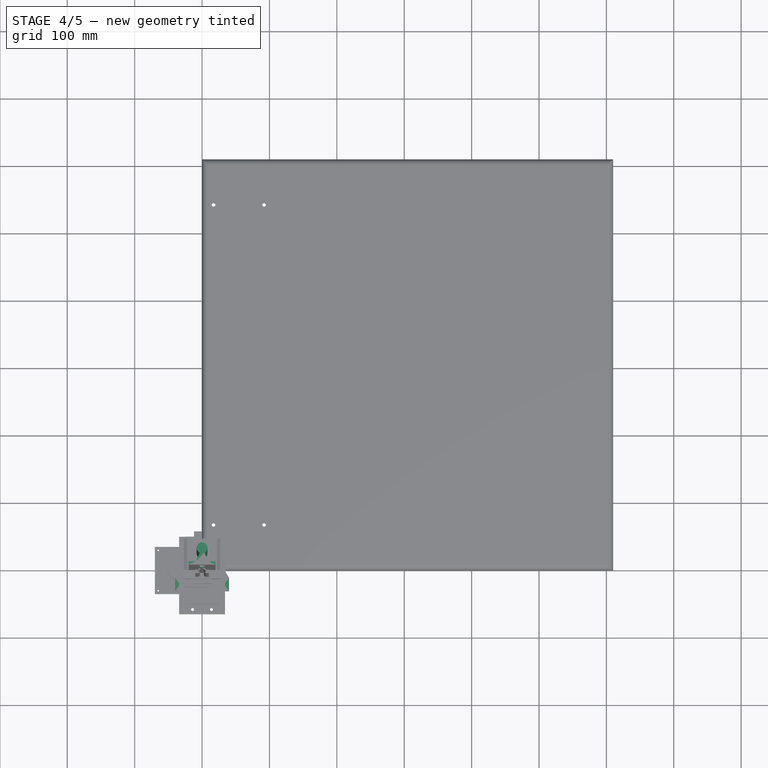
[diagram: stage 4 of 5 — top view after this stage's code; geometry added in this stage tinted green]
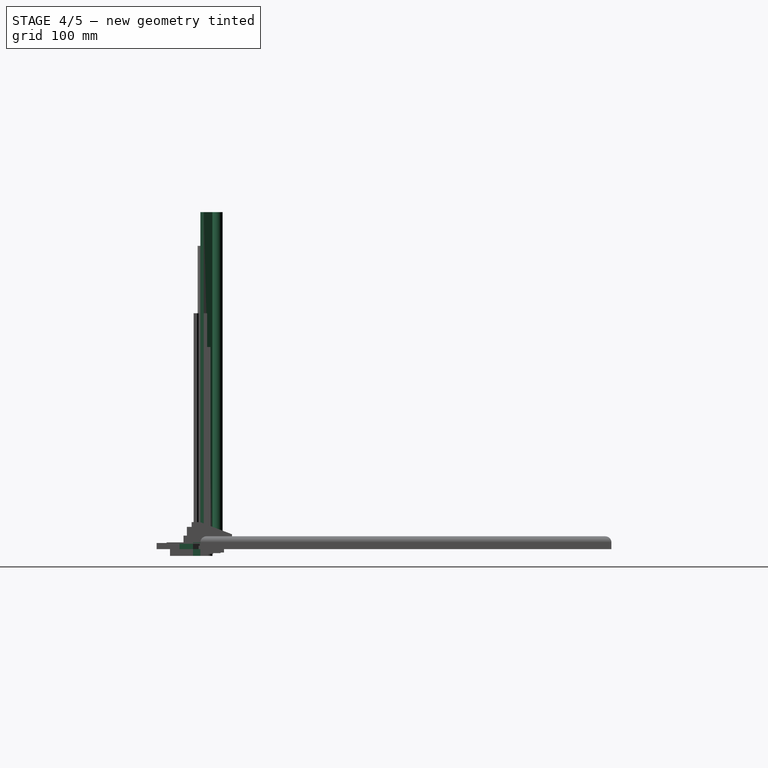
[diagram: stage 4 of 5 — right view after this stage's code; geometry added in this stage tinted green]
FEATURE [PartDesign::Body] Body_3
  Group = -> [LCS_0005,Sketch005,Pad003]
  Origin = -> Origin006
  Tip = -> Pad003
FEATURE [App::Part] SHAFT_1_0  label="SHAFT_1V0"
  Group = -> [LCS_0004,Body_3]
  Origin = -> Origin005
FEATURE [App::Link] SHAFT
  AssemblyType = Asm4EE
  AttachedBy = #LCS_0004
  AttachedTo = ROLLER_1_0001#LCS_0
  AttachmentOffset = pos=(0,0,-20) rot=(0,0,1;0rad)
  LinkPlacement = pos=(474.5,150.5,336.7) rot=(-0.707107,0,0.707107;3.14159rad)
  LinkedObject = -> SHAFT_1_0
  Placement = pos=(474.5,150.5,336.7) rot=(-0.707107,0,0.707107;3.14159rad)
  expr: Placement = ROLLER_1_0001.Placement * LCS_0.Placement * AttachmentOffset * LCS_0004.Placement ^ -1
FEATURE [PartDesign::CoordinateSystem] LCS_0038
  AttacherType = Attacher::AttachEngine3D
  MapMode = 2
  Support = -> [X_Axis043]
FEATURE [PartDesign::CoordinateSystem] LCS_0039
  AttacherType = Attacher::AttachEngine3D
  MapMode = 2
  Support = -> [X_Axis044]
FEATURE [Sketcher::SketchObject] Sketch048
  FullyConstrained = true
  MapMode = 5
  Support = -> [XY_Plane044]
  sketch-geometry (22):
    g0: Circle CenterX=0 CenterY=0 CenterZ=0 NormalX=0 NormalY=0 NormalZ=1 AngleXU=0 Radius=11.25
    g1: Circle CenterX=0 CenterY=0 CenterZ=0 NormalX=0 NormalY=0 NormalZ=1 AngleXU=0 Radius=21.9203
    g2: LineSegment StartX=-15.5 StartY=15.5 StartZ=0 EndX=15.5 EndY=15.5 EndZ=0
    g3: LineSegment StartX=15.5 StartY=15.5 StartZ=0 EndX=15.5 EndY=-15.5 EndZ=0
    g4: LineSegment StartX=15.5 StartY=-15.5 StartZ=0 EndX=-15.5 EndY=-15.5 EndZ=0
    g5: LineSegment StartX=-15.5 StartY=-15.5 StartZ=0 EndX=-15.5 EndY=15.5 EndZ=0
    g6: Circle CenterX=-15.5 CenterY=15.5 CenterZ=0 NormalX=0 NormalY=0 NormalZ=1 AngleXU=0 Radius=1.75
    g7: Circle CenterX=15.5 CenterY=15.5 CenterZ=0 NormalX=0 NormalY=0 NormalZ=1 AngleXU=0 Radius=1.75
    g8: Circle CenterX=15.5 CenterY=-15.5 CenterZ=0 NormalX=0 NormalY=0 NormalZ=1 AngleXU=0 Radius=1.75
    g9: Circle CenterX=-15.5 CenterY=-15.5 CenterZ=0 NormalX=0 NormalY=0 NormalZ=1 AngleXU=0 Radius=1.75
    g10: LineSegment StartX=40 StartY=-31 StartZ=0 EndX=-40 EndY=-31 EndZ=0
    g11: LineSegment StartX=-21.15 StartY=21.15 StartZ=0 EndX=21.15 EndY=21.15 EndZ=0
    g12: LineSegment StartX=21.15 StartY=21.15 StartZ=0 EndX=21.15 EndY=-21.15 EndZ=0
    g13: LineSegment StartX=21.15 StartY=-21.15 StartZ=0 EndX=-21.15 EndY=-21.15 EndZ=0
    g14: LineSegment StartX=-21.15 StartY=-21.15 StartZ=0 EndX=-21.15 EndY=21.15 EndZ=0
    g15: Circle CenterX=-30 CenterY=-21 CenterZ=0 NormalX=0 NormalY=0 NormalZ=1 AngleXU=0 Radius=2.75
    g16: Circle CenterX=30 CenterY=-21 CenterZ=0 NormalX=0 NormalY=0 NormalZ=1 AngleXU=0 Radius=2.75
    g17: LineSegment StartX=-40 StartY=-31 StartZ=0 EndX=-40 EndY=-11 EndZ=0
    g18: LineSegment StartX=-40 StartY=-11 StartZ=0 EndX=-21 EndY=21 EndZ=0
    g19: LineSegment StartX=21 StartY=21 StartZ=0 EndX=40 EndY=-11 EndZ=0
    g20: LineSegment StartX=40 StartY=-11 StartZ=0 EndX=40 EndY=-31 EndZ=0
    g21: LineSegment StartX=-21 StartY=21 StartZ=0 EndX=21 EndY=21 EndZ=0
  constraints (55):
    c: Coincident(g0,g-1)
    c: Diameter(g0) = 22.5
    c: Coincident(g1,g0)
    c: Coincident(g2,g3)
    c: Coincident(g3,g4)
    c: Coincident(g4,g5)
    c: Coincident(g5,g2)
    c: Horizontal(g2)
    c: Horizontal(g4)
    c: Vertical(g3)
    c: Vertical(g5)
    c: PointOnObject(g2,g1)
    c: PointOnObject(g3,g1)
    c: Equal(g3,g2)
    c: PointOnObject(g2,g1)
    c: Coincident(g6,g2)
    c: Coincident(g7,g2)
    c: Coincident(g8,g3)
    c: Coincident(g9,g4)
    c: Diameter(g9) = 3.5
    c: Equal(g9,g8)
    c: Equal(g9,g7)
    c: Equal(g9,g6)
    c: DistanceY(g3,g3) = 31
    c: Coincident(g11,g12)
    c: Coincident(g12,g13)
    c: Coincident(g13,g14)
    c: Coincident(g14,g11)
    c: Horizontal(g11)
    c: Vertical(g14)
    c: Symmetric(g13,g12,g-2)
    c: Symmetric(g12,g11,g-1)
    c: Equal(g12,g13)
    c: DistanceX(g11,g11) = 42.3
    c: DistanceY(g10,g-1) = 31
    c: Symmetric(g19,g18,g-2)
    c: DistanceX(g18,g19) = 42
    c: Diameter(g16) = 5.5
    c: Equal(g16,g15)
    c: Symmetric(g15,g16,g-2)
    c: DistanceX(g15,g16) = 60
    c: DistanceY(g10,g16) = 10
    c: Coincident(g10,g17)
    c: Vertical(g17)
    c: Coincident(g17,g18)
    c: Coincident(g19,g20)
    c: Coincident(g20,g10)
    c: Vertical(g20)
    c: Coincident(g21,g18)
    c: Coincident(g21,g19)
    c: DistanceY(g-1,g19) = 21
    c: DistanceX(g10,g10) = 80
    c: Symmetric(g10,g10,g-2)
    c: DistanceY(g17,g17) = 20
    c: Horizontal(g17,g19)
FEATURE [PartDesign::Pad] Pad036
  Direction = (1,1,1)
  Length = 8
  Length2 = 100
  Profile = -> Sketch048
  Refine = true
  Type = 0
FEATURE [PartDesign::CoordinateSystem] LCS_0040
  AttacherType = Attacher::AttachEngine3D
  MapMode = 2
  Support = -> [X_Axis045]
FEATURE [PartDesign::CoordinateSystem] LCS_0041
  AttacherType = Attacher::AttachEngine3D
  MapMode = 2
  Support = -> [X_Axis046]
FEATURE [Sketcher::SketchObject] Sketch051
  FullyConstrained = true
  MapMode = 5
  Support = -> [XY_Plane046]
  sketch-geometry (1):
    g0: Circle CenterX=0 CenterY=0 CenterZ=0 NormalX=0 NormalY=0 NormalZ=1 AngleXU=0 Radius=4
  constraints (2):
    c: Coincident(g0,g-1)
    c: Diameter(g0) = 8
FEATURE [PartDesign::Pad] Pad037
  Direction = (1,1,1)
  Length = 450
  Length2 = 100
  Profile = -> Sketch051
  Refine = true
  Type = 0
FEATURE [PartDesign::Body] Body_019
  Group = -> [LCS_0055,Sketch074,Pad049,Sketch075,Pocket021]
  Origin = -> Origin061
  Tip = -> Pocket021
FEATURE [App::Part] LC_BRACKET_1_0  label="LC_BRACK_1V0"
  Group = -> [LCS_0051,loadCell,Body_019]
  Origin = -> Origin057
FEATURE [App::Link] LC_BRACKET_B  label="LC_BRACKET_A"
  AssemblyType = Asm4EE
  AttachedBy = #LCS_0053
  AttachedTo = ROLLER_BRACKET_2#LCS_0049
  AttachmentOffset = pos=(0,35,0) rot=(0,-0.707107,0.707107;3.14159rad)
  LinkPlacement = pos=(241.5,150.5,371.7) rot=(0.707107,-0.707107,0;3.14159rad)
  LinkedObject = -> LC_BRACKET_1_0002
  Placement = pos=(241.5,150.5,371.7) rot=(0.707107,-0.707107,0;3.14159rad)
  expr: Placement = ROLLER_BRACKET_2.Placement * LCS_0049.Placement * AttachmentOffset * LCS_0053.Placement ^ -1
FEATURE [Sketcher::SketchObject] Sketch080
  FullyConstrained = true
  MapMode = 5
  Support = -> [XY_Plane066]
  sketch-geometry (29):
    g0: ArcOfCircle CenterX=0 CenterY=0 CenterZ=0 NormalX=0 NormalY=0 NormalZ=1 AngleXU=0 Radius=5.5 StartAngle=4.2508 EndAngle=5.17398
    g1: LineSegment StartX=-5.65685 StartY=5.65685 StartZ=0 EndX=5.65685 EndY=5.65685 EndZ=0
    g2: LineSegment StartX=5.65685 StartY=5.65685 StartZ=0 EndX=5.65685 EndY=-5.65685 EndZ=0
    g3: LineSegment StartX=5.65685 StartY=-5.65685 StartZ=0 EndX=-5.65685 EndY=-5.65685 EndZ=0
    g4: LineSegment StartX=-5.65685 StartY=-5.65685 StartZ=0 EndX=-5.65685 EndY=5.65685 EndZ=0
    g5: ArcOfCircle CenterX=-5.65685 CenterY=5.65685 CenterZ=0 NormalX=0 NormalY=0 NormalZ=1 AngleXU=0 Radius=1.75 StartAngle=0.785398 EndAngle=3.92699
    g6: ArcOfCircle CenterX=5.65685 CenterY=5.65685 CenterZ=0 NormalX=0 NormalY=0 NormalZ=1 AngleXU=0 Radius=1.75 StartAngle=5.49779 EndAngle=8.63938
    g7: ArcOfCircle CenterX=5.65685 CenterY=-5.65685 CenterZ=0 NormalX=0 NormalY=0 NormalZ=1 AngleXU=0 Radius=1.75 StartAngle=3.92699 EndAngle=7.06858
    g8: ArcOfCircle CenterX=-5.65685 CenterY=-5.65685 CenterZ=0 NormalX=0 NormalY=0 NormalZ=1 AngleXU=0 Radius=1.75 StartAngle=2.35619 EndAngle=5.49779
    g9: Circle CenterX=0 CenterY=0 CenterZ=0 NormalX=0 NormalY=0 NormalZ=1 AngleXU=0 Radius=8
    g10: LineSegment StartX=-6.89429 StartY=4.41942 StartZ=0 EndX=-4.92441 EndY=2.44953 EndZ=0
    g11: LineSegment StartX=6.89429 StartY=-4.41942 StartZ=0 EndX=4.92441 EndY=-2.44953 EndZ=0
    g12: LineSegment StartX=4.41942 StartY=6.89429 StartZ=0 EndX=2.44953 EndY=4.92441 EndZ=0
    g13: LineSegment StartX=-4.41942 StartY=-6.89429 StartZ=0 EndX=-2.44953 EndY=-4.92441 EndZ=0
    g14: ArcOfCircle CenterX=0 CenterY=0 CenterZ=0 NormalX=0 NormalY=0 NormalZ=1 AngleXU=0 Radius=5.5 StartAngle=2.68001 EndAngle=3.60318
    g15: ArcOfCircle CenterX=0 CenterY=0 CenterZ=0 NormalX=0 NormalY=0 NormalZ=1 AngleXU=0 Radius=5.5 StartAngle=1.10921 EndAngle=2.03238
    g16: ArcOfCircle CenterX=0 CenterY=0 CenterZ=0 NormalX=0 NormalY=0 NormalZ=1 AngleXU=0 Radius=5.5 StartAngle=5.8216 EndAngle=6.74477
    g17: LineSegment StartX=2.44953 StartY=-4.92441 StartZ=0 EndX=4.41942 EndY=-6.89429 EndZ=0
    g18: LineSegment StartX=4.92441 StartY=2.44953 StartZ=0 EndX=6.89429 EndY=4.41942 EndZ=0
    g19: LineSegment StartX=-2.44953 StartY=4.92441 StartZ=0 EndX=-4.41942 EndY=6.89429 EndZ=0
    g20: LineSegment StartX=-4.92441 StartY=-2.44953 StartZ=0 EndX=-6.89429 EndY=-4.41942 EndZ=0
    g21: LineSegment StartX=12 StartY=30 StartZ=0 EndX=12 EndY=-30 EndZ=0
    g22: LineSegment StartX=12 StartY=30 StartZ=0 EndX=2 EndY=30 EndZ=0
    g23: LineSegment StartX=2 StartY=-30 StartZ=0 EndX=12 EndY=-30 EndZ=0
    g24: ArcOfCircle CenterX=0 CenterY=0 CenterZ=0 NormalX=0 NormalY=0 NormalZ=1 AngleXU=0 Radius=15 StartAngle=1.5708 EndAngle=4.71239
    g25: LineSegment StartX=9e-16 StartY=15 StartZ=0 EndX=2 EndY=15 EndZ=0
    g26: LineSegment StartX=2 StartY=15 StartZ=0 EndX=2 EndY=30 EndZ=0
    g27: LineSegment StartX=-2.8e-15 StartY=-15 StartZ=0 EndX=2 EndY=-15 EndZ=0
    g28: LineSegment StartX=2 StartY=-15 StartZ=0 EndX=2 EndY=-30 EndZ=0
  constraints (74):
    c: Coincident(g0,g-1)
    c: Coincident(g1,g2)
    c: Coincident(g2,g3)
    c: Coincident(g3,g4)
    c: Coincident(g4,g1)
    c: Horizontal(g1)
    c: Horizontal(g3)
    c: Vertical(g2)
    c: Vertical(g4)
    c: Coincident(g5,g1)
    c: Coincident(g6,g1)
    c: Coincident(g7,g2)
    c: Coincident(g8,g3)
    c: Coincident(g9,g0)
    c: PointOnObject(g6,g9)
    c: Diameter(g9) = 16
    c: Diameter(g6) = 3.5
    c: Equal(g6,g5)
    c: Equal(g6,g8)
    c: Equal(g6,g7)
    c: PointOnObject(g5,g9)
    c: PointOnObject(g8,g9)
    c: Equal(g1,g4)
    c: Diameter(g0) = 11
    c: Tangent(g5,g10) = -1.5708
    c: Tangent(g8,g13) = -1.5708
    c: Tangent(g11,g7) = -1.5708
    c: PointOnObject(g14,g12)
    c: Equal(g0,g14)
    c: PointOnObject(g15,g11)
    c: Coincident(g0,g14)
    c: Equal(g0,g15)
    c: PointOnObject(g16,g13)
    c: Coincident(g0,g15)
    c: Equal(g0,g16)
    c: Coincident(g0,g16)
    c: Coincident(g17,g0)
    c: Tangent(g10,g17)
    c: Coincident(g13,g0)
    c: Tangent(g13,g18)
    c: Tangent(g11,g19)
    c: PointOnObject(g18,g16)
    c: Coincident(g11,g16)
    c: Coincident(g12,g15)
    c: Tangent(g12,g20)
    c: PointOnObject(g19,g15)
    c: Coincident(g10,g14)
    c: PointOnObject(g20,g14)
    c: Tangent(g6,g18) = -1.5708
    c: Tangent(g5,g19) = -1.5708
    c: Tangent(g8,g20) = -1.5708
    c: Tangent(g7,g17) = -1.5708
    c: Tangent(g6,g12) = -1.5708
    c: Symmetric(g21,g21,g-1)
    c: Coincident(g21,g22)
    c: Horizontal(g22)
    c: Coincident(g23,g21)
    c: Horizontal(g23)
    c: DistanceX(g-1,g21) = 12
    c: Coincident(g24,g0)
    c: PointOnObject(g24,g-2)
    c: PointOnObject(g24,g-2)
    c: Tangent(g24,g25) = 1.5708
    c: Coincident(g25,g26)
    c: Tangent(g24,g27) = -1.5708
    c: Coincident(g27,g28)
    c: DistanceY(g21,g21) = 60
    c: Vertical(g26)
    c: Vertical(g25,g27)
    c: Vertical(g28)
    c: Coincident(g23,g28)
    c: Coincident(g22,g26)
    c: Diameter(g24) = 30
    c: DistanceX(g22,g22) = 10
FEATURE [PartDesign::CoordinateSystem] LCS_0059
  AttacherType = Attacher::AttachEngine3D
  MapMode = 2
  Support = -> [X_Axis065]
FEATURE [PartDesign::CoordinateSystem] LCS_0060
  AttacherType = Attacher::AttachEngine3D
  MapMode = 2
  Support = -> [X_Axis066]
FEATURE [PartDesign::Pad] Pad052
  Direction = (1,1,1)
  Length = 12
  Length2 = 100
  Midplane = true
  Profile = -> Sketch080
  Refine = true
  Type = 0
FEATURE [App::Link] BASE_1
  AssemblyType = Asm4EE
  AttachedBy = #LCS_0063
  AttachedTo = Parent Assembly#LCS_Origin
  LinkedObject = -> BASE_1_0
  expr: Placement = LCS_Origin.Placement * AttachmentOffset * LCS_0063.Placement ^ -1
FEATURE [Sketcher::SketchObject] Sketch092
  FullyConstrained = true
  MapMode = 5
  Support = -> [XY_Plane075]
  sketch-geometry (1):
    g0: Circle CenterX=0 CenterY=0 CenterZ=0 NormalX=0 NormalY=0 NormalZ=1 AngleXU=0 Radius=4
  constraints (2):
    c: Coincident(g0,g-1)
    c: Diameter(g0) = 8
FEATURE [PartDesign::CoordinateSystem] LCS_0069
  AttacherType = Attacher::AttachEngine3D
  MapMode = 2
  Support = -> [X_Axis076]
FEATURE [PartDesign::CoordinateSystem] LCS_0070
  AttacherType = Attacher::AttachEngine3D
  MapMode = 2
  Support = -> [X_Axis075]
FEATURE [PartDesign::Pad] Pad059
  Direction = (1,1,1)
  Length = 450
  Length2 = 100
  Profile = -> Sketch092
  Refine = true
  Type = 0
FEATURE [PartDesign::Body] Body007
  Group = -> [Sketch100,Pad063]
  Origin = -> Origin079
  Tip = -> Pad063
FEATURE [App::Part] BAR_A_1_005  label="BAR_A_1V0"
  Group = -> [LCS_0073,Body007]
  Origin = -> Origin080
FEATURE [App::Link] BAR_E_1  label="BAR_A_1"
  AssemblyType = Asm4EE
  AttachedBy = #LCS_0073
  AttachedTo = AL_BRACKET_A_1#LCS_0
  AttachmentOffset = pos=(10,0,0) rot=(0,-0.707107,-0.707107;3.14159rad)
  LinkPlacement = pos=(135,67.5,19) rot=(0,0,-1;3.14159rad)
  LinkedObject = -> BAR_A_1_005
  Placement = pos=(135,67.5,19) rot=(0,0,-1;3.14159rad)
  expr: Placement = AL_BRACKET_A_1.Placement * AL_BRACKET_A#LCS_0.Placement * AttachmentOffset * LCS_0073.Placement ^ -1
FEATURE [App::Link] BAR_E_2  label="BAR_A_2"
  AssemblyType = Asm4EE
  AttachedBy = #LCS_0073
  AttachedTo = AL_BRACKET_A_2#LCS_0
  AttachmentOffset = pos=(10,0,0) rot=(1,0,0;4.71239rad)
  LinkPlacement = pos=(135,542.5,19) rot=(0,0,1;0rad)
  LinkedObject = -> BAR_A_1_005
  Placement = pos=(135,542.5,19) rot=(0,0,1;0rad)
  expr: Placement = AL_BRACKET_A_2.Placement * AL_BRACKET_A#LCS_0.Placement * AttachmentOffset * LCS_0073.Placement ^ -1
FEATURE [PartDesign::CoordinateSystem] LCS_0074
  AttacherType = Attacher::AttachEngine3D
  MapMode = 2
  Support = -> [X_Axis081]
FEATURE [PartDesign::CoordinateSystem] LCS_0075
  AttacherType = Attacher::AttachEngine3D
  MapMode = 2
  Support = -> [X_Axis082]
FEATURE [Sketcher::SketchObject] Sketch101
  FullyConstrained = true
  MapMode = 5
  Support = -> [XY_Plane082]
  sketch-geometry (8):
    g0: LineSegment StartX=-20 StartY=0 StartZ=0 EndX=20 EndY=0 EndZ=0
    g1: LineSegment StartX=20 StartY=0 StartZ=0 EndX=20 EndY=5 EndZ=0
    g2: LineSegment StartX=20 StartY=5 StartZ=0 EndX=9.25 EndY=5 EndZ=0
    g3: LineSegment StartX=9.25 StartY=5 StartZ=0 EndX=3.48712 EndY=17.8 EndZ=0
    g4: LineSegment StartX=-3.48712 StartY=17.8 StartZ=0 EndX=-9.25 EndY=5 EndZ=0
    g5: LineSegment StartX=-9.25 StartY=5 StartZ=0 EndX=-20 EndY=5 EndZ=0
    g6: LineSegment StartX=-20 StartY=5 StartZ=0 EndX=-20 EndY=0 EndZ=0
    g7: ArcOfCircle CenterX=-3.9e-15 CenterY=25 CenterZ=0 NormalX=0 NormalY=0 NormalZ=1 AngleXU=0 Radius=8 StartAngle=5.16342 EndAngle=10.5445
  constraints (22):
    c: PointOnObject(g0,g-1)
    c: Coincident(g0,g1)
    c: Vertical(g1)
    c: Coincident(g1,g2)
    c: Horizontal(g2)
    c: Coincident(g2,g3)
    c: Coincident(g4,g5)
    c: Coincident(g5,g6)
    c: Coincident(g6,g0)
    c: Vertical(g6)
    c: Horizontal(g5)
    c: Coincident(g7,g4)
    c: Coincident(g7,g3)
    c: Symmetric(g4,g3,g-2)
    c: Diameter(g7) = 16
    c: DistanceY(g-1,g7) = 25
    c: DistanceY(g-1,g4) = 17.8
    c: DistanceY(g6,g6) = 5
    c: Symmetric(g0,g0,g-2)
    c: DistanceX(g0,g0) = 40
    c: DistanceX(g4,g2) = 18.5
    c: Symmetric(g4,g2,g-2)
FEATURE [PartDesign::Pad] Pad064
  Direction = (1,1,1)
  Length = 500
  Length2 = 100
  Profile = -> Sketch101
  Refine = true
  Type = 0
FEATURE [PartDesign::Body] Body008
  Group = -> [Sketch105,Pad066]
  Origin = -> Origin086
  Tip = -> Pad066
FEATURE [App::Part] BAR_A_1_006  label="BAR_B_1V0"
  Group = -> [LCS_0078,Body008]
  Origin = -> Origin085
FEATURE [App::Link] BAR_F_1  label="BAR_B_1"
  AssemblyType = Asm4EE
  AttachedBy = #LCS_0078
  AttachedTo = AL_BRACKET_3#LCS_0
  AttachmentOffset = pos=(0,-10,0) rot=(0,1,0;1.5708rad)
  LinkPlacement = pos=(190,149,418.4) rot=(-0.57735,0.57735,-0.57735;2.0944rad)
  LinkedObject = -> BAR_A_1_006
  Placement = pos=(190,149,418.4) rot=(-0.57735,0.57735,-0.57735;2.0944rad)
  expr: Placement = AL_BRACKET_3.Placement * AL_BRACKET#LCS_0.Placement * AttachmentOffset * LCS_0078.Placement ^ -1
FEATURE [PartDesign::CoordinateSystem] LCS_0079
  AttacherType = Attacher::AttachEngine3D
  MapMode = 2
  Support = -> [X_Axis087]
FEATURE [PartDesign::CoordinateSystem] LCS_0080
  AttacherType = Attacher::AttachEngine3D
  MapMode = 2
  Support = -> [X_Axis088]
FEATURE [Sketcher::SketchObject] Sketch106
  FullyConstrained = true
  MapMode = 5
  Support = -> [XY_Plane088]
  sketch-geometry (8):
    g0: LineSegment StartX=-38 StartY=0 StartZ=0 EndX=-38 EndY=-11 EndZ=0
    g1: LineSegment StartX=-38 StartY=-11 StartZ=0 EndX=-10 EndY=-11 EndZ=0
    g2: LineSegment StartX=-10 StartY=-11 StartZ=0 EndX=-10 EndY=-45 EndZ=0
    g3: LineSegment StartX=-10 StartY=-45 StartZ=0 EndX=10 EndY=-45 EndZ=0
    g4: LineSegment StartX=10 StartY=-45 StartZ=0 EndX=10 EndY=-11 EndZ=0
    g5: LineSegment StartX=10 StartY=-11 StartZ=0 EndX=30 EndY=-11 EndZ=0
    g6: LineSegment StartX=30 StartY=-11 StartZ=0 EndX=30 EndY=0 EndZ=0
    g7: LineSegment StartX=-38 StartY=0 StartZ=0 EndX=30 EndY=0 EndZ=0
  constraints (23):
    c: PointOnObject(g0,g-1)
    c: Vertical(g0)
    c: Coincident(g0,g1)
    c: Horizontal(g1)
    c: Coincident(g1,g2)
    c: Vertical(g2)
    c: Coincident(g2,g3)
    c: Horizontal(g3)
    c: DistanceX(g3,g3) = 20
    c: DistanceY(g0,g0) = 11
    c: DistanceY(g2,g2) = 34
    c: Coincident(g3,g4)
    c: Vertical(g4)
    c: Coincident(g4,g5)
    c: Horizontal(g5)
    c: Coincident(g5,g6)
    c: Vertical(g6)
    c: Coincident(g7,g0)
    c: Coincident(g7,g6)
    c: DistanceX(g7,g7) = 68
    c: Symmetric(g1,g4,g-2)
    c: DistanceX(g5,g5) = 20
    c: Horizontal(g7)
FEATURE [PartDesign::Pad] Pad067
  Direction = (1,1,1)
  Length = 20
  Length2 = 100
  Midplane = true
  Profile = -> Sketch106
  Refine = true
  Type = 0
FEATURE [App::Link] MTR_BRACKET_Z
  AssemblyType = Asm4EE
  AttachedBy = #LCS_0083
  AttachedTo = RAIL_Z_1V0001#LCS_0089
  AttachmentOffset = pos=(0,8,452.5) rot=(0,0,1;0rad)
  LinkPlacement = pos=(176,125,502.9) rot=(0,0,-1;1.5708rad)
  LinkedObject = -> MTR_BRACKET_Z_1V0
  Placement = pos=(176,125,502.9) rot=(0,0,-1;1.5708rad)
  expr: Placement = RAIL_Z_1V0001.Placement * LCS_0089.Placement * AttachmentOffset * LCS_0083.Placement ^ -1
FEATURE [App::Link] MTR_17HS15_1504S_Z
  AssemblyType = Asm4EE
  AttachedBy = #LCS_0
  AttachedTo = MTR_BRACKET_Z#LCS_0083
  AttachmentOffset = pos=(0,26,22) rot=(0,0,1;0rad)
  LinkPlacement = pos=(202,125,524.9) rot=(0,0,-1;1.5708rad)
  LinkedObject = -> <external MTR_17HS15_1504S.FCStd>#Part
  Placement = pos=(202,125,524.9) rot=(0,0,-1;1.5708rad)
  expr: Placement = MTR_BRACKET_Z.Placement * LCS_0083.Placement * AttachmentOffset * MTR_17HS15_1504S#LCS_0.Placement ^ -1
FEATURE [App::Link] LEAD_SCREW_Z
  AssemblyType = Asm4EE
  AttachedBy = #LCS_0040
  AttachedTo = MTR_17HS15_1504S_Z#LCS_0
  AttachmentOffset = pos=(0,0,-25) rot=(1,0,0;3.14159rad)
  LinkPlacement = pos=(202,125,499.9) rot=(0.707107,-0.707107,0;3.14159rad)
  LinkedObject = -> LEAD_SCREW_A_1_0
  Placement = pos=(202,125,499.9) rot=(0.707107,-0.707107,0;3.14159rad)
  expr: Placement = MTR_17HS15_1504S_Z.Placement * MTR_17HS15_1504S#LCS_0.Placement * AttachmentOffset * LCS_0040.Placement ^ -1
FEATURE [Sketcher::SketchObject] Sketch115
  FullyConstrained = true
  MapMode = 5
  Support = -> [XY_Plane093]
  sketch-geometry (25):
    g0: ArcOfCircle CenterX=0 CenterY=0 CenterZ=0 NormalX=0 NormalY=0 NormalZ=1 AngleXU=0 Radius=5.5 StartAngle=4.2508 EndAngle=5.17398
    g1: LineSegment StartX=-5.65685 StartY=5.65685 StartZ=0 EndX=5.65685 EndY=5.65685 EndZ=0
    g2: LineSegment StartX=5.65685 StartY=5.65685 StartZ=0 EndX=5.65685 EndY=-5.65685 EndZ=0
    g3: LineSegment StartX=5.65685 StartY=-5.65685 StartZ=0 EndX=-5.65685 EndY=-5.65685 EndZ=0
    g4: LineSegment StartX=-5.65685 StartY=-5.65685 StartZ=0 EndX=-5.65685 EndY=5.65685 EndZ=0
    g5: ArcOfCircle CenterX=-5.65685 CenterY=5.65685 CenterZ=0 NormalX=0 NormalY=0 NormalZ=1 AngleXU=0 Radius=1.75 StartAngle=0.785398 EndAngle=3.92699
    g6: ArcOfCircle CenterX=5.65685 CenterY=5.65685 CenterZ=0 NormalX=0 NormalY=0 NormalZ=1 AngleXU=0 Radius=1.75 StartAngle=5.49779 EndAngle=8.63938
    g7: ArcOfCircle CenterX=5.65685 CenterY=-5.65685 CenterZ=0 NormalX=0 NormalY=0 NormalZ=1 AngleXU=0 Radius=1.75 StartAngle=3.92699 EndAngle=7.06858
    g8: ArcOfCircle CenterX=-5.65685 CenterY=-5.65685 CenterZ=0 NormalX=0 NormalY=0 NormalZ=1 AngleXU=0 Radius=1.75 StartAngle=2.35619 EndAngle=5.49779
    g9: Circle CenterX=0 CenterY=0 CenterZ=0 NormalX=0 NormalY=0 NormalZ=1 AngleXU=0 Radius=8
    g10: LineSegment StartX=-6.89429 StartY=4.41942 StartZ=0 EndX=-4.92441 EndY=2.44953 EndZ=0
    g11: LineSegment StartX=6.89429 StartY=-4.41942 StartZ=0 EndX=4.92441 EndY=-2.44953 EndZ=0
    g12: LineSegment StartX=4.41942 StartY=6.89429 StartZ=0 EndX=2.44953 EndY=4.92441 EndZ=0
    g13: LineSegment StartX=-4.41942 StartY=-6.89429 StartZ=0 EndX=-2.44953 EndY=-4.92441 EndZ=0
    g14: ArcOfCircle CenterX=0 CenterY=0 CenterZ=0 NormalX=0 NormalY=0 NormalZ=1 AngleXU=0 Radius=5.5 StartAngle=2.68001 EndAngle=3.60318
    g15: ArcOfCircle CenterX=0 CenterY=0 CenterZ=0 NormalX=0 NormalY=0 NormalZ=1 AngleXU=0 Radius=5.5 StartAngle=1.10921 EndAngle=2.03238
    g16: ArcOfCircle CenterX=0 CenterY=0 CenterZ=0 NormalX=0 NormalY=0 NormalZ=1 AngleXU=0 Radius=5.5 StartAngle=5.8216 EndAngle=6.74477
    g17: LineSegment StartX=2.44953 StartY=-4.92441 StartZ=0 EndX=4.41942 EndY=-6.89429 EndZ=0
    g18: LineSegment StartX=4.92441 StartY=2.44953 StartZ=0 EndX=6.89429 EndY=4.41942 EndZ=0
    g19: LineSegment StartX=-2.44953 StartY=4.92441 StartZ=0 EndX=-4.41942 EndY=6.89429 EndZ=0
    g20: LineSegment StartX=-4.92441 StartY=-2.44953 StartZ=0 EndX=-6.89429 EndY=-4.41942 EndZ=0
    g21: LineSegment StartX=12 StartY=19 StartZ=0 EndX=12 EndY=-19 EndZ=0
    g22: LineSegment StartX=-12 StartY=19 StartZ=0 EndX=12 EndY=19 EndZ=0
    g23: LineSegment StartX=-12 StartY=-19 StartZ=0 EndX=12 EndY=-19 EndZ=0
    g24: LineSegment StartX=-12 StartY=19 StartZ=0 EndX=-12 EndY=-19 EndZ=0
  constraints (65):
    c: Coincident(g0,g-1)
    c: Coincident(g1,g2)
    c: Coincident(g2,g3)
    c: Coincident(g3,g4)
    c: Coincident(g4,g1)
    c: Horizontal(g1)
    c: Horizontal(g3)
    c: Vertical(g2)
    c: Vertical(g4)
    c: Coincident(g5,g1)
    c: Coincident(g6,g1)
    c: Coincident(g7,g2)
    c: Coincident(g8,g3)
    c: Coincident(g9,g0)
    c: PointOnObject(g6,g9)
    c: Diameter(g9) = 16
    c: Diameter(g6) = 3.5
    c: Equal(g6,g5)
    c: Equal(g6,g8)
    c: Equal(g6,g7)
    c: PointOnObject(g5,g9)
    c: PointOnObject(g8,g9)
    c: Equal(g1,g4)
    c: Diameter(g0) = 11
    c: Tangent(g5,g10) = -1.5708
    c: Tangent(g8,g13) = -1.5708
    c: Tangent(g11,g7) = -1.5708
    c: PointOnObject(g14,g12)
    c: Equal(g0,g14)
    c: PointOnObject(g15,g11)
    c: Coincident(g0,g14)
    c: Equal(g0,g15)
    c: PointOnObject(g16,g13)
    c: Coincident(g0,g15)
    c: Equal(g0,g16)
    c: Coincident(g0,g16)
    c: Coincident(g17,g0)
    c: Tangent(g10,g17)
    c: Coincident(g13,g0)
    c: Tangent(g13,g18)
    c: Tangent(g11,g19)
    c: PointOnObject(g18,g16)
    c: Coincident(g11,g16)
    c: Coincident(g12,g15)
    c: Tangent(g12,g20)
    c: PointOnObject(g19,g15)
    c: Coincident(g10,g14)
    c: PointOnObject(g20,g14)
    c: Tangent(g6,g18) = -1.5708
    c: Tangent(g5,g19) = -1.5708
    c: Tangent(g8,g20) = -1.5708
    c: Tangent(g7,g17) = -1.5708
    c: Tangent(g6,g12) = -1.5708
    c: Horizontal(g22)
    c: Coincident(g21,g23)
    c: Coincident(g21,g22)
    c: Symmetric(g21,g21,g-1)
    c: Horizontal(g23)
    c: DistanceX(g-1,g21) = 12
    c: Coincident(g24,g22)
    c: Coincident(g24,g23)
    c: Vertical(g24)
    c: DistanceX(g22,g-1) = 12
    c: DistanceY(g21,g21) = 38
    c: DistanceX(g7,g21) = 6.34315
FEATURE [PartDesign::Pad] Pad071
  Direction = (1,1,1)
  Length = 14
  Length2 = 100
  Midplane = true
  Profile = -> Sketch115
  Refine = true
  Type = 0
FEATURE [PartDesign::Body] Body_16
  Group = -> [LCS_0090,Sketch119,Pad073,Sketch120,Hole001,LinearPattern]
  Origin = -> Origin098
  Tip = -> LinearPattern
FEATURE [App::Part] RAIL_Z_1V0
  Group = -> [LCS_0089,Body_16]
  Origin = -> Origin097
FEATURE [App::Link] RAIL_Z_1V0001  label="RAIL_Z"
  AssemblyType = Asm4EE
  AttachedBy = #LCS_0089
  AttachedTo = CARRIAGE_PLATE_X_1001#LCS_0101
  AttachmentOffset = pos=(-25,0,10) rot=(-0.57735,-0.57735,-0.57735;4.18879rad)
  LinkPlacement = pos=(168,125,50.4) rot=(0,0,-1;1.5708rad)
  LinkedObject = -> RAIL_Z_1V0
  Placement = pos=(168,125,50.4) rot=(0,0,-1;1.5708rad)
  expr: Placement = CARRIAGE_PLATE_X_1001.Placement * LCS_0101.Placement * AttachmentOffset * LCS_0089.Placement ^ -1
FEATURE [PartDesign::CoordinateSystem] LCS_0091
  AttacherType = Attacher::AttachEngine3D
  MapMode = 2
  Support = -> [X_Axis099]
FEATURE [PartDesign::CoordinateSystem] LCS_0092
  AttacherType = Attacher::AttachEngine3D
  MapMode = 2
  Support = -> [X_Axis100]
FEATURE [Sketcher::SketchObject] Sketch121
  FullyConstrained = true
  MapMode = 5
  Support = -> [XY_Plane100]
  sketch-geometry (9):
    g0: LineSegment StartX=-7 StartY=11 StartZ=0 EndX=-7 EndY=5 EndZ=0
    g1: LineSegment StartX=-7 StartY=5 StartZ=0 EndX=-17 EndY=5 EndZ=0
    g2: LineSegment StartX=-17 StartY=5 StartZ=0 EndX=-17 EndY=0 EndZ=0
    g3: LineSegment StartX=-17 StartY=0 StartZ=0 EndX=17 EndY=0 EndZ=0
    g4: LineSegment StartX=17 StartY=0 StartZ=0 EndX=17 EndY=5 EndZ=0
    g5: LineSegment StartX=17 StartY=5 StartZ=0 EndX=7 EndY=5 EndZ=0
    g6: LineSegment StartX=7 StartY=5 StartZ=0 EndX=7 EndY=11 EndZ=0
    g7: ArcOfCircle CenterX=0 CenterY=11 CenterZ=0 NormalX=0 NormalY=0 NormalZ=1 AngleXU=0 Radius=7 StartAngle=0 EndAngle=3.14159
    g8: Circle CenterX=0 CenterY=11 CenterZ=0 NormalX=0 NormalY=0 NormalZ=1 AngleXU=0 Radius=4.25
  constraints (27):
    c: Coincident(g0,g1)
    c: Horizontal(g1)
    c: Coincident(g1,g2)
    c: PointOnObject(g2,g-1)
    c: Vertical(g2)
    c: Coincident(g2,g3)
    c: PointOnObject(g3,g-1)
    c: Coincident(g3,g4)
    c: Coincident(g4,g5)
    c: Coincident(g5,g6)
    c: Vertical(g6)
    c: PointOnObject(g7,g-2)
    c: Coincident(g7,g0)
    c: Coincident(g7,g6)
    c: Horizontal(g5)
    c: DistanceY(g2,g2) = 5
    c: Coincident(g8,g7)
    c: Diameter(g8) = 8.5
    c: Diameter(g7) = 14
    c: Horizontal(g0,g7)
    c: Horizontal(g7,g6)
    c: Vertical(g0)
    c: Vertical(g4)
    c: Equal(g4,g2)
    c: DistanceX(g1,g1) = 10
    c: Equal(g5,g1)
    c: DistanceY(g-1,g7) = 11
FEATURE [PartDesign::Pad] Pad074
  Direction = (1,1,1)
  Length = 20
  Length2 = 100
  Midplane = true
  Profile = -> Sketch121
  Refine = true
  Type = 0
FEATURE [Sketcher::SketchObject] Sketch122
  FullyConstrained = true
  MapMode = 5
  Placement = pos=(0,0,0) rot=(1,0,0;1.5708rad)
  Support = -> [XZ_Plane099]
  sketch-geometry (2):
    g0: Circle CenterX=-12 CenterY=0 CenterZ=0 NormalX=0 NormalY=0 NormalZ=1 AngleXU=0 Radius=2.75
    g1: Circle CenterX=12 CenterY=0 CenterZ=0 NormalX=0 NormalY=0 NormalZ=1 AngleXU=0 Radius=2.75
  constraints (5):
    c: PointOnObject(g0,g-1)
    c: Diameter(g1) = 5.5
    c: Equal(g1,g0)
    c: Symmetric(g0,g1,g-2)
    c: DistanceX(g0,g1) = 24
FEATURE [PartDesign::Pocket] Pocket039
  BaseFeature = -> Pad074
  Length = 5
  Length2 = 100
  Profile = -> Sketch122
  Refine = true
  Type = 1
FEATURE [App::Link] CARRIAGE_PLATE_Z
  AssemblyType = Asm4EE
  AttachedBy = #LCS_0093
  AttachedTo = CARRIAGE_MGN12H_2#LCS_0
  AttachmentOffset = pos=(0,22,25) rot=(0,-0.707107,0.707107;3.14159rad)
  LinkPlacement = pos=(190,125,380.4) rot=(-0.57735,-0.57735,0.57735;2.0944rad)
  LinkedObject = -> CARRIAGE_PLATE_Z_1V0
  Placement = pos=(190,125,380.4) rot=(-0.57735,-0.57735,0.57735;2.0944rad)
  expr: Placement = CARRIAGE_MGN12H_2.Placement * CARRIAGE_MGN12H#LCS_0.Placement * AttachmentOffset * LCS_0093.Placement ^ -1
FEATURE [App::Link] AL_BRACKET_4
  AssemblyType = Asm4EE
  AttachedBy = #LCS_0
  AttachedTo = CARRIAGE_PLATE_Z#LCS_0093
  AttachmentOffset = pos=(-24,-28,0) rot=(0,1,0;1.5708rad)
  LinkPlacement = pos=(190,101,408.4) rot=(-1,0,0;1.5708rad)
  LinkedObject = -> <external AL_BRACKET.FCStd>#Part
  Placement = pos=(190,101,408.4) rot=(-1,0,0;1.5708rad)
  expr: Placement = CARRIAGE_PLATE_Z.Placement * LCS_0093.Placement * AttachmentOffset * AL_BRACKET#LCS_0.Placement ^ -1
FEATURE [App::Link] BAR_F_2  label="BAR_B_2"
  AssemblyType = Asm4EE
  AttachedBy = #LCS_0078
  AttachedTo = AL_BRACKET_4#LCS_0
  AttachmentOffset = pos=(0,-10,0) rot=(0,1,0;1.5708rad)
  LinkPlacement = pos=(190,101,418.4) rot=(-0.57735,0.57735,-0.57735;2.0944rad)
  LinkedObject = -> BAR_A_1_006
  Placement = pos=(190,101,418.4) rot=(-0.57735,0.57735,-0.57735;2.0944rad)
  expr: Placement = AL_BRACKET_4.Placement * AL_BRACKET#LCS_0.Placement * AttachmentOffset * LCS_0078.Placement ^ -1
FEATURE [Sketcher::SketchObject] Sketch124
  FullyConstrained = true
  MapMode = 5
  Placement = pos=(0,0,0) rot=(1,0,0;1.5708rad)
  Support = -> [XZ_Plane087]
  sketch-geometry (4):
    g0: Circle CenterX=-28 CenterY=0 CenterZ=0 NormalX=0 NormalY=0 NormalZ=1 AngleXU=0 Radius=2.75
    g1: Circle CenterX=20 CenterY=0 CenterZ=0 NormalX=0 NormalY=0 NormalZ=1 AngleXU=0 Radius=2.75
    g2: Circle CenterX=-5 CenterY=0 CenterZ=0 NormalX=0 NormalY=0 NormalZ=1 AngleXU=0 Radius=2.25
    g3: Circle CenterX=5 CenterY=0 CenterZ=0 NormalX=0 NormalY=0 NormalZ=1 AngleXU=0 Radius=2.25
  constraints (11):
    c: PointOnObject(g0,g-1)
    c: PointOnObject(g1,g-1)
    c: PointOnObject(g2,g-1)
    c: Diameter(g3) = 4.5
    c: Equal(g3,g2)
    c: Symmetric(g2,g3,g-2)
    c: DistanceX(g2,g3) = 10
    c: DistanceX(g-1,g1) = 20
    c: DistanceX(g0,g1) = 48
    c: Diameter(g0) = 5.5
    c: Equal(g0,g1)
FEATURE [PartDesign::Pocket] Pocket040
  BaseFeature = -> Pad067
  Length = 5
  Length2 = 100
  Profile = -> Sketch124
  Refine = true
  Reversed = true
  Type = 1
FEATURE [PartDesign::Hole] Hole
  BaseFeature = -> Pad071
  Depth = 25
  DepthType = 0
  Diameter = 4.5
  DrillForDepth = false
  DrillPoint = 1
  DrillPointAngle = 118
  HoleCutCountersinkAngle = 90
  HoleCutCustomValues = false
  HoleCutDepth = 0
  HoleCutDiameter = 9
  HoleCutType = 7
  ModelActualThread = false
  Profile = -> Sketch117
  Refine = true
  Tapered = false
  TaperedAngle = 90
  ThreadAngle = 0
  ThreadClass = 0
  ThreadCutOffInner = 0
  ThreadCutOffOuter = 0
  ThreadDirection = 0
  ThreadFit = 0
  ThreadPitch = 0
  ThreadSize = 11
  ThreadType = 1
  Threaded = false
FEATURE [PartDesign::Body] Body_025
  Group = -> [LCS_0086,Sketch115,Pad071,Sketch117,Hole]
  Origin = -> Origin093
  Tip = -> Hole
FEATURE [App::Part] CARRIAGE_1_006  label="LEAD_NUT_BRACK_Z_1V0"
  Group = -> [LCS_0085,Body_025]
  Origin = -> Origin094
FEATURE [Sketcher::SketchObject] Sketch128
  FullyConstrained = true
  MapMode = 5
  Placement = pos=(0,0,0) rot=(0.57735,0.57735,0.57735;2.0944rad)
  Support = -> [YZ_Plane066]
  sketch-geometry (2):
    g0: Circle CenterX=-25 CenterY=0 CenterZ=0 NormalX=0 NormalY=0 NormalZ=1 AngleXU=0 Radius=1.75
    g1: Circle CenterX=25 CenterY=0 CenterZ=0 NormalX=0 NormalY=0 NormalZ=1 AngleXU=0 Radius=1.75
  constraints (5):
    c: PointOnObject(g0,g-1)
    c: Diameter(g0) = 3.5
    c: Equal(g0,g1)
    c: Symmetric(g0,g1,g-2)
    c: DistanceX(g0,g1) = 50
FEATURE [PartDesign::Pocket] Pocket044
  BaseFeature = -> Pad052
  Length = 5
  Length2 = 100
  Midplane = true
  Profile = -> Sketch128
  Refine = true
  Type = 1
FEATURE [PartDesign::CoordinateSystem] LCS_0101
  AttacherType = Attacher::AttachEngine3D
  MapMode = 2
  Support = -> [X_Axis110]
FEATURE [PartDesign::CoordinateSystem] LCS_0102
  AttacherType = Attacher::AttachEngine3D
  MapMode = 2
  Support = -> [X_Axis109]
FEATURE [App::Link] CARRIAGE_PLATE_X_1001  label="CARRIAGE_PLATE_X_1"
  AssemblyType = Asm4EE
  AttachedBy = #LCS_0101
  AttachedTo = CARRIAGE_MGN12H_3#LCS_0
  AttachmentOffset = pos=(0,13,-30) rot=(1,0,0;4.71239rad)
  LinkPlacement = pos=(158,125,75.4) rot=(0.707107,0,0.707107;3.14159rad)
  LinkedObject = -> CARRIAGE_PLATE_Z_1V001
  Placement = pos=(158,125,75.4) rot=(0.707107,0,0.707107;3.14159rad)
  expr: Placement = CARRIAGE_MGN12H_3.Placement * CARRIAGE_MGN12H#LCS_0.Placement * AttachmentOffset * LCS_0101.Placement ^ -1
FEATURE [App::Link] RAIL_X_2
  AssemblyType = Asm4EE
  AttachedBy = #LCS_0099
  AttachedTo = RAIL_X_1V0#LCS_0099
  AttachmentOffset = pos=(225,0,0) rot=(0,0,1;0rad)
  LinkPlacement = pos=(145,55,300.4) rot=(-0.57735,-0.57735,-0.57735;2.0944rad)
  LinkedObject = -> RAIL_Z_1V0002
  Placement = pos=(145,55,300.4) rot=(-0.57735,-0.57735,-0.57735;2.0944rad)
  expr: Placement = RAIL_X_1V0.Placement * LCS_0099.Placement * AttachmentOffset * LCS_0099.Placement ^ -1
  expr: .AttachmentOffset.Base.x = Variables.xRailSpace
FEATURE [App::Link] CARRIAGE_MGN12H_5
  AssemblyType = Asm4EE
  AttachedBy = #LCS_0
  AttachedTo = CARRIAGE_MGN12H_3#LCS_0
  AttachmentOffset = pos=(225,0,0) rot=(0,0,1;0rad)
  LinkPlacement = pos=(145,155,300.4) rot=(-0.57735,-0.57735,-0.57735;2.0944rad)
  LinkedObject = -> <external CARRIAGE_MGN12H.FCStd>#Part
  Placement = pos=(145,155,300.4) rot=(-0.57735,-0.57735,-0.57735;2.0944rad)
  expr: Placement = CARRIAGE_MGN12H_3.Placement * CARRIAGE_MGN12H#LCS_0.Placement * AttachmentOffset * CARRIAGE_MGN12H#LCS_0.Placement ^ -1
  expr: .AttachmentOffset.Base.x = Variables.xRailSpace
FEATURE [App::Link] CARRIAGE_MGN12H_6
  AssemblyType = Asm4EE
  AttachedBy = #LCS_0
  AttachedTo = CARRIAGE_MGN12H_4#LCS_0
  AttachmentOffset = pos=(225,0,0) rot=(0,0,1;0rad)
  LinkPlacement = pos=(145,95,300.4) rot=(-0.57735,-0.57735,-0.57735;2.0944rad)
  LinkedObject = -> <external CARRIAGE_MGN12H.FCStd>#Part
  Placement = pos=(145,95,300.4) rot=(-0.57735,-0.57735,-0.57735;2.0944rad)
  expr: Placement = CARRIAGE_MGN12H_4.Placement * CARRIAGE_MGN12H#LCS_0.Placement * AttachmentOffset * CARRIAGE_MGN12H#LCS_0.Placement ^ -1
  expr: .AttachmentOffset.Base.x = Variables.xRailSpace
FEATURE [App::Link] CARRIAGE_PLATE_X_2
  AssemblyType = Asm4EE
  AttachedBy = #LCS_0101
  AttachedTo = CARRIAGE_PLATE_X_1001#LCS_0101
  AttachmentOffset = pos=(225,0,0) rot=(0,0,1;0rad)
  LinkPlacement = pos=(158,125,300.4) rot=(0.707107,0,0.707107;3.14159rad)
  LinkedObject = -> CARRIAGE_PLATE_Z_1V001
  Placement = pos=(158,125,300.4) rot=(0.707107,0,0.707107;3.14159rad)
  expr: Placement = CARRIAGE_PLATE_X_1001.Placement * LCS_0101.Placement * AttachmentOffset * LCS_0101.Placement ^ -1
  expr: .AttachmentOffset.Base.x = Variables.xRailSpace
FEATURE [PartDesign::CoordinateSystem] LCS_0103
  AttacherType = Attacher::AttachEngine3D
  MapMode = 2
  Support = -> [X_Axis111]
FEATURE [PartDesign::CoordinateSystem] LCS_0104
  AttacherType = Attacher::AttachEngine3D
  MapMode = 2
  Support = -> [X_Axis112]
FEATURE [Sketcher::SketchObject] Sketch134
  FullyConstrained = true
  MapMode = 5
  Support = -> [XY_Plane112]
  sketch-geometry (1):
    g0: Circle CenterX=0 CenterY=0 CenterZ=0 NormalX=0 NormalY=0 NormalZ=1 AngleXU=0 Radius=9.5
  constraints (2):
    c: Coincident(g0,g-1)
    c: Diameter(g0) = 19
FEATURE [PartDesign::Pad] Pad080
  Direction = (1,1,1)
  Length = 25
  Length2 = 100
  Profile = -> Sketch134
  Refine = true
  Type = 0
FEATURE [PartDesign::Body] Body_12
  Group = -> [LCS_0104,Sketch134,Pad080]
  Origin = -> Origin112
  Tip = -> Pad080
FEATURE [App::Part] COUPLER
  Group = -> [LCS_0103,Body_12]
  Origin = -> Origin111
FEATURE [App::Link] COUPLER_X
  AssemblyType = Asm4EE
  AttachedBy = #LCS_0103
  AttachedTo = MTR_17HS15_1504S_1#LCS_0
  AttachmentOffset = pos=(0,0,-13) rot=(1,0,0;3.14159rad)
  LinkPlacement = pos=(156,62.5,187.9) rot=(-0.57735,0.57735,0.57735;2.0944rad)
  LinkedObject = -> COUPLER
  Placement = pos=(156,62.5,187.9) rot=(-0.57735,0.57735,0.57735;2.0944rad)
  expr: Placement = MTR_17HS15_1504S_1.Placement * MTR_17HS15_1504S#LCS_0.Placement * AttachmentOffset * LCS_0103.Placement ^ -1
FEATURE [Sketcher::SketchObject] Sketch135
  FullyConstrained = true
  MapMode = 5
  Support = -> [XY_Plane044]
  sketch-geometry (13):
    g0: Circle CenterX=0 CenterY=0 CenterZ=0 NormalX=0 NormalY=0 NormalZ=1 AngleXU=0 Radius=21.9203
    g1: LineSegment StartX=-15.5 StartY=15.5 StartZ=0 EndX=15.5 EndY=15.5 EndZ=0
    g2: LineSegment StartX=15.5 StartY=15.5 StartZ=0 EndX=15.5 EndY=-15.5 EndZ=0
    g3: LineSegment StartX=15.5 StartY=-15.5 StartZ=0 EndX=-15.5 EndY=-15.5 EndZ=0
    g4: LineSegment StartX=-15.5 StartY=-15.5 StartZ=0 EndX=-15.5 EndY=15.5 EndZ=0
    g5: Circle CenterX=-15.5 CenterY=15.5 CenterZ=0 NormalX=0 NormalY=0 NormalZ=1 AngleXU=0 Radius=1.75
    g6: Circle CenterX=15.5 CenterY=15.5 CenterZ=0 NormalX=0 NormalY=0 NormalZ=1 AngleXU=0 Radius=1.75
    g7: Circle CenterX=15.5 CenterY=-15.5 CenterZ=0 NormalX=0 NormalY=0 NormalZ=1 AngleXU=0 Radius=1.75
    g8: Circle CenterX=-15.5 CenterY=-15.5 CenterZ=0 NormalX=0 NormalY=0 NormalZ=1 AngleXU=0 Radius=1.75
    g9: LineSegment StartX=-21.15 StartY=21.15 StartZ=0 EndX=21.15 EndY=21.15 EndZ=0
    g10: LineSegment StartX=21.15 StartY=21.15 StartZ=0 EndX=21.15 EndY=-21.15 EndZ=0
    g11: LineSegment StartX=21.15 StartY=-21.15 StartZ=0 EndX=-21.15 EndY=-21.15 EndZ=0
    g12: LineSegment StartX=-21.15 StartY=-21.15 StartZ=0 EndX=-21.15 EndY=21.15 EndZ=0
  constraints (32):
    c: Coincident(g1,g2)
    c: Coincident(g2,g3)
    c: Coincident(g3,g4)
    c: Coincident(g4,g1)
    c: Horizontal(g1)
    c: Horizontal(g3)
    c: Vertical(g2)
    c: Vertical(g4)
    c: PointOnObject(g1,g0)
    c: PointOnObject(g2,g0)
    c: Equal(g2,g1)
    c: PointOnObject(g1,g0)
    c: Coincident(g5,g1)
    c: Coincident(g6,g1)
    c: Coincident(g7,g2)
    c: Coincident(g8,g3)
    c: Diameter(g8) = 3.5
    c: Equal(g8,g7)
    c: Equal(g8,g6)
    c: Equal(g8,g5)
    c: DistanceY(g2,g2) = 31
    c: Coincident(g9,g10)
    c: Coincident(g10,g11)
    c: Coincident(g11,g12)
    c: Coincident(g12,g9)
    c: Horizontal(g9)
    c: Vertical(g12)
    c: Symmetric(g11,g10,g-2)
    c: Symmetric(g10,g9,g-1)
    c: Equal(g10,g11)
    c: DistanceX(g9,g9) = 42.3
    c: Coincident(g-1,g0)
FEATURE [PartDesign::Hole] Hole003
  BaseFeature = -> Pad036
  Depth = 25
  DepthType = 1
  Diameter = 3.4
  DrillForDepth = false
  DrillPoint = 1
  DrillPointAngle = 118
  HoleCutCountersinkAngle = 90
  HoleCutCustomValues = false
  HoleCutDepth = 0
  HoleCutDiameter = 6.7
  HoleCutType = 7
  ModelActualThread = false
  Profile = -> Sketch135
  Refine = true
  Reversed = true
  Tapered = false
  TaperedAngle = 90
  ThreadAngle = 0
  ThreadClass = 0
  ThreadCutOffInner = 0
  ThreadCutOffOuter = 0
  ThreadDirection = 0
  ThreadFit = 0
  ThreadPitch = 0
  ThreadSize = 9
  ThreadType = 1
  Threaded = false
FEATURE [PartDesign::Body] Body_20
  Group = -> [LCS_0106,Sketch136,Pad081,Sketch137,Pocket045,Sketch138,Pocket046,Sketch139,Pocket047]
  Origin = -> Origin114
  Tip = -> Pocket047
FEATURE [App::Part] MAGENT_COUPLER_1V0  label="MAGNET_COUPLER_1V0"
  Group = -> [LCS_0105,Body_20]
  Origin = -> Origin113
FEATURE [App::Link] MAGNET_COUPLER_X
  AssemblyType = Asm4EE
  AttachedBy = #LCS_0105
  AttachedTo = LEAD_SCREW_X#LCS_0070
  AttachmentOffset = pos=(0,0,442) rot=(0,0,1;0rad)
  LinkPlacement = pos=(156,516.5,187.9) rot=(-0.57735,0.57735,0.57735;2.0944rad)
  LinkedObject = -> MAGENT_COUPLER_1V0
  Placement = pos=(156,516.5,187.9) rot=(-0.57735,0.57735,0.57735;2.0944rad)
  expr: Placement = LEAD_SCREW_X.Placement * LCS_0070.Placement * AttachmentOffset * LCS_0105.Placement ^ -1
FEATURE [PartDesign::CoordinateSystem] LCS_0107
  AttacherType = Attacher::AttachEngine3D
  MapMode = 2
  Support = -> [X_Axis115]
FEATURE [PartDesign::CoordinateSystem] LCS_0108
  AttacherType = Attacher::AttachEngine3D
  MapMode = 2
  Support = -> [X_Axis116]
FEATURE [Sketcher::SketchObject] Sketch140
  FullyConstrained = true
  MapMode = 5
  Support = -> [XY_Plane116]
  sketch-geometry (21):
    g0: LineSegment StartX=-28.7436 StartY=9.16717 StartZ=0 EndX=-10 EndY=25 EndZ=0
    g1: LineSegment StartX=-10 StartY=25 StartZ=0 EndX=10 EndY=25 EndZ=0
    g2: LineSegment StartX=10 StartY=25 StartZ=0 EndX=10 EndY=-25 EndZ=0
    g3: LineSegment StartX=10 StartY=-25 StartZ=0 EndX=-10 EndY=-25 EndZ=0
    g4: ArcOfCircle CenterX=-21 CenterY=0 CenterZ=0 NormalX=0 NormalY=0 NormalZ=1 AngleXU=0 Radius=12 StartAngle=2.27221 EndAngle=3.42342
    g5: Circle CenterX=-11 CenterY=0 CenterZ=0 NormalX=0 NormalY=0 NormalZ=1 AngleXU=0 Radius=1.3208
    g6: Circle CenterX=0 CenterY=15 CenterZ=0 NormalX=0 NormalY=0 NormalZ=1 AngleXU=0 Radius=2.75
    g7: Circle CenterX=0 CenterY=-15 CenterZ=0 NormalX=0 NormalY=0 NormalZ=1 AngleXU=0 Radius=2.75
    g8: LineSegment StartX=-7 StartY=3 StartZ=0 EndX=1 EndY=3 EndZ=0
    g9: LineSegment StartX=1 StartY=3 StartZ=0 EndX=1 EndY=-3 EndZ=0
    g10: LineSegment StartX=1 StartY=-3 StartZ=0 EndX=-7 EndY=-3 EndZ=0
    g11: LineSegment StartX=-7 StartY=-3 StartZ=0 EndX=-7 EndY=3 EndZ=0
    g12: Circle CenterX=-21 CenterY=-10 CenterZ=0 NormalX=0 NormalY=0 NormalZ=1 AngleXU=0 Radius=1.3208
    g13: LineSegment StartX=-24 StartY=-14 StartZ=0 EndX=-18 EndY=-14 EndZ=0
    g14: LineSegment StartX=-18 StartY=-14 StartZ=0 EndX=-18 EndY=-22 EndZ=0
    g15: LineSegment StartX=-18 StartY=-22 StartZ=0 EndX=-24 EndY=-22 EndZ=0
    g16: LineSegment StartX=-24 StartY=-22 StartZ=0 EndX=-24 EndY=-14 EndZ=0
    g17: LineSegment StartX=-21 StartY=0 StartZ=0 EndX=-21 EndY=-22 EndZ=0
    g18: LineSegment StartX=-10 StartY=-25 StartZ=0 EndX=-24 EndY=-25 EndZ=0
    g19: LineSegment StartX=-32.5266 StartY=-3.33728 StartZ=0 EndX=-26.8817 EndY=-22.8343 EndZ=0
    g20: ArcOfCircle CenterX=-24 CenterY=-22 CenterZ=0 NormalX=0 NormalY=0 NormalZ=1 AngleXU=0 Radius=3 StartAngle=3.42342 EndAngle=4.71239
  constraints (55):
    c: Coincident(g0,g1)
    c: Coincident(g1,g2)
    c: Coincident(g2,g3)
    c: Horizontal(g3)
    c: DistanceX(g1,g1) = 20
    c: Symmetric(g0,g1,g-2)
    c: Equal(g3,g1)
    c: Symmetric(g1,g2,g-1)
    c: PointOnObject(g4,g-1)
    c: Diameter(g4) = 24
    c: Tangent(g4,g0) = 1.5708
    c: PointOnObject(g5,g-1)
    c: Diameter(g5) = 2.6416
    c: DistanceX(g4,g5) = 10
    c: PointOnObject(g6,g-2)
    c: Diameter(g7) = 5.5
    c: Equal(g7,g6)
    c: Symmetric(g6,g7,g-1)
    c: DistanceY(g7,g6) = 30
    c: DistanceY(g2,g2) = 50
    c: Coincident(g8,g9)
    c: Coincident(g9,g10)
    c: Coincident(g10,g11)
    c: Coincident(g11,g8)
    c: Horizontal(g8)
    c: Horizontal(g10)
    c: Vertical(g9)
    c: DistanceX(g8,g8) = 8
    c: DistanceY(g11,g11) = 6
    c: Symmetric(g8,g10,g-1)
    c: DistanceX(g5,g8) = 12
    c: DistanceX(g4,g-1) = 21
    c: Vertical(g12,g4)
    c: Equal(g12,g5)
    c: DistanceY(g12,g4) = 10
    c: Coincident(g13,g14)
    c: Coincident(g14,g15)
    c: Coincident(g15,g16)
    c: Coincident(g16,g13)
    c: Horizontal(g13)
    c: Horizontal(g15)
    c: Vertical(g14)
    c: Vertical(g16)
    c: Equal(g13,g11)
    c: Equal(g14,g10)
    c: DistanceY(g14,g12) = 12
    c: Coincident(g17,g4)
    c: PointOnObject(g17,g15)
    c: Symmetric(g15,g14,g17)
    c: Coincident(g18,g3)
    c: Horizontal(g18)
    c: Tangent(g18,g20) = 1.5708
    c: Tangent(g19,g20) = -1.5708
    c: Coincident(g20,g15)
    c: Tangent(g19,g4) = -1.5708
FEATURE [Sketcher::SketchObject] Sketch107
  FullyConstrained = true
  MapMode = 5
  Support = -> [XY_Plane117]
  sketch-geometry (5):
    g0: LineSegment StartX=-3 StartY=-21 StartZ=0 EndX=3 EndY=-21 EndZ=0
    g1: LineSegment StartX=3 StartY=-21 StartZ=0 EndX=3 EndY=4 EndZ=0
    g2: LineSegment StartX=3 StartY=4 StartZ=0 EndX=-3 EndY=4 EndZ=0
    g3: LineSegment StartX=-3 StartY=4 StartZ=0 EndX=-3 EndY=-21 EndZ=0
    g4: Circle CenterX=0 CenterY=-10 CenterZ=0 NormalX=0 NormalY=0 NormalZ=1 AngleXU=0 Radius=1.75
  constraints (14):
    c: Coincident(g0,g1)
    c: Coincident(g1,g2)
    c: Coincident(g2,g3)
    c: Coincident(g3,g0)
    c: Horizontal(g0)
    c: Vertical(g1)
    c: Vertical(g3)
    c: Symmetric(g1,g2,g-2)
    c: DistanceY(g3,g3) = 25
    c: DistanceY(g-1,g2) = 4
    c: DistanceX(g2,g2) = 6
    c: PointOnObject(g4,g-2)
    c: Diameter(g4) = 3.5
    c: DistanceY(g4,g1) = 14
FEATURE [PartDesign::Pad] Pad082
  Direction = (1,1,1)
  Length = 1.6
  Length2 = 100
  Profile = -> Sketch107
  Type = 0
FEATURE [App::Link] ENCODER_BRACKET_X
  AssemblyType = Asm4EE
  AttachedBy = #LCS_0107
  AttachedTo = BAR_E_2#LCS_0073
  AttachmentOffset = pos=(0,-22,168.9) rot=(0,-0.707107,-0.707107;3.14159rad)
  LinkPlacement = pos=(135,520.5,187.9) rot=(0,0.707107,0.707107;3.14159rad)
  LinkedObject = -> ENCODER_BRACKET_X_1V0
  Placement = pos=(135,520.5,187.9) rot=(0,0.707107,0.707107;3.14159rad)
  expr: Placement = BAR_E_2.Placement * LCS_0073.Placement * AttachmentOffset * LCS_0107.Placement ^ -1
FEATURE [App::Link] ENCODER_PCB_X
  AssemblyType = Asm4EE
  AttachedBy = #LCS_0022
  AttachedTo = ENCODER_BRACKET_X#LCS_0107
  AttachmentOffset = pos=(-21,0,14) rot=(0,-1,0;3.14159rad)
  LinkPlacement = pos=(156,534.5,187.9) rot=(1,0,0;1.5708rad)
  LinkedObject = -> ENCODER_PCB_1_0
  Placement = pos=(156,534.5,187.9) rot=(1,0,0;1.5708rad)
  expr: Placement = ENCODER_BRACKET_X.Placement * LCS_0107.Placement * AttachmentOffset * LCS_0022.Placement ^ -1
FEATURE [PartDesign::CoordinateSystem] LCS_0109
  AttacherType = Attacher::AttachEngine3D
  MapMode = 2
  Support = -> [X_Axis119]
FEATURE [PartDesign::CoordinateSystem] LCS_0110
  AttacherType = Attacher::AttachEngine3D
  MapMode = 2
  Support = -> [X_Axis120]
FEATURE [Sketcher::SketchObject] Sketch142
  FullyConstrained = true
  MapMode = 5
  Support = -> [XY_Plane120]
  sketch-geometry (5):
    g0: Circle CenterX=0 CenterY=0 CenterZ=0 NormalX=0 NormalY=0 NormalZ=1 AngleXU=0 Radius=2.6
    g1: LineSegment StartX=-10 StartY=9.5 StartZ=0 EndX=10 EndY=9.5 EndZ=0
    g2: LineSegment StartX=10 StartY=9.5 StartZ=0 EndX=10 EndY=-15.5 EndZ=0
    g3: LineSegment StartX=10 StartY=-15.5 StartZ=0 EndX=-10 EndY=-15.5 EndZ=0
    g4: LineSegment StartX=-10 StartY=-15.5 StartZ=0 EndX=-10 EndY=9.5 EndZ=0
  constraints (13):
    c: Coincident(g0,g-1)
    c: Coincident(g1,g2)
    c: Coincident(g2,g3)
    c: Coincident(g3,g4)
    c: Coincident(g4,g1)
    c: Horizontal(g3)
    c: Vertical(g2)
    c: Vertical(g4)
    c: Symmetric(g1,g1,g-2)
    c: DistanceX(g1,g1) = 20
    c: Diameter(g0) = 5.2
    c: DistanceY(g2,g2) = 25
    c: DistanceY(g-1,g1) = 9.5
FEATURE [PartDesign::Pad] Pad084
  Direction = (1,1,1)
  Length = 1.6
  Length2 = 100
  Profile = -> Sketch142
  Refine = true
  Type = 0
FEATURE [App::Link] CARRIER_BRACKET_B_1
  AssemblyType = Asm4EE
  AttachedBy = #LCS_0097
  AttachedTo = CARRIAGE_PLATE_X_2#LCS_0101
  AttachmentOffset = pos=(-45,-30,0) rot=(-0.707107,0.707107,0;3.14159rad)
  LinkPlacement = pos=(158,155,255.4) rot=(-0.57735,-0.57735,0.57735;2.0944rad)
  LinkedObject = -> CARRIER_BRACKET_A_1V001
  Placement = pos=(158,155,255.4) rot=(-0.57735,-0.57735,0.57735;2.0944rad)
  expr: Placement = CARRIAGE_PLATE_X_2.Placement * LCS_0101.Placement * AttachmentOffset * LCS_0097.Placement ^ -1
FEATURE [PartDesign::CoordinateSystem] LCS_0111
  AttacherType = Attacher::AttachEngine3D
  MapMode = 2
  Support = -> [X_Axis121]
FEATURE [PartDesign::CoordinateSystem] LCS_0112
  AttacherType = Attacher::AttachEngine3D
  MapMode = 2
  Support = -> [X_Axis122]
FEATURE [Sketcher::SketchObject] Sketch144
  FullyConstrained = true
  MapMode = 5
  Support = -> [XY_Plane122]
  sketch-geometry (12):
    g0: Circle CenterX=0 CenterY=0 CenterZ=0 NormalX=0 NormalY=0 NormalZ=1 AngleXU=0 Radius=1.75
    g1: Circle CenterX=0 CenterY=-25 CenterZ=0 NormalX=0 NormalY=0 NormalZ=1 AngleXU=0 Radius=1.75
    g2: Circle CenterX=25 CenterY=-12.5 CenterZ=0 NormalX=0 NormalY=0 NormalZ=1 AngleXU=0 Radius=2.6
    g3: LineSegment StartX=6 StartY=0 StartZ=0 EndX=6 EndY=-31 EndZ=0
    g4: LineSegment StartX=23.5 StartY=-7.5 StartZ=0 EndX=26.5 EndY=-7.5 EndZ=0
    g5: LineSegment StartX=26.5 StartY=-7.5 StartZ=0 EndX=26.5 EndY=3.5 EndZ=0
    g6: LineSegment StartX=26.5 StartY=3.5 StartZ=0 EndX=23.5 EndY=3.5 EndZ=0
    g7: LineSegment StartX=23.5 StartY=3.5 StartZ=0 EndX=23.5 EndY=-7.5 EndZ=0
    g8: LineSegment StartX=-6 StartY=6 StartZ=0 EndX=35 EndY=6 EndZ=0
    g9: LineSegment StartX=35 StartY=6 StartZ=0 EndX=35 EndY=-31 EndZ=0
    g10: LineSegment StartX=35 StartY=-31 StartZ=0 EndX=-6 EndY=-31 EndZ=0
    g11: LineSegment StartX=-6 StartY=-31 StartZ=0 EndX=-6 EndY=6 EndZ=0
  constraints (36):
    c: Coincident(g0,g-1)
    c: PointOnObject(g1,g-2)
    c: DistanceY(g1,g0) = 25
    c: Diameter(g1) = 3.5
    c: Equal(g1,g0)
    c: PointOnObject(g3,g-1)
    c: Vertical(g3)
    c: DistanceX(g-1,g3) = 6
    c: Diameter(g2) = 5.2
    c: DistanceX(g3,g2) = 19
    c: DistanceY(g2,g-1) = 12.5
    c: Coincident(g4,g5)
    c: Coincident(g5,g6)
    c: Coincident(g6,g7)
    c: Coincident(g7,g4)
    c: Horizontal(g4)
    c: Horizontal(g6)
    c: Vertical(g5)
    c: Vertical(g7)
    c: DistanceY(g5,g5) = 11
    c: DistanceY(g2,g4) = 5
    c: DistanceX(g6,g6) = 3
    c: DistanceX(g3,g6) = 17.5
    c: Coincident(g8,g9)
    c: Coincident(g9,g10)
    c: Coincident(g10,g11)
    c: Coincident(g11,g8)
    c: Horizontal(g8)
    c: Horizontal(g10)
    c: Vertical(g9)
    c: Vertical(g11)
    c: DistanceX(g10,g-1) = 6
    c: PointOnObject(g3,g10)
    c: DistanceX(g3,g9) = 29
    c: DistanceY(g10,g1) = 6
    c: DistanceY(g0,g8) = 6
FEATURE [PartDesign::Pad] Pad085
  Direction = (1,1,1)
  Length = 5
  Length2 = 100
  Profile = -> Sketch144
  Refine = true
  Type = 0
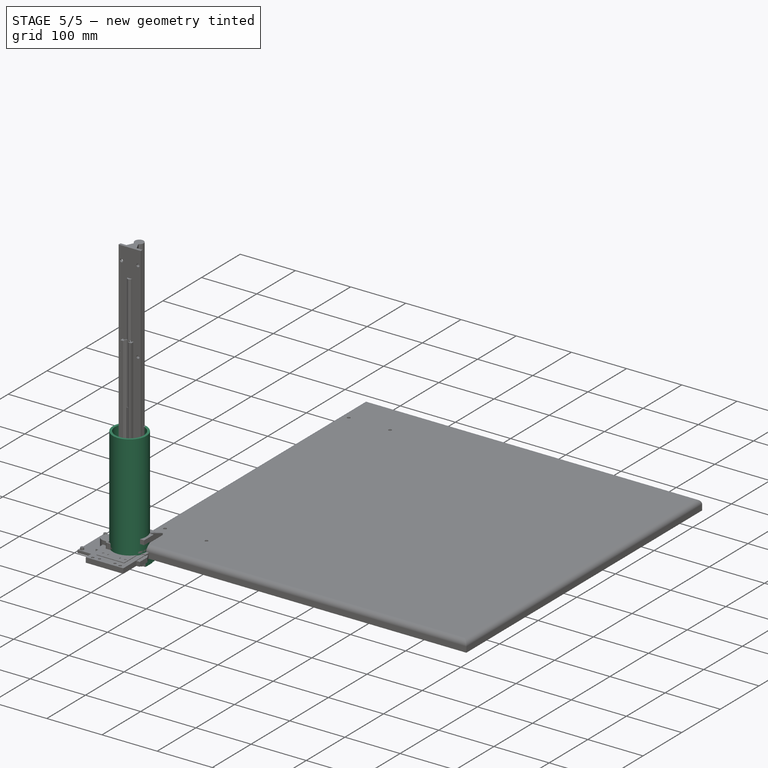
[diagram: stage 5 of 5 — iso view after this stage's code; geometry added in this stage tinted green]
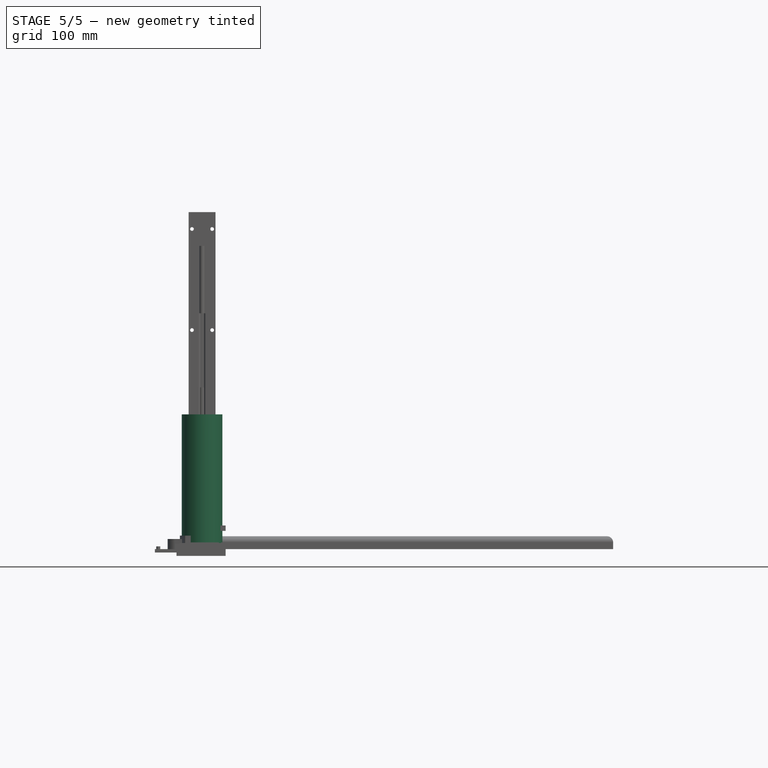
[diagram: stage 5 of 5 — front view after this stage's code; geometry added in this stage tinted green]
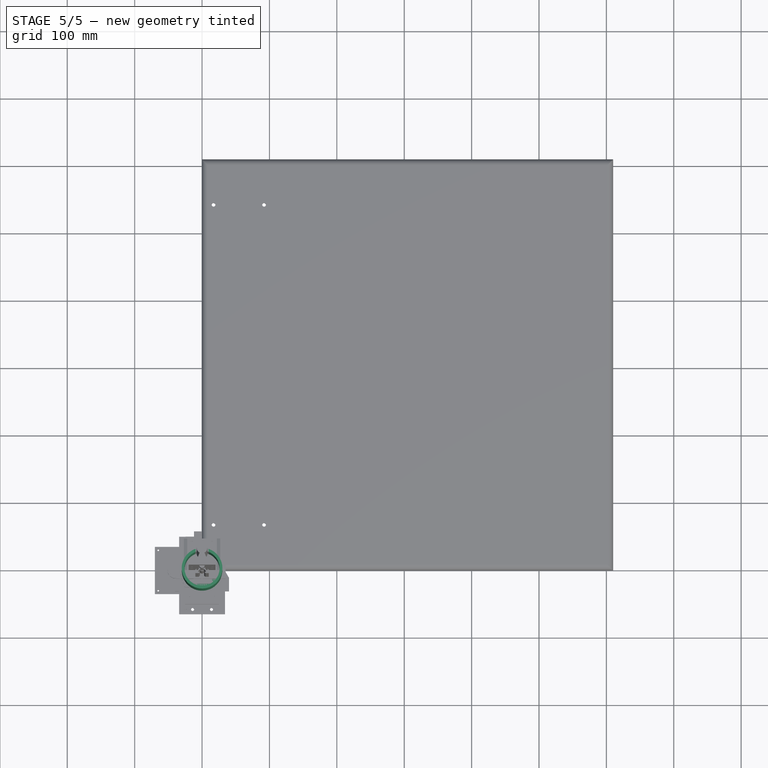
[diagram: stage 5 of 5 — top view after this stage's code; geometry added in this stage tinted green]
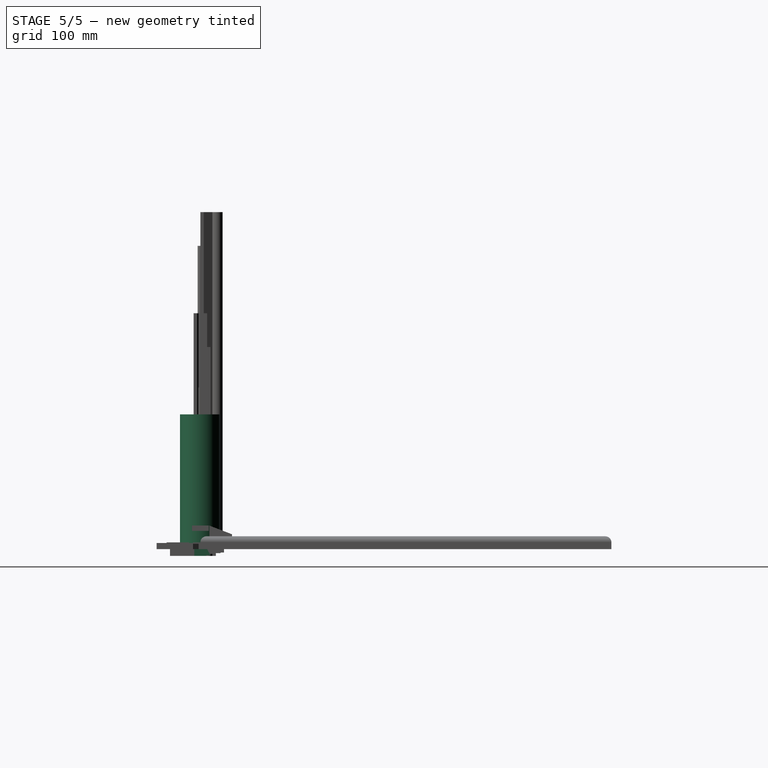
[diagram: stage 5 of 5 — right view after this stage's code; geometry added in this stage tinted green]
FEATURE [PartDesign::CoordinateSystem] LCS_Origin
  AttacherType = Attacher::AttachEngine3D
  MapMode = 2
  Support = -> [X_Axis]
FEATURE [App::DocumentObjectGroup] Constraints
FEATURE [App::FeaturePython] Variables  # WARN: FeaturePython — macro-defined, semantics opaque (R4)
  rollerID = 51.9938
  rollerOD = 60.325
  vWheelSpace = 20
  xPos = 100
  xRailSpace = 225
  zHomeL = 17
  zPos = 355
  zRailSpace = 100
  expr: rollerOD = 2.375 * 25.4
  expr: rollerID = 2.047 * 25.4
FEATURE [PartDesign::CoordinateSystem] LCS_0
  AttacherType = Attacher::AttachEngine3D
  MapMode = 2
  Support = -> [X_Axis001]
FEATURE [PartDesign::CoordinateSystem] LCS_0001
  AttacherType = Attacher::AttachEngine3D
  MapMode = 2
  Support = -> [X_Axis002]
FEATURE [Sketcher::SketchObject] Sketch
  FullyConstrained = true
  MapMode = 5
  Support = -> [XY_Plane002]
  expr: Constraints[2] = Variables.rollerOD
  expr: Constraints[3] = Variables.rollerID
  sketch-geometry (2):
    g0: Circle CenterX=0 CenterY=0 CenterZ=0 NormalX=0 NormalY=0 NormalZ=1 AngleXU=0 Radius=25.9969
    g1: Circle CenterX=0 CenterY=0 CenterZ=0 NormalX=0 NormalY=0 NormalZ=1 AngleXU=0 Radius=30.1625
  constraints (4):
    c: Coincident(g0,g-1)
    c: Coincident(g1,g0)
    c: Diameter(g1) = 60.325
    c: Diameter(g0) = 51.9938
FEATURE [PartDesign::Pad] Pad
  Direction = (1,1,1)
  Length = 200
  Length2 = 100
  Profile = -> Sketch
  Refine = true
  Type = 0
FEATURE [PartDesign::Body] Body
  Group = -> [LCS_0001,Sketch,Pad]
  Origin = -> Origin002
  Tip = -> Pad
FEATURE [App::Part] ROLLER_1_0  label="ROLLER_1V0"
  Group = -> [LCS_0,Body]
  Origin = -> Origin001
FEATURE [PartDesign::CoordinateSystem] LCS_0002
  AttacherType = Attacher::AttachEngine3D
  MapMode = 2
  Support = -> [X_Axis003]
FEATURE [PartDesign::CoordinateSystem] LCS_0003
  AttacherType = Attacher::AttachEngine3D
  MapMode = 2
  Support = -> [X_Axis004]
FEATURE [Sketcher::SketchObject] Sketch001
  FullyConstrained = true
  MapMode = 5
  Support = -> [XY_Plane004]
  expr: Constraints[1] = Variables.rollerID - 0.2
  sketch-geometry (1):
    g0: Circle CenterX=0 CenterY=0 CenterZ=0 NormalX=0 NormalY=0 NormalZ=1 AngleXU=0 Radius=25.8969
  constraints (2):
    c: Coincident(g0,g-1)
    c: Diameter(g0) = 51.7938
FEATURE [PartDesign::Pad] Pad001
  Direction = (1,1,1)
  Length = 15
  Length2 = 100
  Profile = -> Sketch001
  Refine = true
  Type = 0
FEATURE [Sketcher::SketchObject] Sketch002
  AttachmentOffset = pos=(0,0,15) rot=(0,0,1;0rad)
  FullyConstrained = true
  MapMode = 5
  Placement = pos=(0,0,15) rot=(0,0,1;0rad)
  Support = -> [XY_Plane004]
  sketch-geometry (1):
    g0: Circle CenterX=0 CenterY=0 CenterZ=0 NormalX=0 NormalY=0 NormalZ=1 AngleXU=0 Radius=15.1
  constraints (2):
    c: Coincident(g0,g-1)
    c: Diameter(g0) = 30.2
FEATURE [Sketcher::SketchObject] Sketch003
  FullyConstrained = true
  MapMode = 5
  Support = -> [XY_Plane004]
  sketch-geometry (1):
    g0: Circle CenterX=0 CenterY=0 CenterZ=0 NormalX=0 NormalY=0 NormalZ=1 AngleXU=0 Radius=13
  constraints (2):
    c: Coincident(g0,g-1)
    c: Diameter(g0) = 26
FEATURE [Sketcher::SketchObject] Sketch004
  AttachmentOffset = pos=(0,0,15) rot=(0,0,1;0rad)
  FullyConstrained = true
  MapMode = 5
  Placement = pos=(0,0,15) rot=(0,0,1;0rad)
  Support = -> [XY_Plane004]
  expr: Constraints[1] = Variables.rollerOD
  sketch-geometry (1):
    g0: Circle CenterX=0 CenterY=0 CenterZ=0 NormalX=0 NormalY=0 NormalZ=1 AngleXU=0 Radius=30.1625
  constraints (2):
    c: Coincident(g0,g-1)
    c: Diameter(g0) = 60.325
FEATURE [PartDesign::Pad] Pad002
  BaseFeature = -> Pad001
  Direction = (1,1,1)
  Length = 3
  Length2 = 100
  Profile = -> Sketch004
  Refine = true
  Reversed = true
  Type = 0
FEATURE [PartDesign::Pocket] Pocket
  BaseFeature = -> Pad002
  Length = 9
  Length2 = 100
  Profile = -> Sketch002
  Refine = true
  Type = 0
FEATURE [PartDesign::Pocket] Pocket001
  BaseFeature = -> Pocket
  Length = 5
  Length2 = 100
  Profile = -> Sketch003
  Refine = true
  Reversed = true
  Type = 1
FEATURE [PartDesign::Body] Body_2
  Group = -> [LCS_0003,Sketch001,Pad001,Sketch002,Sketch003,Sketch004,Pad002,Pocket,Pocket001]
  Origin = -> Origin004
  Tip = -> Pocket001
FEATURE [App::Part] ROLLER_CAP_1_0  label="ROLLER_CAP_1V0"
  Group = -> [LCS_0002,Body_2]
  Origin = -> Origin003
FEATURE [App::Link] ROLLER_1_0001
  AssemblyType = Asm4EE
  AttachedBy = #LCS_0
  AttachedTo = ROLLER_CAP_1#LCS_0002
  AttachmentOffset = pos=(0,0,12) rot=(-0.707107,-0.707107,0;3.14159rad)
  LinkPlacement = pos=(454.5,150.5,336.7) rot=(-0.707107,0,0.707107;3.14159rad)
  LinkedObject = -> ROLLER_1_0
  Placement = pos=(454.5,150.5,336.7) rot=(-0.707107,0,0.707107;3.14159rad)
  expr: Placement = ROLLER_CAP_1.Placement * LCS_0002.Placement * AttachmentOffset * LCS_0.Placement ^ -1
FEATURE [App::Link] ROLLER_CAP_1
  AssemblyType = Asm4EE
  AttachedBy = #LCS_0002
  AttachedTo = ROLLER_BRACKET_1#LCS_0049
  AttachmentOffset = pos=(0,0,25) rot=(1,0,0;3.14159rad)
  LinkPlacement = pos=(442.5,150.5,336.7) rot=(-0.57735,0.57735,-0.57735;2.0944rad)
  LinkedObject = -> ROLLER_CAP_1_0
  Placement = pos=(442.5,150.5,336.7) rot=(-0.57735,0.57735,-0.57735;2.0944rad)
  expr: Placement = ROLLER_BRACKET_1.Placement * LCS_0049.Placement * AttachmentOffset * LCS_0002.Placement ^ -1
FEATURE [App::Link] ROLLER_CAP_2
  AssemblyType = Asm4EE
  AttachedBy = #LCS_0002
  AttachedTo = ROLLER_1_0001#LCS_0
  AttachmentOffset = pos=(0,0,188) rot=(0,0,1;0rad)
  LinkPlacement = pos=(266.5,150.5,336.7) rot=(-0.707107,0,0.707107;3.14159rad)
  LinkedObject = -> ROLLER_CAP_1_0
  Placement = pos=(266.5,150.5,336.7) rot=(-0.707107,0,0.707107;3.14159rad)
  expr: Placement = ROLLER_1_0001.Placement * LCS_0.Placement * AttachmentOffset * LCS_0002.Placement ^ -1
FEATURE [PartDesign::CoordinateSystem] LCS_0004
  AttacherType = Attacher::AttachEngine3D
  MapMode = 2
  Support = -> [X_Axis005]
FEATURE [PartDesign::CoordinateSystem] LCS_0005
  AttacherType = Attacher::AttachEngine3D
  MapMode = 2
  Support = -> [X_Axis006]
FEATURE [Sketcher::SketchObject] Sketch005
  FullyConstrained = true
  MapMode = 5
  Support = -> [XY_Plane006]
  sketch-geometry (1):
    g0: Circle CenterX=0 CenterY=0 CenterZ=0 NormalX=0 NormalY=0 NormalZ=1 AngleXU=0 Radius=5
  constraints (2):
    c: Coincident(g0,g-1)
    c: Diameter(g0) = 10
FEATURE [PartDesign::Pad] Pad003
  Direction = (1,1,1)
  Length = 240
  Length2 = 100
  Profile = -> Sketch005
  Refine = true
  Type = 0
FEATURE [PartDesign::Body] Body_5
  Group = -> [LCS_0041,Sketch051,Pad037]
  Origin = -> Origin046
  Tip = -> Pad037
FEATURE [App::Part] LEAD_SCREW_A_1_0  label="LEAD_SCREW_Z_1V0"
  Group = -> [LCS_0040,Body_5]
  Origin = -> Origin045
FEATURE [PartDesign::CoordinateSystem] LCS_0049
  AttacherType = Attacher::AttachEngine3D
  MapMode = 2
  Support = -> [X_Axis055]
FEATURE [PartDesign::CoordinateSystem] LCS_0050
  AttacherType = Attacher::AttachEngine3D
  MapMode = 2
  Support = -> [X_Axis056]
FEATURE [Sketcher::SketchObject] Sketch064
  FullyConstrained = true
  MapMode = 5
  Support = -> [XY_Plane056]
  sketch-geometry (9):
    g0: Circle CenterX=0 CenterY=0 CenterZ=0 NormalX=0 NormalY=0 NormalZ=1 AngleXU=0 Radius=5.25
    g1: LineSegment StartX=35 StartY=15 StartZ=0 EndX=-35 EndY=15 EndZ=0
    g2: LineSegment StartX=-35 StartY=15 StartZ=0 EndX=-35 EndY=5 EndZ=0
    g3: LineSegment StartX=-35 StartY=5 StartZ=0 EndX=-9 EndY=5 EndZ=0
    g4: LineSegment StartX=-9 StartY=5 StartZ=0 EndX=-9 EndY=0 EndZ=0
    g5: LineSegment StartX=9 StartY=0 StartZ=0 EndX=9 EndY=5 EndZ=0
    g6: LineSegment StartX=9 StartY=5 StartZ=0 EndX=35 EndY=5 EndZ=0
    g7: LineSegment StartX=35 StartY=5 StartZ=0 EndX=35 EndY=15 EndZ=0
    g8: ArcOfCircle CenterX=0 CenterY=0 CenterZ=0 NormalX=0 NormalY=0 NormalZ=1 AngleXU=0 Radius=9 StartAngle=3.14159 EndAngle=6.28319
  constraints (25):
    c: Coincident(g0,g-1)
    c: Diameter(g0) = 10.5
    c: Coincident(g1,g2)
    c: Vertical(g2)
    c: Coincident(g2,g3)
    c: Horizontal(g3)
    c: Coincident(g3,g4)
    c: PointOnObject(g4,g-1)
    c: PointOnObject(g5,g-1)
    c: Coincident(g5,g6)
    c: Horizontal(g6)
    c: Coincident(g6,g7)
    c: Coincident(g7,g1)
    c: Vertical(g7)
    c: DistanceY(g7,g7) = 10
    c: Coincident(g8,g0)
    c: Coincident(g8,g4)
    c: Coincident(g8,g5)
    c: Horizontal(g5,g3)
    c: Vertical(g5)
    c: Diameter(g8) = 18
    c: Vertical(g4)
    c: DistanceY(g5,g5) = 5
    c: DistanceX(g1,g1) = 70
    c: Symmetric(g1,g1,g-2)
FEATURE [PartDesign::Pad] Pad044
  Direction = (1,1,1)
  Length = 18
  Length2 = 100
  Midplane = true
  Profile = -> Sketch064
  Type = 0
FEATURE [Sketcher::SketchObject] Sketch065
  FullyConstrained = true
  MapMode = 5
  Placement = pos=(0,0,0) rot=(1,0,0;1.5708rad)
  Support = -> [XZ_Plane056]
  sketch-geometry (2):
    g0: Circle CenterX=-25 CenterY=0 CenterZ=0 NormalX=0 NormalY=0 NormalZ=1 AngleXU=0 Radius=2.75
    g1: Circle CenterX=25 CenterY=0 CenterZ=0 NormalX=0 NormalY=0 NormalZ=1 AngleXU=0 Radius=2.75
  constraints (5):
    c: PointOnObject(g1,g-1)
    c: Diameter(g1) = 5.5
    c: Equal(g1,g0)
    c: DistanceX(g0,g1) = 50
    c: Symmetric(g0,g1,g-2)
FEATURE [PartDesign::Pocket] Pocket016
  BaseFeature = -> Pad044
  Length = 5
  Length2 = 100
  Profile = -> Sketch065
  Type = 1
FEATURE [Sketcher::SketchObject] Sketch066
  AttachmentOffset = pos=(0,0,-15) rot=(0,0,1;0rad)
  FullyConstrained = true
  MapMode = 5
  Placement = pos=(0,15,3.3e-15) rot=(1,0,0;1.5708rad)
  Support = -> [XZ_Plane056]
  sketch-geometry (2):
    g0: Circle CenterX=-25 CenterY=0 CenterZ=0 NormalX=0 NormalY=0 NormalZ=1 AngleXU=0 Radius=6.5
    g1: Circle CenterX=25 CenterY=0 CenterZ=0 NormalX=0 NormalY=0 NormalZ=1 AngleXU=0 Radius=6.5
  constraints (5):
    c: PointOnObject(g0,g-1)
    c: Diameter(g1) = 13
    c: Equal(g1,g0)
    c: Symmetric(g1,g0,g-2)
    c: DistanceX(g0,g1) = 50
FEATURE [PartDesign::Pocket] Pocket017
  BaseFeature = -> Pocket016
  Length = 2
  Length2 = 100
  Profile = -> Sketch066
  Reversed = true
  Type = 0
FEATURE [Sketcher::SketchObject] Sketch067
  AttachmentOffset = pos=(0,0,-9) rot=(0,0,1;0rad)
  FullyConstrained = true
  MapMode = 5
  Placement = pos=(0,0,-9) rot=(0,0,1;0rad)
  Support = -> [XY_Plane056]
  sketch-geometry (1):
    g0: Circle CenterX=0 CenterY=0 CenterZ=0 NormalX=0 NormalY=0 NormalZ=1 AngleXU=0 Radius=9
  constraints (2):
    c: Coincident(g0,g-1)
    c: Diameter(g0) = 18
FEATURE [PartDesign::Pad] Pad045
  BaseFeature = -> Pocket017
  Direction = (1,1,1)
  Length = 2
  Length2 = 100
  Profile = -> Sketch067
  Type = 0
FEATURE [App::Link] ROLLER_BRACKET_1
  AssemblyType = Asm4EE
  AttachedBy = #LCS_0049
  AttachedTo = LC_BRACKET_1#LCS_0051
  AttachmentOffset = pos=(0,0,-35) rot=(1,0,0;1.5708rad)
  LinkPlacement = pos=(467.5,150.5,336.7) rot=(-0.57735,0.57735,0.57735;4.18879rad)
  LinkedObject = -> ROLLER_BRACKET_1_0
  Placement = pos=(467.5,150.5,336.7) rot=(-0.57735,0.57735,0.57735;4.18879rad)
  expr: Placement = LC_BRACKET_1.Placement * LCS_0051.Placement * AttachmentOffset * LCS_0049.Placement ^ -1
FEATURE [PartDesign::CoordinateSystem] spring
  AttacherType = Attacher::AttachEngine3D
  MapMode = 11
  Placement = pos=(-25,13,2.9e-15) rot=(0.57735,-0.57735,0.57735;2.0944rad)
  Support = -> [Pocket017]
FEATURE [PartDesign::CoordinateSystem] spring2
  AttacherType = Attacher::AttachEngine3D
  MapMode = 11
  Placement = pos=(25,13,2.9e-15) rot=(0.57735,-0.57735,0.57735;2.0944rad)
  Support = -> [Pocket017]
FEATURE [App::Link] SPRING_1
  AssemblyType = Asm4EE
  AttachedBy = #LCS_0
  AttachedTo = ROLLER_BRACKET_1#spring
  LinkPlacement = pos=(467.5,175.5,349.7) rot=(0,1,0;3.14159rad)
  LinkedObject = -> <external SPRING.FCStd>#Part
  Placement = pos=(467.5,175.5,349.7) rot=(0,1,0;3.14159rad)
  expr: Placement = ROLLER_BRACKET_1.Placement * spring.Placement * AttachmentOffset * SPRING#LCS_0.Placement ^ -1
FEATURE [App::Link] SHOULDER_SCREW_1
  AssemblyType = Asm4EE
  AttachedBy = #bottom
  AttachedTo = ROLLER_BRACKET_1#spring
  LinkPlacement = pos=(467.5,175.5,386.213) rot=(0,0,1;3.14159rad)
  LinkedObject = -> <external SHOULDER-SCREW.FCStd>#Part
  Placement = pos=(467.5,175.5,386.213) rot=(0,0,1;3.14159rad)
  expr: Placement = ROLLER_BRACKET_1.Placement * spring.Placement * AttachmentOffset * SHOULDER_SCREW#bottom.Placement ^ -1
FEATURE [App::Link] SHOULDER_SCREW_2
  AssemblyType = Asm4EE
  AttachedBy = #bottom
  AttachedTo = ROLLER_BRACKET_1#spring2
  LinkPlacement = pos=(467.5,125.5,386.213) rot=(0,0,1;3.14159rad)
  LinkedObject = -> <external SHOULDER-SCREW.FCStd>#Part
  Placement = pos=(467.5,125.5,386.213) rot=(0,0,1;3.14159rad)
  expr: Placement = ROLLER_BRACKET_1.Placement * spring2.Placement * AttachmentOffset * SHOULDER_SCREW#bottom.Placement ^ -1
FEATURE [Sketcher::SketchObject] Sketch068
  AttachmentOffset = pos=(0,0,-5) rot=(0,0,1;0rad)
  FullyConstrained = true
  MapMode = 5
  Placement = pos=(0,5,1.1e-15) rot=(1,0,0;1.5708rad)
  Support = -> [XZ_Plane056]
  sketch-geometry (8):
    g0: LineSegment StartX=-29.8625 StartY=-4.8625 StartZ=0 EndX=-20.1375 EndY=-4.8625 EndZ=0
    g1: LineSegment StartX=-20.1375 StartY=-4.8625 StartZ=0 EndX=-20.1375 EndY=4.8625 EndZ=0
    g2: LineSegment StartX=-20.1375 StartY=4.8625 StartZ=0 EndX=-29.8625 EndY=4.8625 EndZ=0
    g3: LineSegment StartX=-29.8625 StartY=4.8625 StartZ=0 EndX=-29.8625 EndY=-4.8625 EndZ=0
    g4: LineSegment StartX=20.1375 StartY=-4.8625 StartZ=0 EndX=29.8625 EndY=-4.8625 EndZ=0
    g5: LineSegment StartX=29.8625 StartY=-4.8625 StartZ=0 EndX=29.8625 EndY=4.8625 EndZ=0
    g6: LineSegment StartX=29.8625 StartY=4.8625 StartZ=0 EndX=20.1375 EndY=4.8625 EndZ=0
    g7: LineSegment StartX=20.1375 StartY=4.8625 StartZ=0 EndX=20.1375 EndY=-4.8625 EndZ=0
  constraints (22):
    c: Coincident(g0,g1)
    c: Coincident(g1,g2)
    c: Coincident(g2,g3)
    c: Coincident(g3,g0)
    c: Horizontal(g0)
    c: Horizontal(g2)
    c: Vertical(g1)
    c: Coincident(g4,g5)
    c: Coincident(g5,g6)
    c: Coincident(g6,g7)
    c: Coincident(g7,g4)
    c: Horizontal(g4)
    c: Horizontal(g6)
    c: Vertical(g5)
    c: Vertical(g7)
    c: Equal(g2,g3)
    c: Equal(g3,g6)
    c: Equal(g6,g7)
    c: DistanceX(g2,g2) = 9.725
    c: Symmetric(g2,g0,g-1)
    c: Symmetric(g0,g4,g-2)
    c: DistanceX(g0,g4) = 40.275
FEATURE [PartDesign::Pocket] Pocket018
  BaseFeature = -> Pad045
  Length = 4
  Length2 = 100
  Profile = -> Sketch068
  Type = 0
FEATURE [PartDesign::Body] Body_6
  Group = -> [LCS_0050,Sketch064,Pad044,Sketch065,Pocket016,Sketch066,Pocket017,Sketch067,Pad045,Sketch068,Pocket018]
  Origin = -> Origin056
  Tip = -> Pocket018
FEATURE [App::Part] ROLLER_BRACKET_1_0  label="ROLLER_BRACK_1V0"
  Group = -> [LCS_0049,Body_6,spring,spring2]
  Origin = -> Origin055
FEATURE [PartDesign::CoordinateSystem] LCS_0051
  AttacherType = Attacher::AttachEngine3D
  MapMode = 2
  Support = -> [X_Axis057]
FEATURE [PartDesign::CoordinateSystem] LCS_0052
  AttacherType = Attacher::AttachEngine3D
  MapMode = 2
  Support = -> [X_Axis058]
FEATURE [Sketcher::SketchObject] Sketch069
  FullyConstrained = true
  MapMode = 5
  Support = -> [XY_Plane058]
  sketch-geometry (10):
    g0: LineSegment StartX=-35 StartY=23 StartZ=0 EndX=-35 EndY=-9 EndZ=0
    g1: LineSegment StartX=-35 StartY=-9 StartZ=0 EndX=35 EndY=-9 EndZ=0
    g2: LineSegment StartX=35 StartY=-9 StartZ=0 EndX=35 EndY=9 EndZ=0
    g3: LineSegment StartX=35 StartY=9 StartZ=0 EndX=-14.5 EndY=9 EndZ=0
    g4: LineSegment StartX=-14.5 StartY=9 StartZ=0 EndX=-14.5 EndY=23 EndZ=0
    g5: LineSegment StartX=-14.5 StartY=23 StartZ=0 EndX=-35 EndY=23 EndZ=0
    g6: Circle CenterX=-29.5 CenterY=16.5 CenterZ=0 NormalX=0 NormalY=0 NormalZ=1 AngleXU=0 Radius=2.25
    g7: Circle CenterX=-19.5 CenterY=16.5 CenterZ=0 NormalX=0 NormalY=0 NormalZ=1 AngleXU=0 Radius=2.25
    g8: Circle CenterX=-25 CenterY=0 CenterZ=0 NormalX=0 NormalY=0 NormalZ=1 AngleXU=0 Radius=3.4
    g9: Circle CenterX=25 CenterY=0 CenterZ=0 NormalX=0 NormalY=0 NormalZ=1 AngleXU=0 Radius=3.4
  constraints (27):
    c: Vertical(g0)
    c: Coincident(g0,g1)
    c: Coincident(g1,g2)
    c: Coincident(g2,g3)
    c: Horizontal(g3)
    c: Coincident(g3,g4)
    c: Vertical(g4)
    c: Coincident(g4,g5)
    c: Coincident(g5,g0)
    c: Horizontal(g5)
    c: Symmetric(g2,g1,g-1)
    c: DistanceY(g2,g2) = 18
    c: DistanceY(g4,g4) = 14
    c: Horizontal(g6,g7)
    c: DistanceX(g6,g7) = 10
    c: DistanceX(g0,g6) = 5.5
    c: DistanceX(g1,g1) = 70
    c: Symmetric(g0,g1,g-2)
    c: DistanceX(g7,g4) = 5
    c: DistanceY(g7,g4) = 6.5
    c: Diameter(g6) = 4.5
    c: Equal(g6,g7)
    c: PointOnObject(g8,g-1)
    c: Diameter(g8) = 6.8
    c: Equal(g8,g9)
    c: DistanceX(g8,g9) = 50
    c: Symmetric(g8,g9,g-2)
FEATURE [PartDesign::Pad] Pad046
  Direction = (1,1,1)
  Length = 10
  Length2 = 100
  Profile = -> Sketch069
  Type = 0
FEATURE [Sketcher::SketchObject] Sketch070
  FullyConstrained = true
  MapMode = 5
  Support = -> [XY_Plane058]
  sketch-geometry (2):
    g0: Circle CenterX=-25 CenterY=0 CenterZ=0 NormalX=0 NormalY=0 NormalZ=1 AngleXU=0 Radius=6.5
    g1: Circle CenterX=25 CenterY=0 CenterZ=0 NormalX=0 NormalY=0 NormalZ=1 AngleXU=0 Radius=6.5
  constraints (5):
    c: PointOnObject(g0,g-1)
    c: Diameter(g0) = 13
    c: Equal(g0,g1)
    c: Symmetric(g0,g1,g-2)
    c: DistanceX(g0,g1) = 50
FEATURE [PartDesign::Pocket] Pocket019
  BaseFeature = -> Pad046
  Length = 2
  Length2 = 100
  Profile = -> Sketch070
  Reversed = true
  Type = 0
FEATURE [PartDesign::Body] Body_7
  Group = -> [LCS_0052,Sketch069,Pad046,Sketch070,Pocket019]
  Origin = -> Origin058
  Tip = -> Pocket019
FEATURE [PartDesign::CoordinateSystem] loadCell
  AttacherType = Attacher::AttachEngine3D
  MapMode = 11
  Placement = pos=(-29.5,16.5,10) rot=(0,0,1;1.5708rad)
  Support = -> [Pocket019]
FEATURE [App::Link] LC_BRACKET_1
  AssemblyType = Asm4EE
  AttachedBy = #loadCell
  AttachedTo = LOAD_CELL_4543_1#rollerBracket
  AttachmentOffset = pos=(0,0,12.7) rot=(0,-1,0;3.14159rad)
  LinkPlacement = pos=(467.5,150.5,371.7) rot=(0,0,1;4.71239rad)
  LinkedObject = -> LC_BRACKET_1_0
  Placement = pos=(467.5,150.5,371.7) rot=(0,0,1;4.71239rad)
  expr: Placement = LOAD_CELL_4543_1.Placement * LOAD_CELL_4543#rollerBracket.Placement * AttachmentOffset * loadCell.Placement ^ -1
FEATURE [App::Link] LOAD_CELL_4543_1
  AssemblyType = Asm4EE
  AttachedBy = #loadCellBracket
  AttachedTo = LC_BRACKET_2#LCS_0079
  AttachmentOffset = pos=(5,-45,0) rot=(0.57735,-0.57735,0.57735;2.0944rad)
  LinkPlacement = pos=(490.35,148,388.05) rot=(0.57735,-0.57735,-0.57735;2.0944rad)
  LinkedObject = -> <external LOAD-CELL-4543.FCStd>#LOAD_CELL_4541
  Placement = pos=(490.35,148,388.05) rot=(0.57735,-0.57735,-0.57735;2.0944rad)
  expr: Placement = LC_BRACKET_2.Placement * LCS_0079.Placement * AttachmentOffset * LOAD_CELL_4543#loadCellBracket.Placement ^ -1
FEATURE [App::Link] ROLLER_BRACKET_2
  AssemblyType = Asm4EE
  AttachedBy = #LCS_0049
  AttachedTo = ROLLER_CAP_2#LCS_0002
  AttachmentOffset = pos=(0,0,25) rot=(0.707107,-0.707107,0;3.14159rad)
  LinkPlacement = pos=(241.5,150.5,336.7) rot=(0.57735,0.57735,0.57735;2.0944rad)
  LinkedObject = -> ROLLER_BRACKET_1_0
  Placement = pos=(241.5,150.5,336.7) rot=(0.57735,0.57735,0.57735;2.0944rad)
  expr: Placement = ROLLER_CAP_2.Placement * LCS_0002.Placement * AttachmentOffset * LCS_0049.Placement ^ -1
FEATURE [App::Link] SHOULDER_SCREW_3
  AssemblyType = Asm4EE
  AttachedBy = #bottom
  AttachedTo = ROLLER_BRACKET_2#spring
  LinkPlacement = pos=(241.5,125.5,386.213) rot=(0,0,1;0rad)
  LinkedObject = -> <external SHOULDER-SCREW.FCStd>#Part
  Placement = pos=(241.5,125.5,386.213) rot=(0,0,1;0rad)
  expr: Placement = ROLLER_BRACKET_2.Placement * spring.Placement * AttachmentOffset * SHOULDER_SCREW#bottom.Placement ^ -1
FEATURE [App::Link] SHOULDER_SCREW_4
  AssemblyType = Asm4EE
  AttachedBy = #bottom
  AttachedTo = ROLLER_BRACKET_2#spring2
  LinkPlacement = pos=(241.5,175.5,386.213) rot=(0,0,1;0rad)
  LinkedObject = -> <external SHOULDER-SCREW.FCStd>#Part
  Placement = pos=(241.5,175.5,386.213) rot=(0,0,1;0rad)
  expr: Placement = ROLLER_BRACKET_2.Placement * spring2.Placement * AttachmentOffset * SHOULDER_SCREW#bottom.Placement ^ -1
FEATURE [App::Link] LOAD_CELL_4543_2
  AssemblyType = Asm4EE
  AttachedBy = #loadCellBracket
  AttachedTo = LC_BRACKET_B#loadCell002
  AttachmentOffset = pos=(0,0,0) rot=(-1,0,0;3.14159rad)
  LinkPlacement = pos=(231.35,148,388.05) rot=(0.57735,0.57735,-0.57735;4.18879rad)
  LinkedObject = -> <external LOAD-CELL-4543.FCStd>#LOAD_CELL_4541
  Placement = pos=(231.35,148,388.05) rot=(0.57735,0.57735,-0.57735;4.18879rad)
  expr: Placement = LC_BRACKET_B.Placement * loadCell002.Placement * AttachmentOffset * LOAD_CELL_4543#loadCellBracket.Placement ^ -1
FEATURE [PartDesign::CoordinateSystem] LCS_0053
  AttacherType = Attacher::AttachEngine3D
  MapMode = 2
  Support = -> [X_Axis059]
FEATURE [Part::Mirroring] Part__Mirroring  label="Body_7 (Mirror #1)"
  Base = (0,0,0)
  Normal = (0,0,1)
  Source = -> Body_7
FEATURE [PartDesign::CoordinateSystem] loadCell002
  AttacherType = Attacher::AttachEngine3D
  MapMode = 11
  Placement = pos=(-29.5,16.5,-10) rot=(0,0,1;1.5708rad)
  Support = -> [Part__Mirroring]
FEATURE [App::Part] LC_BRACKET_1_0002  label="LC_BRACK_A_1V0"
  Group = -> [LCS_0053,loadCell002,Body_7,Part__Mirroring]
  Origin = -> Origin060
FEATURE [Sketcher::SketchObject] Sketch074
  FullyConstrained = true
  MapMode = 5
  Support = -> [XY_Plane061]
  sketch-geometry (10):
    g0: LineSegment StartX=-35 StartY=23 StartZ=0 EndX=-35 EndY=-9 EndZ=0
    g1: LineSegment StartX=-35 StartY=-9 StartZ=0 EndX=35 EndY=-9 EndZ=0
    g2: LineSegment StartX=35 StartY=-9 StartZ=0 EndX=35 EndY=9 EndZ=0
    g3: LineSegment StartX=35 StartY=9 StartZ=0 EndX=-14.5 EndY=9 EndZ=0
    g4: LineSegment StartX=-14.5 StartY=9 StartZ=0 EndX=-14.5 EndY=23 EndZ=0
    g5: LineSegment StartX=-14.5 StartY=23 StartZ=0 EndX=-35 EndY=23 EndZ=0
    g6: Circle CenterX=-29.5 CenterY=16.5 CenterZ=0 NormalX=0 NormalY=0 NormalZ=1 AngleXU=0 Radius=2.25
    g7: Circle CenterX=-19.5 CenterY=16.5 CenterZ=0 NormalX=0 NormalY=0 NormalZ=1 AngleXU=0 Radius=2.25
    g8: Circle CenterX=-25 CenterY=0 CenterZ=0 NormalX=0 NormalY=0 NormalZ=1 AngleXU=0 Radius=3.4
    g9: Circle CenterX=25 CenterY=0 CenterZ=0 NormalX=0 NormalY=0 NormalZ=1 AngleXU=0 Radius=3.4
  constraints (27):
    c: Vertical(g0)
    c: Coincident(g0,g1)
    c: Coincident(g1,g2)
    c: Coincident(g2,g3)
    c: Horizontal(g3)
    c: Coincident(g3,g4)
    c: Vertical(g4)
    c: Coincident(g4,g5)
    c: Coincident(g5,g0)
    c: Horizontal(g5)
    c: Symmetric(g2,g1,g-1)
    c: DistanceY(g2,g2) = 18
    c: DistanceY(g4,g4) = 14
    c: Horizontal(g6,g7)
    c: DistanceX(g6,g7) = 10
    c: DistanceX(g0,g6) = 5.5
    c: DistanceX(g1,g1) = 70
    c: Symmetric(g0,g1,g-2)
    c: DistanceX(g7,g4) = 5
    c: DistanceY(g7,g4) = 6.5
    c: Diameter(g6) = 4.5
    c: Equal(g6,g7)
    c: PointOnObject(g8,g-1)
    c: Diameter(g8) = 6.8
    c: Equal(g8,g9)
    c: DistanceX(g8,g9) = 50
    c: Symmetric(g8,g9,g-2)
FEATURE [PartDesign::Pad] Pad049
  Direction = (1,1,1)
  Length = 10
  Length2 = 100
  Profile = -> Sketch074
  Type = 0
FEATURE [PartDesign::CoordinateSystem] LCS_0055
  AttacherType = Attacher::AttachEngine3D
  MapMode = 2
  Support = -> [X_Axis061]
FEATURE [Sketcher::SketchObject] Sketch075
  FullyConstrained = true
  MapMode = 5
  Support = -> [XY_Plane061]
  sketch-geometry (2):
    g0: Circle CenterX=-25 CenterY=0 CenterZ=0 NormalX=0 NormalY=0 NormalZ=1 AngleXU=0 Radius=6.5
    g1: Circle CenterX=25 CenterY=0 CenterZ=0 NormalX=0 NormalY=0 NormalZ=1 AngleXU=0 Radius=6.5
  constraints (5):
    c: PointOnObject(g0,g-1)
    c: Diameter(g0) = 13
    c: Equal(g0,g1)
    c: Symmetric(g0,g1,g-2)
    c: DistanceX(g0,g1) = 50
FEATURE [PartDesign::Pocket] Pocket021
  BaseFeature = -> Pad049
  Length = 2
  Length2 = 100
  Profile = -> Sketch075
  Reversed = true
  Type = 0
FEATURE [App::Link] LC_BRACKET_1001  label="LC_BRACKET_B_1"
  AssemblyType = Asm4EE
  AttachedBy = #LCS_0079
  AttachedTo = BAR_F_1#LCS_0078
  AttachmentOffset = pos=(28,-21,35) rot=(1,0,0;3.14159rad)
  LinkPlacement = pos=(225,121,439.4) rot=(0.57735,-0.57735,-0.57735;2.0944rad)
  LinkedObject = -> LC_BRACKET_1V0
  Placement = pos=(225,121,439.4) rot=(0.57735,-0.57735,-0.57735;2.0944rad)
  expr: Placement = BAR_F_1.Placement * LCS_0078.Placement * AttachmentOffset * LCS_0079.Placement ^ -1
FEATURE [App::Link] LC_BRACKET_2  label="LC_BRACKET_B_2"
  AssemblyType = Asm4EE
  AttachedBy = #LCS_0079
  AttachedTo = LC_BRACKET_1001#LCS_0079
  AttachmentOffset = pos=(0,0,-259) rot=(0,0,1;0rad)
  LinkPlacement = pos=(484,121,439.4) rot=(0.57735,-0.57735,-0.57735;2.0944rad)
  LinkedObject = -> LC_BRACKET_1V0
  Placement = pos=(484,121,439.4) rot=(0.57735,-0.57735,-0.57735;2.0944rad)
  expr: Placement = LC_BRACKET_1001.Placement * LCS_0079.Placement * AttachmentOffset * LCS_0079.Placement ^ -1
FEATURE [App::Link] MTR_BRACKET_X
  AssemblyType = Asm4EE
  AttachedBy = #LCS_0038
  AttachedTo = BAR_E_1#LCS_0073
  AttachmentOffset = pos=(-21,10,168.9) rot=(0.57735,-0.57735,-0.57735;4.18879rad)
  LinkPlacement = pos=(156,57.5,187.9) rot=(-0.57735,-0.57735,0.57735;4.18879rad)
  LinkedObject = -> MOTOR_BRACKET_1_0
  Placement = pos=(156,57.5,187.9) rot=(-0.57735,-0.57735,0.57735;4.18879rad)
  expr: Placement = BAR_E_1.Placement * LCS_0073.Placement * AttachmentOffset * LCS_0038.Placement ^ -1
FEATURE [App::Link] MTR_17HS15_1504S_1
  AssemblyType = Asm4EE
  AttachedBy = #LCS_0
  AttachedTo = MTR_BRACKET_X#LCS_0038
  AttachmentOffset = pos=(0,0,8) rot=(0,0,1;0rad)
  LinkPlacement = pos=(156,49.5,187.9) rot=(-0.57735,-0.57735,0.57735;4.18879rad)
  LinkedObject = -> <external MTR_17HS15_1504S.FCStd>#Part
  Placement = pos=(156,49.5,187.9) rot=(-0.57735,-0.57735,0.57735;4.18879rad)
  expr: Placement = MTR_BRACKET_X.Placement * LCS_0038.Placement * AttachmentOffset * MTR_17HS15_1504S#LCS_0.Placement ^ -1
FEATURE [App::Link] LEAD_SCREW_X
  AssemblyType = Asm4EE
  AttachedBy = #LCS_0070
  AttachedTo = MTR_17HS15_1504S_1#LCS_0
  AttachmentOffset = pos=(0,0,-25) rot=(1,0,0;3.14159rad)
  LinkPlacement = pos=(156,74.5,187.9) rot=(-0.57735,0.57735,0.57735;2.0944rad)
  LinkedObject = -> LEAD_SCREW_A_1_001
  Placement = pos=(156,74.5,187.9) rot=(-0.57735,0.57735,0.57735;2.0944rad)
  expr: Placement = MTR_17HS15_1504S_1.Placement * MTR_17HS15_1504S#LCS_0.Placement * AttachmentOffset * LCS_0070.Placement ^ -1
FEATURE [Sketcher::SketchObject] Sketch111
  FullyConstrained = true
  MapMode = 5
  Placement = pos=(0,0,0) rot=(1,0,0;1.5708rad)
  Support = -> [XZ_Plane081]
  sketch-geometry (8):
    g0: Circle CenterX=-15 CenterY=25 CenterZ=0 NormalX=0 NormalY=0 NormalZ=1 AngleXU=0 Radius=2.75
    g1: Circle CenterX=15 CenterY=25 CenterZ=0 NormalX=0 NormalY=0 NormalZ=1 AngleXU=0 Radius=2.75
    g2: Circle CenterX=-15 CenterY=175 CenterZ=0 NormalX=0 NormalY=0 NormalZ=1 AngleXU=0 Radius=2.75
    g3: Circle CenterX=15 CenterY=175 CenterZ=0 NormalX=0 NormalY=0 NormalZ=1 AngleXU=0 Radius=2.75
    g4: Circle CenterX=-15 CenterY=325 CenterZ=0 NormalX=0 NormalY=0 NormalZ=1 AngleXU=0 Radius=2.75
    g5: Circle CenterX=15 CenterY=325 CenterZ=0 NormalX=0 NormalY=0 NormalZ=1 AngleXU=0 Radius=2.75
    g6: Circle CenterX=-15 CenterY=475 CenterZ=0 NormalX=0 NormalY=0 NormalZ=1 AngleXU=0 Radius=2.75
    g7: Circle CenterX=15 CenterY=475 CenterZ=0 NormalX=0 NormalY=0 NormalZ=1 AngleXU=0 Radius=2.75
  constraints (23):
    c: Diameter(g0) = 5.5
    c: Equal(g0,g2)
    c: Equal(g0,g4)
    c: Equal(g0,g6)
    c: Equal(g0,g7)
    c: Equal(g0,g5)
    c: Equal(g0,g3)
    c: Equal(g0,g1)
    c: Symmetric(g0,g1,g-2)
    c: Vertical(g0,g2)
    c: Vertical(g2,g4)
    c: Vertical(g4,g6)
    c: Horizontal(g7,g6)
    c: Vertical(g7,g5)
    c: Vertical(g5,g3)
    c: Vertical(g3,g1)
    c: Horizontal(g3,g2)
    c: Horizontal(g5,g4)
    c: DistanceY(g-1,g1) = 25
    c: DistanceY(g1,g3) = 150
    c: DistanceX(g0,g1) = 30
    c: DistanceY(g3,g5) = 150
    c: DistanceY(g5,g7) = 150
FEATURE [PartDesign::Pocket] Pocket036
  BaseFeature = -> Pad064
  Length = 5
  Length2 = 100
  Profile = -> Sketch111
  Refine = true
  Type = 1
FEATURE [PartDesign::Body] Body_9
  Group = -> [LCS_0064,Sketch086,Pad056,Fillet001]
  Origin = -> Origin070
  Tip = -> Fillet001
FEATURE [TechDraw::DrawSVGTemplate] Template001
  EditableTexts = Designed_by_Name=Designed by Name; Drawing_number=Drawing number; FC-Date=Date; FC-SC=Scale; FC-SH=Sheet; FC-Title=Title; Subtitle=Subtitle; Weight=Weight
  Height = 210
  Orientation = 1
  Width = 297
FEATURE [TechDraw::DrawProjGroupItem] ProjItem002  label="Front001"
  CoarseView = false
  Direction = (0,0,1)
  Focus = 100
  HardHidden = false
  IsoCount = 0
  IsoHidden = false
  IsoVisible = false
  LockPosition = true
  Perspective = false
  Rotation = 0
  RotationVector = (1,0,0)
  Scale = 0.166667
  ScaleType = 2
  SeamHidden = false
  SeamVisible = true
  SmoothHidden = false
  SmoothVisible = true
  Source = -> [Body_9]
  Type = 0
  X = 0
  XDirection = (1,0,0)
  Y = 0
FEATURE [TechDraw::DrawProjGroupItem] ProjItem003  label="Left001"
  CoarseView = false
  Direction = (-1,0,1e-16)
  Focus = 100
  HardHidden = false
  IsoCount = 0
  IsoHidden = false
  IsoVisible = false
  LockPosition = false
  Perspective = false
  Rotation = 0
  RotationVector = (1,0,0)
  ScaleType = 2
  SeamHidden = false
  SeamVisible = true
  SmoothHidden = false
  SmoothVisible = true
  Source = -> [Body_9]
  Type = 1
  X = -124.559
  XDirection = (1e-16,0,1)
  Y = 0
FEATURE [TechDraw::DrawProjGroup] ProjGroup001
  Anchor = -> ProjItem002
  AutoDistribute = false
  LockPosition = false
  ProjectionType = 1
  Rotation = 0
  Scale = 0.166667
  ScaleType = 2
  Source = -> [Body_9]
  Views = -> [ProjItem002,ProjItem003]
  X = 157.805
  Y = 128.039
  spacingX = 15
  spacingY = 15
FEATURE [TechDraw::DrawViewDimension] Dimension008
  Arbitrary = false
  ArbitraryTolerances = false
  EqualTolerance = true
  FormatSpec = %.2f
  FormatSpecOverTolerance = %+.2f
  FormatSpecUnderTolerance = %+.2f
  Inverted = false
  LockPosition = false
  MeasureType = 1
  OverTolerance = 0
  References2D = -> [ProjItem002]
  Rotation = 0
  ScaleType = 0
  TheoreticalExact = false
  Type = 1
  UnderTolerance = 0
  X = -59.8111
  Y = 59.2337
FEATURE [TechDraw::DrawViewDimension] Dimension009
  Arbitrary = false
  ArbitraryTolerances = false
  EqualTolerance = true
  FormatSpec = %.2f
  FormatSpecOverTolerance = %+.2f
  FormatSpecUnderTolerance = %+.2f
  Inverted = false
  LockPosition = false
  MeasureType = 1
  OverTolerance = 0
  References2D = -> [ProjItem002]
  Rotation = 0
  ScaleType = 0
  TheoreticalExact = false
  Type = 1
  UnderTolerance = 0
  X = -45.349
  Y = 67.7121
FEATURE [TechDraw::DrawViewDimension] Dimension010
  Arbitrary = false
  ArbitraryTolerances = false
  EqualTolerance = true
  FormatSpec = %.2f
  FormatSpecOverTolerance = %+.2f
  FormatSpecUnderTolerance = %+.2f
  Inverted = false
  LockPosition = false
  MeasureType = 1
  OverTolerance = 0
  References2D = -> [ProjItem002]
  Rotation = 0
  ScaleType = 0
  TheoreticalExact = false
  Type = 2
  UnderTolerance = 0
  X = -57.0274
  Y = -21.7547
FEATURE [TechDraw::DrawViewDimension] Dimension011
  Arbitrary = false
  ArbitraryTolerances = false
  EqualTolerance = true
  FormatSpec = %.2f
  FormatSpecOverTolerance = %+.2f
  FormatSpecUnderTolerance = %+.2f
  Inverted = false
  LockPosition = false
  MeasureType = 1
  OverTolerance = 0
  References2D = -> [ProjItem002]
  Rotation = 0
  ScaleType = 0
  TheoreticalExact = false
  Type = 2
  UnderTolerance = 0
  X = -63.5924
  Y = -5.36991
FEATURE [TechDraw::DrawPage] Page001
  KeepUpdated = true
  NextBalloonIndex = 1
  ProjectionType = 0
  Template = -> Template001
  Views = -> [ProjGroup001,Dimension008,Dimension009,Dimension010,Dimension011]
FEATURE [TechDraw::DrawProjGroupItem] ProjItem  label="Front"
  CoarseView = false
  Direction = (0,0,1)
  Focus = 100
  HardHidden = false
  IsoCount = 0
  IsoHidden = false
  IsoVisible = false
  LockPosition = true
  Perspective = false
  Rotation = 0
  RotationVector = (-1,0,0)
  Scale = 0.25
  ScaleType = 2
  SeamHidden = false
  SeamVisible = true
  SmoothHidden = false
  SmoothVisible = true
  Source = -> [Pad056]
  Type = 0
  X = 0
  XDirection = (-1e-16,1,0)
  Y = 0
FEATURE [TechDraw::DrawViewDimension] Dimension007
  Arbitrary = false
  ArbitraryTolerances = false
  EqualTolerance = true
  FormatSpec = ⌀%.2f
  FormatSpecOverTolerance = %+.2f
  FormatSpecUnderTolerance = %+.2f
  Inverted = false
  LockPosition = false
  MeasureType = 1
  OverTolerance = 0
  References2D = -> [ProjItem]
  Rotation = 0
  ScaleType = 0
  TheoreticalExact = false
  Type = 5
  UnderTolerance = 0
  X = 43.9898
  Y = 42.0284
FEATURE [TechDraw::DrawViewDimension] Dimension002
  Arbitrary = false
  ArbitraryTolerances = false
  EqualTolerance = true
  FormatSpec = %.2f
  FormatSpecOverTolerance = %+.2f
  FormatSpecUnderTolerance = %+.2f
  Inverted = false
  LockPosition = false
  MeasureType = 1
  OverTolerance = 0
  References2D = -> [ProjItem]
  Rotation = 0
  ScaleType = 0
  TheoreticalExact = false
  Type = 1
  UnderTolerance = 0
  X = -45.87
  Y = 70.1565
FEATURE [TechDraw::DrawViewDimension] Dimension005
  Arbitrary = false
  ArbitraryTolerances = false
  EqualTolerance = true
  FormatSpec = %.2f
  FormatSpecOverTolerance = %+.2f
  FormatSpecUnderTolerance = %+.2f
  Inverted = false
  LockPosition = false
  MeasureType = 1
  OverTolerance = 0
  References2D = -> [ProjItem]
  Rotation = 0
  ScaleType = 0
  TheoreticalExact = false
  Type = 2
  UnderTolerance = 0
  X = 81.6459
  Y = 42.9661
FEATURE [TechDraw::DrawViewDimension] Dimension004
  Arbitrary = false
  ArbitraryTolerances = false
  EqualTolerance = true
  FormatSpec = %.2f
  FormatSpecOverTolerance = %+.2f
  FormatSpecUnderTolerance = %+.2f
  Inverted = false
  LockPosition = false
  MeasureType = 1
  OverTolerance = 0
  References2D = -> [ProjItem]
  Rotation = 0
  ScaleType = 0
  TheoreticalExact = false
  Type = 1
  UnderTolerance = 0
  X = -4.39519
  Y = 96.0518
FEATURE [TechDraw::DrawViewDimension] Dimension003
  Arbitrary = false
  ArbitraryTolerances = false
  EqualTolerance = true
  FormatSpec = %.2f
  FormatSpecOverTolerance = %+.2f
  FormatSpecUnderTolerance = %+.2f
  Inverted = false
  LockPosition = false
  MeasureType = 1
  OverTolerance = 0
  References2D = -> [ProjItem]
  Rotation = 0
  ScaleType = 0
  TheoreticalExact = false
  Type = 1
  UnderTolerance = 0
  X = -3.93195
  Y = 87.8513
FEATURE [TechDraw::DrawViewDimension] Dimension006
  Arbitrary = false
  ArbitraryTolerances = false
  EqualTolerance = true
  FormatSpec = %.2f
  FormatSpecOverTolerance = %+.2f
  FormatSpecUnderTolerance = %+.2f
  Inverted = false
  LockPosition = false
  MeasureType = 1
  OverTolerance = 0
  References2D = -> [ProjItem]
  Rotation = 0
  ScaleType = 0
  TheoreticalExact = false
  Type = 2
  UnderTolerance = 0
  X = 89.0284
  Y = 41.2052
FEATURE [TechDraw::DrawProjGroupItem] ProjItem001  label="Left"
  CoarseView = false
  Direction = (1e-16,-1,1e-16)
  Focus = 100
  HardHidden = false
  IsoCount = 0
  IsoHidden = false
  IsoVisible = false
  LockPosition = false
  Perspective = false
  Rotation = 0
  RotationVector = (1,0,0)
  ScaleType = 2
  SeamHidden = false
  SeamVisible = true
  SmoothHidden = false
  SmoothVisible = true
  Source = -> [Pad056]
  Type = 1
  X = -93.625
  XDirection = (0,1e-16,1)
  Y = 0
FEATURE [TechDraw::DrawViewDimension] Dimension001
  Arbitrary = false
  ArbitraryTolerances = false
  EqualTolerance = true
  FormatSpec = %.2f
  FormatSpecOverTolerance = %+.2f
  FormatSpecUnderTolerance = %+.2f
  Inverted = false
  LockPosition = false
  MeasureType = 1
  OverTolerance = 0
  References2D = -> [ProjItem001]
  Rotation = 0
  ScaleType = 0
  TheoreticalExact = false
  Type = 2
  UnderTolerance = 0
  X = -21.4686
  Y = 2.29831
FEATURE [TechDraw::DrawViewDimension] Dimension
  Arbitrary = false
  ArbitraryTolerances = false
  EqualTolerance = true
  FormatSpec = %.2f
  FormatSpecOverTolerance = %+.2f
  FormatSpecUnderTolerance = %+.2f
  Inverted = false
  LockPosition = false
  MeasureType = 1
  OverTolerance = 0
  References2D = -> [ProjItem001]
  Rotation = 0
  ScaleType = 0
  TheoreticalExact = false
  Type = 1
  UnderTolerance = 0
  X = -13.4356
  Y = 91.2026
FEATURE [TechDraw::DrawProjGroup] ProjGroup
  Anchor = -> ProjItem
  AutoDistribute = true
  LockPosition = false
  ProjectionType = 1
  Rotation = 0
  Scale = 0.25
  ScaleType = 2
  Source = -> [Pad056]
  Views = -> [ProjItem,ProjItem001]
  X = 136.238
  Y = 107.95
  spacingX = 15
  spacingY = 15
FEATURE [TechDraw::DrawSVGTemplate] Template
  EditableTexts = AUTHOR_NAME=CARL WINGE; DRAWING_TITLE=BASE; PN=RR_BASE_1V0
  Height = 215.9
  Orientation = 1
  Width = 279.4
FEATURE [TechDraw::DrawPage] Page
  KeepUpdated = false
  NextBalloonIndex = 1
  ProjectionType = 1
  Template = -> Template
  Views = -> [ProjGroup,Dimension,Dimension001,Dimension002,Dimension003,Dimension004,Dimension005,Dimension006,Dimension007]
FEATURE [App::Part] BASE_1_0  label="BASE_1V0"
  Group = -> [LCS_0063,Body_9,Page,Page001]
  Origin = -> Origin069
FEATURE [App::DocumentObjectGroup] Parts
  Group = -> [ROLLER_1_0,ROLLER_CAP_1_0,SHAFT_1_0,MOTOR_BRACKET_1_0,LEAD_SCREW_A_1_0,ROLLER_BRACKET_1_0,LC_BRACKET_1_0,LC_BRACKET_1_0002,CARRIAGE_1_005,BASE_1_0,LEAD_SCREW_A_1_001,PCB_BRACKET_1_0,BAR_A_1_005,RAIL_A_1V0,BAR_A_1_006,LC_BRACKET_1V0,LC_PCB_BRACKET,MTR_BRACKET_Z_1V0,CARRIAGE_1_006,RAIL_Z_1V0,BEARING_X_1V0,CARRIAGE_PLATE_Z_1V0,CARRIER_BRACKET_A_1V0,CARRIER_BRACKET_A_1V001,RAIL_Z_1V0002,+14 more]

RESOLVED EXTERNAL PARTS (link-assembly join: the EXTERNAL_REF files above that resolve inside this repo's crawl, each included once):
---- part AL_BRACKET.FCStd = doc fcstd_dfd742d8f2be ----
FCSTD DOCUMENT  (FreeCAD 0.19R24366 (Git))
Label: AL_BRACKET
License: All rights reserved
LicenseURL: http://en.wikipedia.org/wiki/All_rights_reserved
objects: Sketcher::SketchObject×3, PartDesign::Pocket×2, PartDesign::Pad×1, PartDesign::Body×1, PartDesign::CoordinateSystem×1, App::Part×1
note: 11 computed .brp shape members not serialized (recipe doc carries the construction recipe); baked Part::Feature solids carry a one-line shape summary decoded from their .brp

FEATURE [Sketcher::SketchObject] Sketch
  FullyConstrained = true
  MapMode = 5
  Support = -> [XY_Plane]
  sketch-geometry (7):
    g0: LineSegment StartX=0 StartY=78 StartZ=0 EndX=0 EndY=0 EndZ=0
    g1: LineSegment StartX=0 StartY=0 StartZ=0 EndX=78 EndY=0 EndZ=0
    g2: LineSegment StartX=78 StartY=0 StartZ=0 EndX=78 EndY=8 EndZ=0
    g3: LineSegment StartX=78 StartY=8 StartZ=0 EndX=30 EndY=8 EndZ=0
    g4: LineSegment StartX=30 StartY=8 StartZ=0 EndX=8 EndY=30 EndZ=0
    g5: LineSegment StartX=8 StartY=30 StartZ=0 EndX=8 EndY=78 EndZ=0
    g6: LineSegment StartX=8 StartY=78 StartZ=0 EndX=0 EndY=78 EndZ=0
  constraints (20):
    c: PointOnObject(g0,g-2)
    c: Coincident(g0,g-1)
    c: Coincident(g0,g1)
    c: PointOnObject(g1,g-1)
    c: Coincident(g1,g2)
    c: Vertical(g2)
    c: Coincident(g2,g3)
    c: Horizontal(g3)
    c: Coincident(g3,g4)
    c: Coincident(g4,g5)
    c: Vertical(g5)
    c: Coincident(g5,g6)
    c: Coincident(g6,g0)
    c: Horizontal(g6)
    c: Equal(g6,g2)
    c: DistanceY(g2,g2) = 8
    c: DistanceX(g1,g1) = 78
    c: Equal(g1,g0)
    c: DistanceX(g3,g3) = 48
    c: Equal(g5,g3)
FEATURE [PartDesign::Pad] Pad
  Direction = (1,1,1)
  Length = 17.7
  Length2 = 100
  Midplane = true
  Profile = -> Sketch
  Refine = true
  Type = 0
FEATURE [Sketcher::SketchObject] Sketch001
  FullyConstrained = true
  MapMode = 5
  Placement = pos=(0,0,0) rot=(1,0,0;1.5708rad)
  Support = -> [XZ_Plane]
  sketch-geometry (2):
    g0: Circle CenterX=39.65 CenterY=0 CenterZ=0 NormalX=0 NormalY=0 NormalZ=1 AngleXU=0 Radius=2.6
    g1: Circle CenterX=68 CenterY=0 CenterZ=0 NormalX=0 NormalY=0 NormalZ=1 AngleXU=0 Radius=2.6
  constraints (6):
    c: PointOnObject(g0,g-1)
    c: PointOnObject(g1,g-1)
    c: Diameter(g1) = 5.2
    c: Equal(g1,g0)
    c: DistanceX(g0,g1) = 28.35
    c: DistanceX(g-1,g1) = 68
FEATURE [PartDesign::Pocket] Pocket
  BaseFeature = -> Pad
  Length = 5
  Length2 = 100
  Profile = -> Sketch001
  Refine = true
  Type = 1
FEATURE [Sketcher::SketchObject] Sketch002
  FullyConstrained = true
  MapMode = 5
  Placement = pos=(0,0,0) rot=(0.57735,0.57735,0.57735;2.0944rad)
  Support = -> [YZ_Plane]
  sketch-geometry (2):
    g0: Circle CenterX=39.65 CenterY=0 CenterZ=0 NormalX=0 NormalY=0 NormalZ=1 AngleXU=0 Radius=2.6
    g1: Circle CenterX=68 CenterY=0 CenterZ=0 NormalX=0 NormalY=0 NormalZ=1 AngleXU=0 Radius=2.6
  constraints (6):
    c: PointOnObject(g0,g-1)
    c: PointOnObject(g1,g-1)
    c: Diameter(g1) = 5.2
    c: Equal(g1,g0)
    c: DistanceX(g0,g1) = 28.35
    c: DistanceX(g-1,g1) = 68
FEATURE [PartDesign::Pocket] Pocket001
  BaseFeature = -> Pocket
  Length = 5
  Length2 = 100
  Profile = -> Sketch002
  Refine = true
  Reversed = true
  Type = 1
FEATURE [PartDesign::Body] Body
  Group = -> [Sketch,Pad,Sketch001,Pocket,Sketch002,Pocket001]
  Origin = -> Origin
  Tip = -> Pocket001
FEATURE [PartDesign::CoordinateSystem] LCS_0
  AttacherType = Attacher::AttachEngine3D
  MapMode = 2
  Support = -> [X_Axis001]
FEATURE [App::Part] Part
  Group = -> [LCS_0,Body]
  Origin = -> Origin001
---- part AL_BRACKET_A.FCStd = doc fcstd_4553faf024ce ----
FCSTD DOCUMENT  (FreeCAD 0.19R24366 (Git))
Label: AL_BRACKET_A
License: All rights reserved
LicenseURL: http://en.wikipedia.org/wiki/All_rights_reserved
objects: PartDesign::CoordinateSystem×2, Sketcher::SketchObject×2, PartDesign::Pad×1, PartDesign::Pocket×1, PartDesign::Body×1, App::Part×1
note: 9 computed .brp shape members not serialized (recipe doc carries the construction recipe); baked Part::Feature solids carry a one-line shape summary decoded from their .brp

FEATURE [PartDesign::CoordinateSystem] LCS_0
  AttacherType = Attacher::AttachEngine3D
  MapMode = 2
  Support = -> [X_Axis]
FEATURE [PartDesign::CoordinateSystem] LCS_0001
  AttacherType = Attacher::AttachEngine3D
  MapMode = 2
  Support = -> [X_Axis001]
FEATURE [Sketcher::SketchObject] Sketch
  FullyConstrained = true
  MapMode = 5
  Support = -> [XY_Plane001]
  sketch-geometry (8):
    g0: LineSegment StartX=0 StartY=175 StartZ=0 EndX=-8 EndY=175 EndZ=0
    g1: LineSegment StartX=-8 StartY=175 StartZ=0 EndX=-8 EndY=23 EndZ=0
    g2: LineSegment StartX=-23 StartY=8 StartZ=0 EndX=-125 EndY=8 EndZ=0
    g3: LineSegment StartX=-125 StartY=8 StartZ=0 EndX=-125 EndY=0 EndZ=0
    g4: LineSegment StartX=-125 StartY=0 StartZ=0 EndX=-23 EndY=5.222e-13 EndZ=0
    g5: LineSegment StartX=-5.08e-13 StartY=23 StartZ=0 EndX=0 EndY=175 EndZ=0
    g6: ArcOfCircle CenterX=-23 CenterY=23 CenterZ=0 NormalX=0 NormalY=0 NormalZ=1 AngleXU=0 Radius=15 StartAngle=4.71239 EndAngle=6.28319
    g7: ArcOfCircle CenterX=-23 CenterY=23 CenterZ=0 NormalX=0 NormalY=0 NormalZ=1 AngleXU=0 Radius=23 StartAngle=4.71239 EndAngle=6.28319
  constraints (25):
    c: PointOnObject(g0,g-2)
    c: Horizontal(g0)
    c: Coincident(g0,g1)
    c: Vertical(g1)
    c: Horizontal(g2)
    c: Coincident(g2,g3)
    c: PointOnObject(g3,g-1)
    c: Coincident(g3,g4)
    c: PointOnObject(g4,g-1)
    c: PointOnObject(g5,g-2)
    c: Coincident(g5,g0)
    c: Coincident(g6,g1)
    c: Coincident(g6,g2)
    c: Coincident(g7,g6)
    c: Coincident(g7,g5)
    c: Coincident(g7,g4)
    c: DistanceX(g0,g0) = 8
    c: Vertical(g3)
    c: DistanceX(g3,g-1) = 125
    c: DistanceY(g-1,g0) = 175
    c: Diameter(g6) = 30
    c: Horizontal(g6,g1)
    c: Horizontal(g1,g5)
    c: Vertical(g6,g2)
    c: Vertical(g2,g4)
FEATURE [PartDesign::Pad] Pad
  Direction = (1,1,1)
  Length = 20
  Length2 = 100
  Midplane = true
  Profile = -> Sketch
  Refine = true
  Type = 0
FEATURE [Sketcher::SketchObject] Sketch001
  FullyConstrained = true
  MapMode = 5
  Placement = pos=(0,0,0) rot=(1,0,0;1.5708rad)
  Support = -> [XZ_Plane001]
  sketch-geometry (2):
    g0: Circle CenterX=-108 CenterY=0 CenterZ=0 NormalX=0 NormalY=0 NormalZ=1 AngleXU=0 Radius=2.6
    g1: Circle CenterX=-33 CenterY=0 CenterZ=0 NormalX=0 NormalY=0 NormalZ=1 AngleXU=0 Radius=2.6
  constraints (6):
    c: PointOnObject(g0,g-1)
    c: PointOnObject(g1,g-1)
    c: DistanceX(g0,g1) = 75
    c: DistanceX(g0,g-1) = 108
    c: Diameter(g1) = 5.2
    c: Equal(g1,g0)
FEATURE [PartDesign::Pocket] Pocket
  BaseFeature = -> Pad
  Length = 5
  Length2 = 100
  Profile = -> Sketch001
  Refine = true
  Type = 1
FEATURE [PartDesign::Body] Body
  Group = -> [LCS_0001,Sketch,Pad,Sketch001,Pocket]
  Origin = -> Origin001
  Tip = -> Pocket
FEATURE [App::Part] Part
  Group = -> [LCS_0,Body]
  Origin = -> Origin
---- part CARRIAGE_MGN12H.FCStd = doc fcstd_f365f6b3a677 ----
FCSTD DOCUMENT  (FreeCAD 0.19R24366 (Git))
Label: CARRIAGE_MGN12H
License: All rights reserved
LicenseURL: http://en.wikipedia.org/wiki/All_rights_reserved
objects: PartDesign::CoordinateSystem×2, Sketcher::SketchObject×2, PartDesign::Pad×1, PartDesign::Pocket×1, PartDesign::Body×1, App::Part×1
note: 9 computed .brp shape members not serialized (recipe doc carries the construction recipe); baked Part::Feature solids carry a one-line shape summary decoded from their .brp

FEATURE [PartDesign::CoordinateSystem] LCS_0
  AttacherType = Attacher::AttachEngine3D
  MapMode = 2
  Support = -> [X_Axis]
FEATURE [PartDesign::CoordinateSystem] LCS_0001
  AttacherType = Attacher::AttachEngine3D
  MapMode = 2
  Support = -> [X_Axis001]
FEATURE [Sketcher::SketchObject] Sketch
  FullyConstrained = true
  MapMode = 5
  Support = -> [XY_Plane001]
  sketch-geometry (12):
    g0: LineSegment StartX=-6 StartY=0 StartZ=0 EndX=6 EndY=0 EndZ=0
    g1: LineSegment StartX=6 StartY=0 StartZ=0 EndX=6 EndY=8 EndZ=0
    g2: LineSegment StartX=6 StartY=8 StartZ=0 EndX=-6 EndY=8 EndZ=0
    g3: LineSegment StartX=-6 StartY=8 StartZ=0 EndX=-6 EndY=0 EndZ=0
    g4: LineSegment StartX=-6 StartY=8 StartZ=0 EndX=-6 EndY=3 EndZ=0
    g5: LineSegment StartX=-6 StartY=3 StartZ=0 EndX=-13.5 EndY=3 EndZ=0
    g6: LineSegment StartX=-13.5 StartY=3 StartZ=0 EndX=-13.5 EndY=13 EndZ=0
    g7: LineSegment StartX=-13.5 StartY=13 StartZ=0 EndX=13.5 EndY=13 EndZ=0
    g8: LineSegment StartX=13.5 StartY=13 StartZ=0 EndX=13.5 EndY=3 EndZ=0
    g9: LineSegment StartX=13.5 StartY=3 StartZ=0 EndX=6 EndY=3 EndZ=0
    g10: LineSegment StartX=6 StartY=3 StartZ=0 EndX=6 EndY=8 EndZ=0
    g11: LineSegment StartX=6 StartY=8 StartZ=0 EndX=-6 EndY=8 EndZ=0
  constraints (32):
    c: Coincident(g0,g1)
    c: Coincident(g1,g2)
    c: Coincident(g2,g3)
    c: Coincident(g3,g0)
    c: Horizontal(g0)
    c: Vertical(g1)
    c: Vertical(g3)
    c: PointOnObject(g0,g-1)
    c: Symmetric(g2,g1,g-2)
    c: DistanceX(g2,g2) = 12
    c: DistanceY(g3,g3) = 8
    c: Vertical(g4)
    c: Coincident(g4,g5)
    c: Horizontal(g5)
    c: Coincident(g5,g6)
    c: Coincident(g6,g7)
    c: Coincident(g7,g8)
    c: Coincident(g8,g9)
    c: Horizontal(g9)
    c: Coincident(g9,g10)
    c: Vertical(g10)
    c: Coincident(g10,g11)
    c: Coincident(g11,g4)
    c: Vertical(g6)
    c: Coincident(g4,g2)
    c: Coincident(g10,g1)
    c: DistanceY(g6,g6) = 10
    c: DistanceY(g-1,g4) = 3
    c: Vertical(g8)
    c: Symmetric(g7,g6,g-2)
    c: DistanceX(g7,g7) = 27
    c: Horizontal(g9,g4)
FEATURE [PartDesign::Pad] Pad
  Direction = (1,1,1)
  Length = 45.4
  Length2 = 100
  Midplane = true
  Profile = -> Sketch
  Refine = true
  Type = 0
FEATURE [Sketcher::SketchObject] Sketch001
  AttachmentOffset = pos=(0,0,-13) rot=(0,0,1;0rad)
  FullyConstrained = true
  MapMode = 5
  Placement = pos=(0,13,2.9e-15) rot=(1,0,0;1.5708rad)
  Support = -> [XZ_Plane001]
  sketch-geometry (8):
    g0: LineSegment StartX=-10 StartY=10 StartZ=0 EndX=10 EndY=10 EndZ=0
    g1: LineSegment StartX=10 StartY=10 StartZ=0 EndX=10 EndY=-10 EndZ=0
    g2: LineSegment StartX=10 StartY=-10 StartZ=0 EndX=-10 EndY=-10 EndZ=0
    g3: LineSegment StartX=-10 StartY=-10 StartZ=0 EndX=-10 EndY=10 EndZ=0
    g4: Circle CenterX=-10 CenterY=10 CenterZ=0 NormalX=0 NormalY=0 NormalZ=1 AngleXU=0 Radius=1.5
    g5: Circle CenterX=10 CenterY=10 CenterZ=0 NormalX=0 NormalY=0 NormalZ=1 AngleXU=0 Radius=1.5
    g6: Circle CenterX=10 CenterY=-10 CenterZ=0 NormalX=0 NormalY=0 NormalZ=1 AngleXU=0 Radius=1.5
    g7: Circle CenterX=-10 CenterY=-10 CenterZ=0 NormalX=0 NormalY=0 NormalZ=1 AngleXU=0 Radius=1.5
  constraints (18):
    c: Coincident(g0,g1)
    c: Coincident(g1,g2)
    c: Coincident(g2,g3)
    c: Coincident(g3,g0)
    c: Horizontal(g2)
    c: Vertical(g1)
    c: Coincident(g4,g0)
    c: Coincident(g5,g0)
    c: Coincident(g6,g1)
    c: Coincident(g7,g2)
    c: Diameter(g4) = 3
    c: Equal(g4,g5)
    c: Equal(g4,g6)
    c: Equal(g4,g7)
    c: Equal(g3,g0)
    c: DistanceX(g0,g0) = 20
    c: Symmetric(g4,g7,g-1)
    c: Symmetric(g4,g5,g-2)
FEATURE [PartDesign::Pocket] Pocket
  BaseFeature = -> Pad
  Length = 3.5
  Length2 = 100
  Profile = -> Sketch001
  Refine = true
  Reversed = true
  Type = 0
FEATURE [PartDesign::Body] Body
  Group = -> [LCS_0001,Sketch,Pad,Sketch001,Pocket]
  Origin = -> Origin001
  Tip = -> Pocket
FEATURE [App::Part] Part
  Group = -> [LCS_0,Body]
  Origin = -> Origin
---- part LOAD-CELL-4543.FCStd = doc fcstd_3497acb7bf42 ----
FCSTD DOCUMENT  (FreeCAD 0.19R24366 (Git))
Label: LOAD-CELL-4543
License: All rights reserved
LicenseURL: http://en.wikipedia.org/wiki/All_rights_reserved
objects: PartDesign::CoordinateSystem×3, Sketcher::SketchObject×2, PartDesign::Pad×1, PartDesign::Pocket×1, PartDesign::Body×1, App::Part×1
note: 10 computed .brp shape members not serialized (recipe doc carries the construction recipe); baked Part::Feature solids carry a one-line shape summary decoded from their .brp

FEATURE [Sketcher::SketchObject] Sketch
  FullyConstrained = true
  MapMode = 5
  Support = -> [XY_Plane]
  sketch-geometry (6):
    g0: LineSegment StartX=-37.5 StartY=6.35 StartZ=0 EndX=37.5 EndY=6.35 EndZ=0
    g1: LineSegment StartX=37.5 StartY=6.35 StartZ=0 EndX=37.5 EndY=-6.35 EndZ=0
    g2: LineSegment StartX=37.5 StartY=-6.35 StartZ=0 EndX=-37.5 EndY=-6.35 EndZ=0
    g3: LineSegment StartX=-37.5 StartY=-6.35 StartZ=0 EndX=-37.5 EndY=6.35 EndZ=0
    g4: ArcOfCircle CenterX=2.5 CenterY=0 CenterZ=0 NormalX=0 NormalY=0 NormalZ=1 AngleXU=0 Radius=5.5 StartAngle=4.24053 EndAngle=8.32584
    g5: ArcOfCircle CenterX=-2.5 CenterY=0 CenterZ=0 NormalX=0 NormalY=0 NormalZ=1 AngleXU=0 Radius=5.5 StartAngle=1.09893 EndAngle=5.18425
  constraints (17):
    c: Coincident(g0,g1)
    c: Coincident(g1,g2)
    c: Coincident(g2,g3)
    c: Coincident(g3,g0)
    c: Horizontal(g2)
    c: Vertical(g3)
    c: Symmetric(g0,g0,g-2)
    c: DistanceX(g0,g0) = 75
    c: Symmetric(g0,g1,g-1)
    c: DistanceY(g1,g1) = 12.7
    c: PointOnObject(g4,g-1)
    c: PointOnObject(g4,g-2)
    c: Coincident(g5,g4)
    c: Coincident(g5,g4)
    c: Symmetric(g5,g4,g-2)
    c: DistanceX(g5,g4) = 5
    c: Diameter(g4) = 11
FEATURE [PartDesign::Pad] Pad
  Direction = (1,1,1)
  Length = 12.7
  Length2 = 100
  Profile = -> Sketch
  Refine = true
  Type = 0
FEATURE [Sketcher::SketchObject] Sketch001
  FullyConstrained = true
  MapMode = 5
  Placement = pos=(0,0,0) rot=(1,0,0;1.5708rad)
  Support = -> [XZ_Plane]
  sketch-geometry (4):
    g0: Circle CenterX=-32 CenterY=6.35 CenterZ=0 NormalX=0 NormalY=0 NormalZ=1 AngleXU=0 Radius=2
    g1: Circle CenterX=-22 CenterY=6.35 CenterZ=0 NormalX=0 NormalY=0 NormalZ=1 AngleXU=0 Radius=2
    g2: Circle CenterX=22 CenterY=6.35 CenterZ=0 NormalX=0 NormalY=0 NormalZ=1 AngleXU=0 Radius=2
    g3: Circle CenterX=32 CenterY=6.35 CenterZ=0 NormalX=0 NormalY=0 NormalZ=1 AngleXU=0 Radius=2
  constraints (10):
    c: Equal(g3,g2)
    c: Diameter(g3) = 4
    c: Symmetric(g3,g0,g-2)
    c: Symmetric(g1,g2,g-2)
    c: Equal(g1,g0)
    c: Diameter(g1) = 4
    c: DistanceY(g-1,g0) = 6.35
    c: Horizontal(g0,g1)
    c: DistanceX(g2,g3) = 10
    c: DistanceX(g1,g2) = 44
FEATURE [PartDesign::Pocket] Pocket
  BaseFeature = -> Pad
  Length = 5
  Length2 = 100
  Midplane = true
  Profile = -> Sketch001
  Refine = true
  Type = 1
FEATURE [PartDesign::Body] Body
  Group = -> [Sketch,Pad,Sketch001,Pocket]
  Origin = -> Origin
  Tip = -> Pocket
FEATURE [PartDesign::CoordinateSystem] LCS_0
  AttacherType = Attacher::AttachEngine3D
  MapMode = 2
  Support = -> [X_Axis001]
FEATURE [PartDesign::CoordinateSystem] loadCellBracket
  AttacherType = Attacher::AttachEngine3D
  MapMode = 11
  Placement = pos=(32,6.35,6.35) rot=(0.57735,-0.57735,0.57735;2.0944rad)
  Support = -> [Pocket]
FEATURE [PartDesign::CoordinateSystem] rollerBracket  label="carriage"
  AttacherType = Attacher::AttachEngine3D
  MapMode = 11
  Placement = pos=(-32,6.35,6.35) rot=(0.57735,-0.57735,0.57735;2.0944rad)
  Support = -> [Pocket]
FEATURE [App::Part] LOAD_CELL_4541  label="Part"
  Group = -> [LCS_0,Body,loadCellBracket,rollerBracket]
  Origin = -> Origin001
---- part MTR_17HS15_1504S.FCStd = doc fcstd_d77cd331a4f9 ----
FCSTD DOCUMENT  (FreeCAD 0.19R24366 (Git))
Label: MTR_17HS15_1504S
License: All rights reserved
LicenseURL: http://en.wikipedia.org/wiki/All_rights_reserved
objects: Sketcher::SketchObject×4, PartDesign::Pad×3, PartDesign::CoordinateSystem×2, PartDesign::Pocket×1, PartDesign::Body×1, App::Part×1
note: 15 computed .brp shape members not serialized (recipe doc carries the construction recipe); baked Part::Feature solids carry a one-line shape summary decoded from their .brp

FEATURE [PartDesign::CoordinateSystem] LCS_0
  AttacherType = Attacher::AttachEngine3D
  MapMode = 2
  Support = -> [X_Axis]
FEATURE [PartDesign::CoordinateSystem] LCS_0001
  AttacherType = Attacher::AttachEngine3D
  MapMode = 2
  Support = -> [X_Axis001]
FEATURE [Sketcher::SketchObject] Sketch
  FullyConstrained = true
  MapMode = 5
  Support = -> [XY_Plane001]
  sketch-geometry (8):
    g0: LineSegment StartX=-16.15 StartY=21.15 StartZ=0 EndX=-21.15 EndY=16.15 EndZ=0
    g1: LineSegment StartX=-21.15 StartY=16.15 StartZ=0 EndX=-21.15 EndY=-16.15 EndZ=0
    g2: LineSegment StartX=-21.15 StartY=-16.15 StartZ=0 EndX=-16.15 EndY=-21.15 EndZ=0
    g3: LineSegment StartX=-16.15 StartY=-21.15 StartZ=0 EndX=16.15 EndY=-21.15 EndZ=0
    g4: LineSegment StartX=16.15 StartY=-21.15 StartZ=0 EndX=21.15 EndY=-16.15 EndZ=0
    g5: LineSegment StartX=21.15 StartY=-16.15 StartZ=0 EndX=21.15 EndY=16.15 EndZ=0
    g6: LineSegment StartX=21.15 StartY=16.15 StartZ=0 EndX=16.15 EndY=21.15 EndZ=0
    g7: LineSegment StartX=16.15 StartY=21.15 StartZ=0 EndX=-16.15 EndY=21.15 EndZ=0
  constraints (21):
    c: Coincident(g0,g1)
    c: Coincident(g1,g2)
    c: Coincident(g2,g3)
    c: Horizontal(g3)
    c: Coincident(g3,g4)
    c: Coincident(g4,g5)
    c: Vertical(g5)
    c: Coincident(g5,g6)
    c: Coincident(g6,g7)
    c: Coincident(g7,g0)
    c: Angle(g0,g7) = 2.35619
    c: DistanceY(g2,g0) = 42.3
    c: Symmetric(g0,g2,g-1)
    c: Symmetric(g0,g1,g-1)
    c: Symmetric(g0,g6,g-2)
    c: Equal(g4,g6)
    c: Equal(g6,g0)
    c: Vertical(g3,g6)
    c: Horizontal(g5,g0)
    c: Equal(g1,g7)
    c: DistanceX(g6,g5) = 5
FEATURE [PartDesign::Pad] Pad
  Direction = (1,1,1)
  Length = 39.3
  Length2 = 100
  Profile = -> Sketch
  Refine = true
  Type = 0
FEATURE [Sketcher::SketchObject] Sketch001
  FullyConstrained = true
  MapMode = 5
  Support = -> [XY_Plane001]
  sketch-geometry (8):
    g0: LineSegment StartX=-15.5 StartY=15.5 StartZ=0 EndX=15.5 EndY=15.5 EndZ=0
    g1: LineSegment StartX=15.5 StartY=15.5 StartZ=0 EndX=15.5 EndY=-15.5 EndZ=0
    g2: LineSegment StartX=15.5 StartY=-15.5 StartZ=0 EndX=-15.5 EndY=-15.5 EndZ=0
    g3: LineSegment StartX=-15.5 StartY=-15.5 StartZ=0 EndX=-15.5 EndY=15.5 EndZ=0
    g4: Circle CenterX=-15.5 CenterY=15.5 CenterZ=0 NormalX=0 NormalY=0 NormalZ=1 AngleXU=0 Radius=1.5
    g5: Circle CenterX=-15.5 CenterY=-15.5 CenterZ=0 NormalX=0 NormalY=0 NormalZ=1 AngleXU=0 Radius=1.5
    g6: Circle CenterX=15.5 CenterY=-15.5 CenterZ=0 NormalX=0 NormalY=0 NormalZ=1 AngleXU=0 Radius=1.5
    g7: Circle CenterX=15.5 CenterY=15.5 CenterZ=0 NormalX=0 NormalY=0 NormalZ=1 AngleXU=0 Radius=1.5
  constraints (18):
    c: Coincident(g0,g1)
    c: Coincident(g1,g2)
    c: Coincident(g2,g3)
    c: Coincident(g3,g0)
    c: Horizontal(g2)
    c: Vertical(g3)
    c: Symmetric(g0,g0,g-2)
    c: Symmetric(g0,g1,g-1)
    c: Equal(g0,g1)
    c: DistanceX(g0,g0) = 31
    c: Coincident(g4,g0)
    c: Coincident(g5,g2)
    c: Coincident(g6,g1)
    c: Coincident(g7,g0)
    c: Diameter(g6) = 3
    c: Equal(g6,g7)
    c: Equal(g6,g4)
    c: Equal(g6,g5)
FEATURE [PartDesign::Pocket] Pocket
  BaseFeature = -> Pad
  Length = 4.5
  Length2 = 100
  Profile = -> Sketch001
  Refine = true
  Reversed = true
  Type = 0
FEATURE [Sketcher::SketchObject] Sketch002
  FullyConstrained = true
  MapMode = 5
  Support = -> [XY_Plane001]
  sketch-geometry (1):
    g0: Circle CenterX=0 CenterY=0 CenterZ=0 NormalX=0 NormalY=0 NormalZ=1 AngleXU=0 Radius=11
  constraints (2):
    c: Coincident(g0,g-1)
    c: Diameter(g0) = 22
FEATURE [PartDesign::Pad] Pad001
  BaseFeature = -> Pocket
  Direction = (1,1,1)
  Length = 2
  Length2 = 100
  Profile = -> Sketch002
  Refine = true
  Reversed = true
  Type = 0
FEATURE [Sketcher::SketchObject] Sketch003
  FullyConstrained = true
  MapMode = 5
  Support = -> [XY_Plane001]
  sketch-geometry (1):
    g0: Circle CenterX=0 CenterY=0 CenterZ=0 NormalX=0 NormalY=0 NormalZ=1 AngleXU=0 Radius=2.5
  constraints (2):
    c: Coincident(g0,g-1)
    c: Diameter(g0) = 5
FEATURE [PartDesign::Pad] Pad002
  BaseFeature = -> Pad001
  Direction = (1,1,1)
  Length = 23.5
  Length2 = 100
  Profile = -> Sketch003
  Refine = true
  Reversed = true
  Type = 0
FEATURE [PartDesign::Body] Body
  Group = -> [LCS_0001,Sketch,Pad,Sketch001,Pocket,Sketch002,Pad001,Sketch003,Pad002]
  Origin = -> Origin001
  Tip = -> Pad002
FEATURE [App::Part] Part
  Group = -> [LCS_0,Body]
  Origin = -> Origin
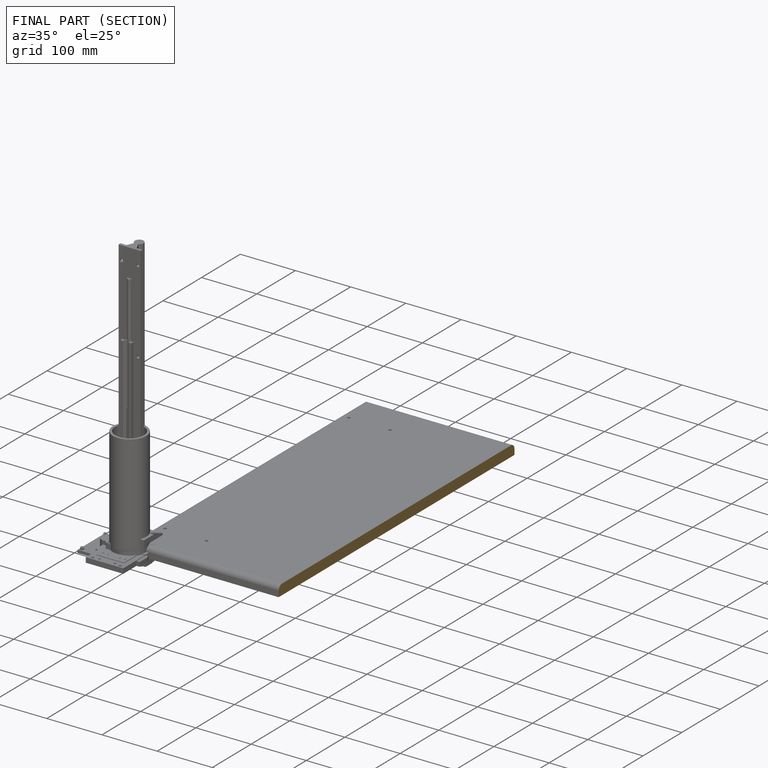
[diagram: finished part — half-section view (interior)]
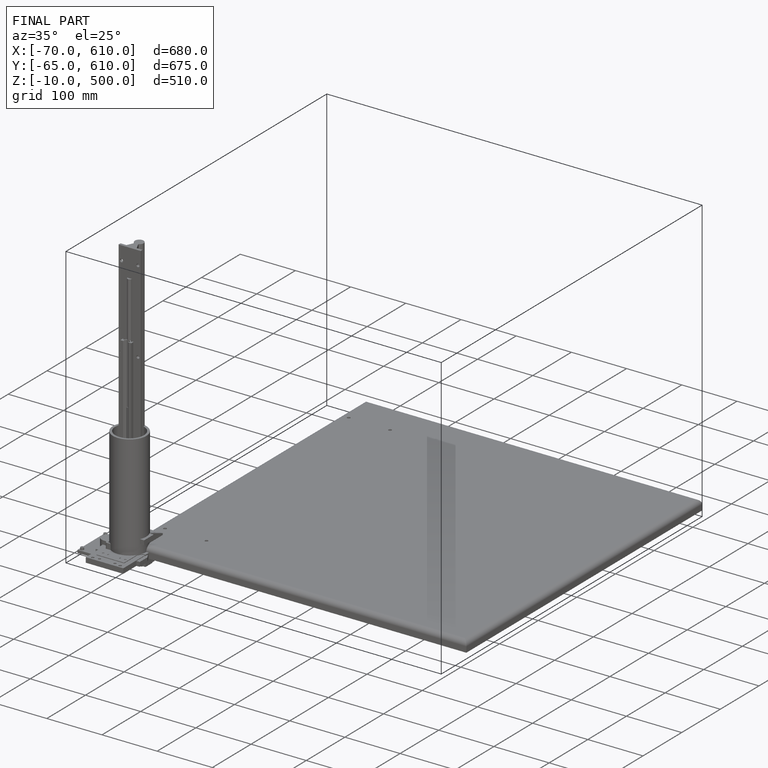
[diagram: finished part — iso view with bounding-box wireframe]
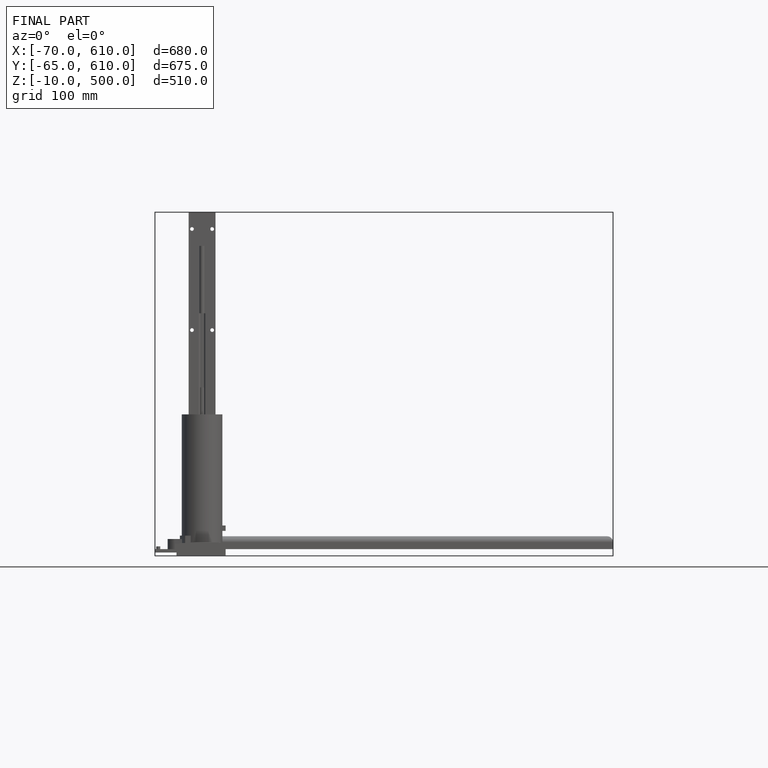
[diagram: finished part — front view with bounding-box wireframe]
